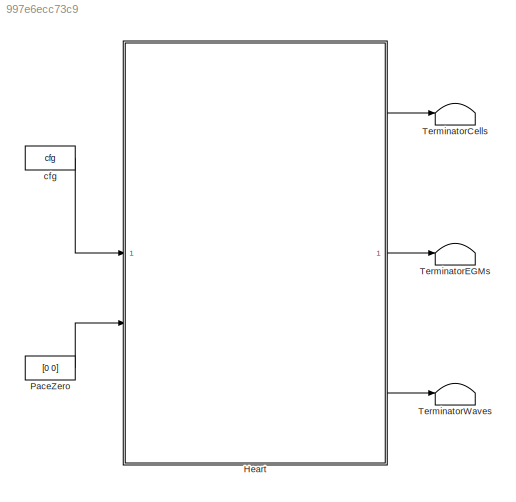
MODEL slx_997e6ecc73c9
KIND model
CONFIG AbsTol = auto
CONFIG EnableMultiTasking = off
CONFIG FixedStep = auto
CONFIG MaxStep = auto
CONFIG MinStep = auto
CONFIG RelTol = 1e-3
CONFIG SampleTimeConstraint = Unconstrained
CONFIG SolverName = VariableStepAuto
CONFIG StartTime = 0.0
CONFIG StopTime = 10.0
WORKSPACE source: mxarray member
WORKSPACE C_1 = 1
WORKSPACE C_10 = 23
WORKSPACE C_11 = 23
WORKSPACE C_12 = 23
WORKSPACE C_13 = 23
WORKSPACE C_14 = 23
WORKSPACE C_15 = 23
WORKSPACE C_16 = 23
WORKSPACE C_17 = 23
WORKSPACE C_18 = 23
WORKSPACE C_19 = 23
WORKSPACE C_2 = 1
WORKSPACE C_20 = 23
WORKSPACE C_21 = 23
WORKSPACE C_22 = 23
WORKSPACE C_23 = 2
WORKSPACE C_24 = 2
WORKSPACE C_25 = 2
WORKSPACE C_26 = 23
WORKSPACE C_27 = 23
WORKSPACE C_28 = 23
WORKSPACE C_29 = 23
WORKSPACE C_3 = 1
WORKSPACE C_30 = 23
WORKSPACE C_31 = 23
WORKSPACE C_32 = 50
WORKSPACE C_33 = 50
WORKSPACE C_34 = 50
WORKSPACE C_35 = 23
WORKSPACE C_36 = 23
WORKSPACE C_37 = 50
WORKSPACE C_38 = 50
WORKSPACE C_39 = 50
WORKSPACE C_4 = 1
WORKSPACE C_40 = 50
WORKSPACE C_41 = 50
WORKSPACE C_42 = 23
WORKSPACE C_43 = 23
WORKSPACE C_44 = 50
WORKSPACE C_45 = 50
WORKSPACE C_46 = 50
WORKSPACE C_47 = 23
WORKSPACE C_48 = 23
WORKSPACE C_49 = 23
WORKSPACE C_5 = 23
WORKSPACE C_50 = 23
WORKSPACE C_51 = 50
WORKSPACE C_52 = 50
WORKSPACE C_53 = 50
WORKSPACE C_54 = 50
WORKSPACE C_6 = 23
WORKSPACE C_7 = 23
WORKSPACE C_8 = 23
WORKSPACE C_9 = 23
WORKSPACE cfg: object (value not decoded)
WORKSPACE l_1 = 4.01400326634
WORKSPACE l_10 = 14.0362958077
WORKSPACE l_11 = 18.1950322891
WORKSPACE l_12 = 33.9599764429
WORKSPACE l_13 = 10
WORKSPACE l_14 = 8.0399004969
WORKSPACE l_15 = 12.0066648158
WORKSPACE l_16 = 7.69415362467
WORKSPACE l_17 = 5.21536192416
WORKSPACE l_18 = 5.65685424949
WORKSPACE l_19 = 13.8852439662
WORKSPACE l_2 = 3.2
WORKSPACE l_20 = 47.0387074652
WORKSPACE l_21 = 27.273430294
WORKSPACE l_22 = 13.8621787609
WORKSPACE l_23 = 18.6761880479
WORKSPACE l_24 = 12.8249756335
WORKSPACE l_25 = 15.879546593
WORKSPACE l_26 = 28.9689488936
WORKSPACE l_27 = 29.8073816361
WORKSPACE l_28 = 34.0352758179
WORKSPACE l_29 = 7.37563556583
WORKSPACE l_3 = 3.50907395191
WORKSPACE l_30 = 3.68781778292
WORKSPACE l_31 = 46.1042297409
WORKSPACE l_32 = 30.615028989
WORKSPACE l_33 = 7.51531769122
WORKSPACE l_34 = 7.47261667691
WORKSPACE l_35 = 3.73630833845
WORKSPACE l_36 = 36.7151195014
WORKSPACE l_37 = 16.1058995402
WORKSPACE l_38 = 48.7360236376
WORKSPACE l_39 = 48.8364617883
WORKSPACE l_4 = 4.54875807227
WORKSPACE l_40 = 41.4154560521
WORKSPACE l_41 = 37.7878287283
WORKSPACE l_42 = 44.689148571
WORKSPACE l_43 = 22.9120055866
WORKSPACE l_44 = 23.4401365184
WORKSPACE l_45 = 42.4264068712
WORKSPACE l_46 = 5
WORKSPACE l_47 = 8
WORKSPACE l_48 = 31.4273766007
WORKSPACE l_49 = 41.5788407727
WORKSPACE l_5 = 1.6986923075
WORKSPACE l_50 = 31.5569326773
WORKSPACE l_51 = 3
WORKSPACE l_52 = 3
WORKSPACE l_53 = 51.8478543433
WORKSPACE l_54 = 31.5569326773
WORKSPACE l_6 = 44.1540359298
WORKSPACE l_7 = 2.68208873828
WORKSPACE l_8 = 12.8
WORKSPACE l_9 = 4.53184289225
WORKSPACE xi_1 = 54.2
WORKSPACE xi_10 = 56.6
WORKSPACE xi_11 = 66.2
WORKSPACE xi_12 = 60.2
WORKSPACE xi_13 = 66.2
WORKSPACE xi_14 = 67
WORKSPACE xi_15 = 67.4
WORKSPACE xi_16 = 57.4
WORKSPACE xi_17 = 70.2
WORKSPACE xi_18 = 79.4
WORKSPACE xi_19 = 57.8666666667
WORKSPACE xi_2 = 54.2
WORKSPACE xi_20 = 98.2
WORKSPACE xi_21 = 125.4
WORKSPACE xi_22 = 60.6
WORKSPACE xi_23 = 68.2
WORKSPACE xi_24 = 81.8
WORKSPACE xi_25 = 94.6
WORKSPACE xi_26 = 105
WORKSPACE xi_27 = 121.8
WORKSPACE xi_28 = 153
WORKSPACE xi_29 = 105
WORKSPACE xi_3 = 54.2
WORKSPACE xi_30 = 127.8
WORKSPACE xi_31 = 157
WORKSPACE xi_32 = 157.8
WORKSPACE xi_33 = 164.2
WORKSPACE xi_34 = 160.2
WORKSPACE xi_35 = 157.8
WORKSPACE xi_36 = 112.2
WORKSPACE xi_37 = 160.2
WORKSPACE xi_38 = 114.6
WORKSPACE xi_39 = 167.8
WORKSPACE xi_4 = 54.2
WORKSPACE xi_40 = 131
WORKSPACE xi_41 = 101.8
WORKSPACE xi_42 = 164.2
WORKSPACE xi_43 = 159.4
WORKSPACE xi_44 = 127.8
WORKSPACE xi_45 = 83
WORKSPACE xi_46 = 114.6
WORKSPACE xi_47 = 112.2
WORKSPACE xi_48 = 75
WORKSPACE xi_49 = 159.4
WORKSPACE xi_5 = 57.8666666667
WORKSPACE xi_50 = 143.4
WORKSPACE xi_51 = 167.8
WORKSPACE xi_52 = 162.4
WORKSPACE xi_53 = 160.2
WORKSPACE xi_54 = 112.2
WORKSPACE xi_6 = 57.4
WORKSPACE xi_7 = 56.6
WORKSPACE xi_8 = 52.36
WORKSPACE xi_9 = 45
WORKSPACE xj_1 = 57.8666666667
WORKSPACE xj_10 = 66.2
WORKSPACE xj_11 = 60.2
WORKSPACE xj_12 = 60.6
WORKSPACE xj_13 = 67
WORKSPACE xj_14 = 67.4
WORKSPACE xj_15 = 68.2
WORKSPACE xj_16 = 70.2
WORKSPACE xj_17 = 79.4
WORKSPACE xj_18 = 118.6
WORKSPACE xj_19 = 98.2
WORKSPACE xj_2 = 57.4
WORKSPACE xj_20 = 125.4
WORKSPACE xj_21 = 135.4
WORKSPACE xj_22 = 68.2
WORKSPACE xj_23 = 81.8
WORKSPACE xj_24 = 94.6
WORKSPACE xj_25 = 105
WORKSPACE xj_26 = 121.8
WORKSPACE xj_27 = 153
WORKSPACE xj_28 = 157.8
WORKSPACE xj_29 = 127.8
WORKSPACE xj_3 = 56.6
WORKSPACE xj_30 = 157
WORKSPACE xj_31 = 164.2
WORKSPACE xj_32 = 160.2
WORKSPACE xj_33 = 167.8
WORKSPACE xj_34 = 167.8
WORKSPACE xj_35 = 112.2
WORKSPACE xj_36 = 75
WORKSPACE xj_37 = 114.6
WORKSPACE xj_38 = 83
WORKSPACE xj_39 = 131
WORKSPACE xj_4 = 52.36
WORKSPACE xj_40 = 101.8
WORKSPACE xj_41 = 125
WORKSPACE xj_42 = 159.4
WORKSPACE xj_43 = 143.4
WORKSPACE xj_44 = 131
WORKSPACE xj_45 = 101.8
WORKSPACE xj_46 = 131
WORKSPACE xj_47 = 112.2
WORKSPACE xj_48 = 67
WORKSPACE xj_49 = 162.4
WORKSPACE xj_5 = 57.4
WORKSPACE xj_50 = 146.4
WORKSPACE xj_51 = 162.4
WORKSPACE xj_52 = 146.4
WORKSPACE xj_53 = 112.2
WORKSPACE xj_54 = 67
WORKSPACE xj_6 = 56.6
WORKSPACE xj_7 = 52.36
WORKSPACE xj_8 = 45
WORKSPACE xj_9 = 53.8
WORKSPACE yi_1 = 118.2
WORKSPACE yi_10 = 115.64
WORKSPACE yi_11 = 105.4
WORKSPACE yi_12 = 97.4
WORKSPACE yi_13 = 105.4
WORKSPACE yi_14 = 97.4
WORKSPACE yi_15 = 92.2
WORKSPACE yi_16 = 118.2
WORKSPACE yi_17 = 118.2
WORKSPACE yi_18 = 107.8
WORKSPACE yi_19 = 119.833333333
WORKSPACE yi_2 = 118.2
WORKSPACE yi_20 = 137.8
WORKSPACE yi_21 = 139.8
WORKSPACE yi_22 = 85.4
WORKSPACE yi_23 = 86.6
WORKSPACE yi_24 = 99.4
WORKSPACE yi_25 = 100.2
WORKSPACE yi_26 = 88.2
WORKSPACE yi_27 = 64.6
WORKSPACE yi_28 = 51
WORKSPACE yi_29 = 88.2
WORKSPACE yi_3 = 118.2
WORKSPACE yi_30 = 69
WORKSPACE yi_31 = 59.8
WORKSPACE yi_32 = 45.4
WORKSPACE yi_33 = 57.8
WORKSPACE yi_34 = 42.6
WORKSPACE yi_35 = 45.4
WORKSPACE yi_36 = 38.6
WORKSPACE yi_37 = 42.6
WORKSPACE yi_38 = 59.8
WORKSPACE yi_39 = 56.8
WORKSPACE yi_4 = 118.2
WORKSPACE yi_40 = 75.8
WORKSPACE yi_41 = 105.4
WORKSPACE yi_42 = 57.8
WORKSPACE yi_43 = 94.2
WORKSPACE yi_44 = 69
WORKSPACE yi_45 = 91.4
WORKSPACE yi_46 = 59.8
WORKSPACE yi_47 = 38.6
WORKSPACE yi_48 = 59
WORKSPACE yi_49 = 94.2
WORKSPACE yi_5 = 119.833333333
WORKSPACE yi_50 = 121.4
WORKSPACE yi_51 = 56.8
WORKSPACE yi_52 = 94.2
WORKSPACE yi_53 = 42.6
WORKSPACE yi_54 = 33.6
WORKSPACE yi_6 = 118.2
WORKSPACE yi_7 = 115.64
WORKSPACE yi_8 = 114.04
WORKSPACE yi_9 = 97.4
WORKSPACE yj_1 = 119.833333333
WORKSPACE yj_10 = 105.4
WORKSPACE yj_11 = 97.4
WORKSPACE yj_12 = 85.4
WORKSPACE yj_13 = 97.4
WORKSPACE yj_14 = 92.2
WORKSPACE yj_15 = 86.6
WORKSPACE yj_16 = 118.2
WORKSPACE yj_17 = 107.8
WORKSPACE yj_18 = 133.8
WORKSPACE yj_19 = 137.8
WORKSPACE yj_2 = 118.2
WORKSPACE yj_20 = 139.8
WORKSPACE yj_21 = 130.2
WORKSPACE yj_22 = 86.6
WORKSPACE yj_23 = 99.4
WORKSPACE yj_24 = 100.2
WORKSPACE yj_25 = 88.2
WORKSPACE yj_26 = 64.6
WORKSPACE yj_27 = 51
WORKSPACE yj_28 = 45.4
WORKSPACE yj_29 = 69
WORKSPACE yj_3 = 115.64
WORKSPACE yj_30 = 59.8
WORKSPACE yj_31 = 57.8
WORKSPACE yj_32 = 42.6
WORKSPACE yj_33 = 56.8
WORKSPACE yj_34 = 56.8
WORKSPACE yj_35 = 38.6
WORKSPACE ... (+133 more variables)
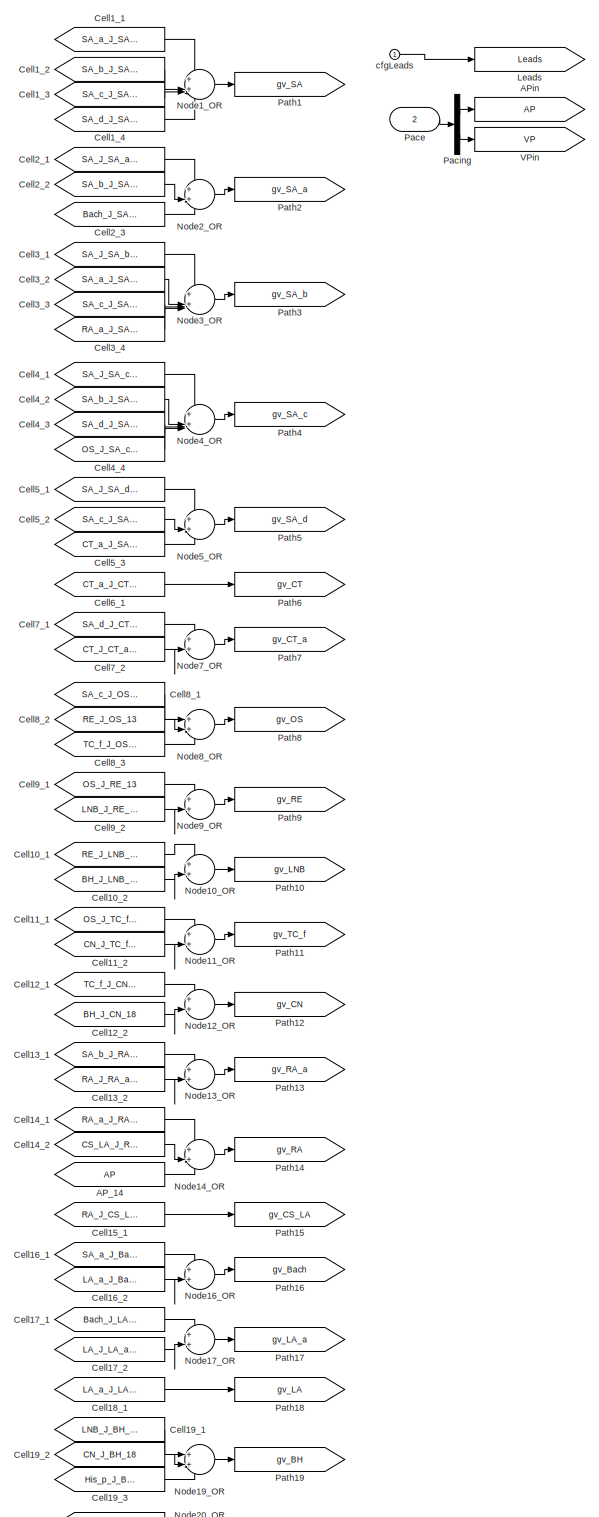
[diagram: Heart - part 1/15, top right region]
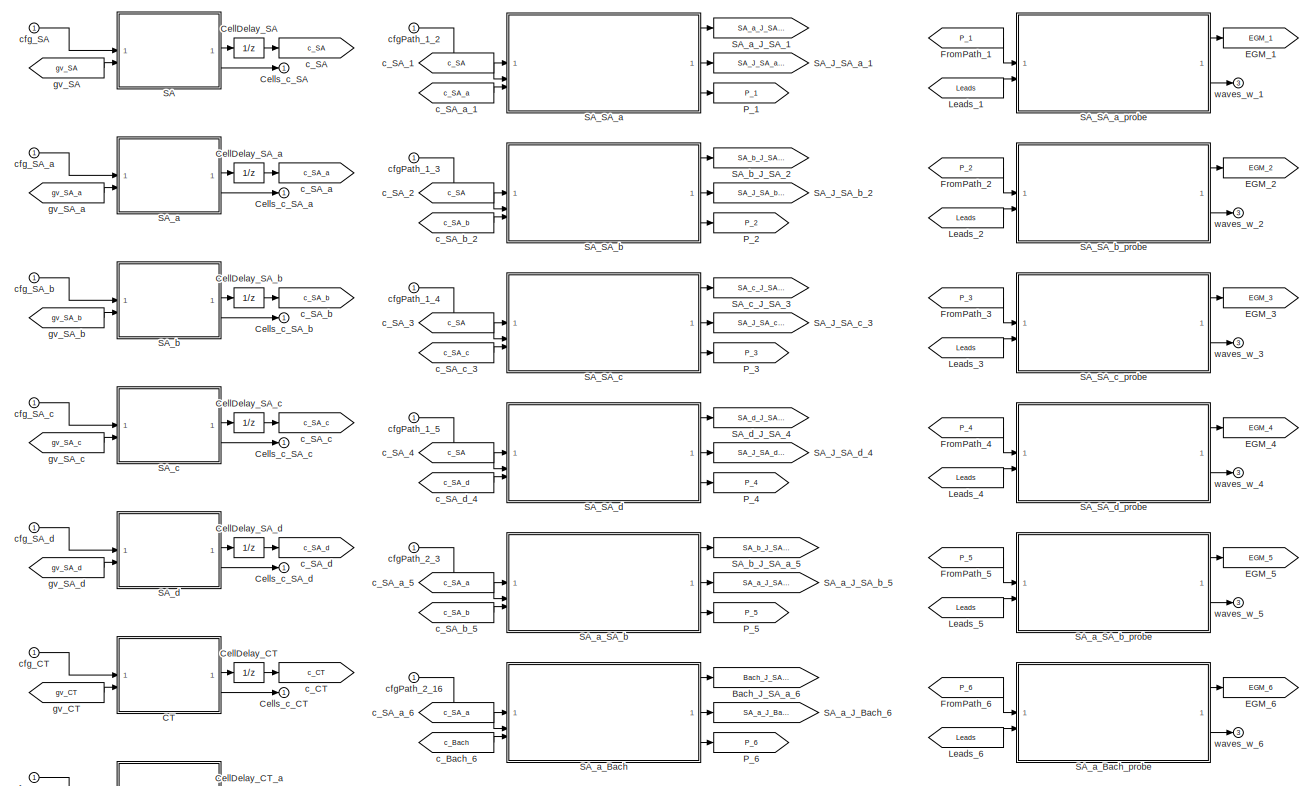
[diagram: Heart - part 2/15, top left region]
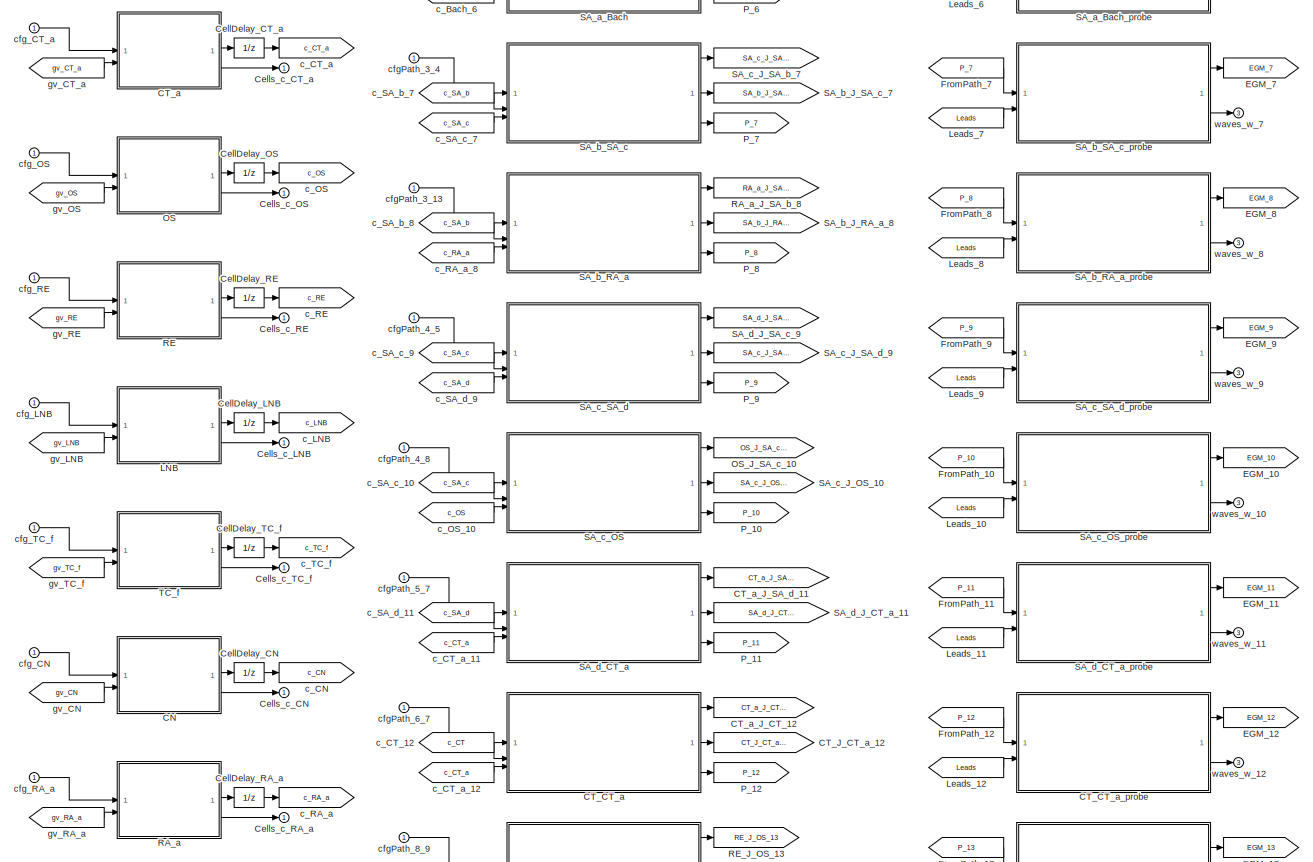
[diagram: Heart - part 3/15, top left region]
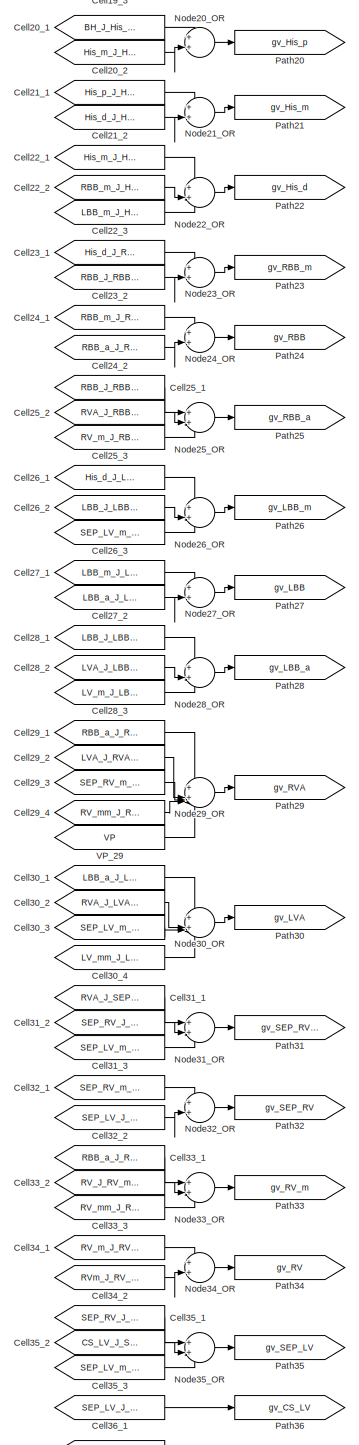
[diagram: Heart - part 4/15, top right region]
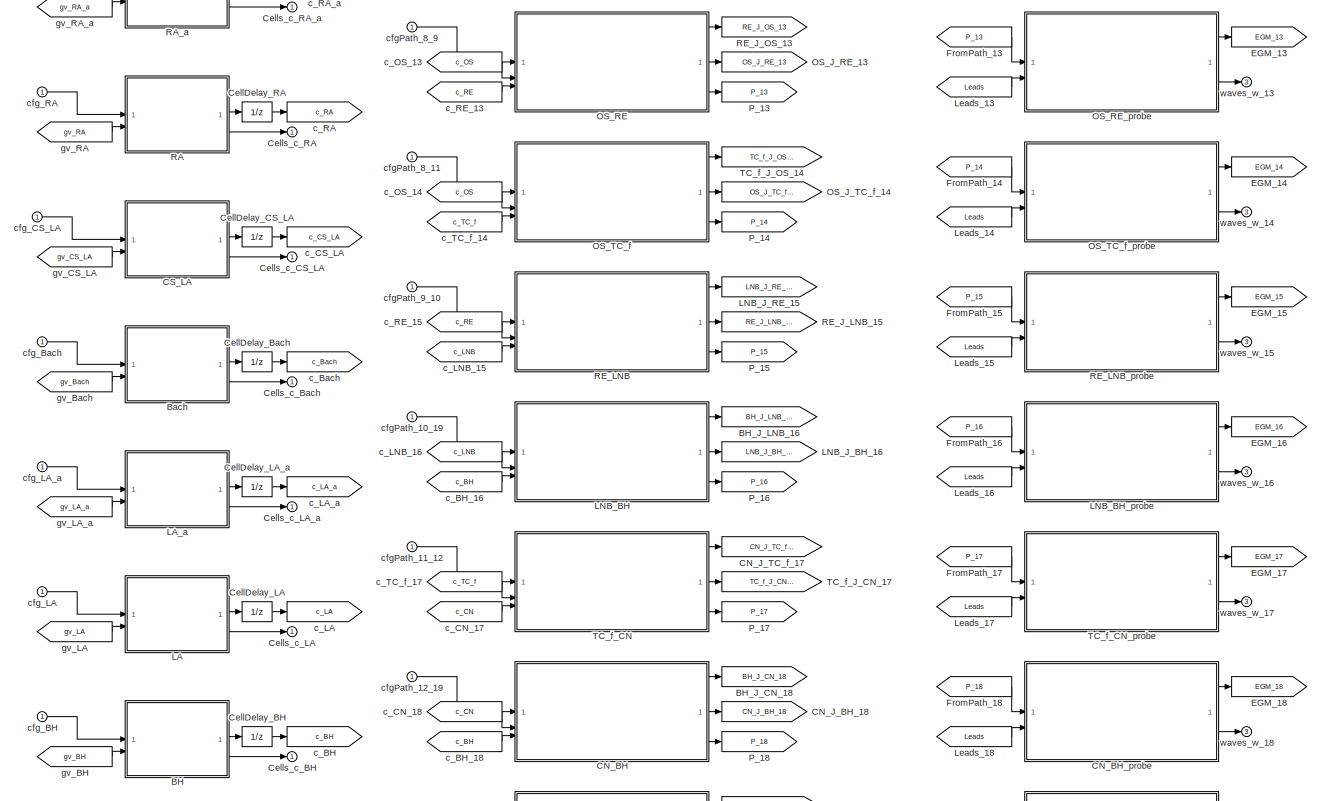
[diagram: Heart - part 5/15, top left region]
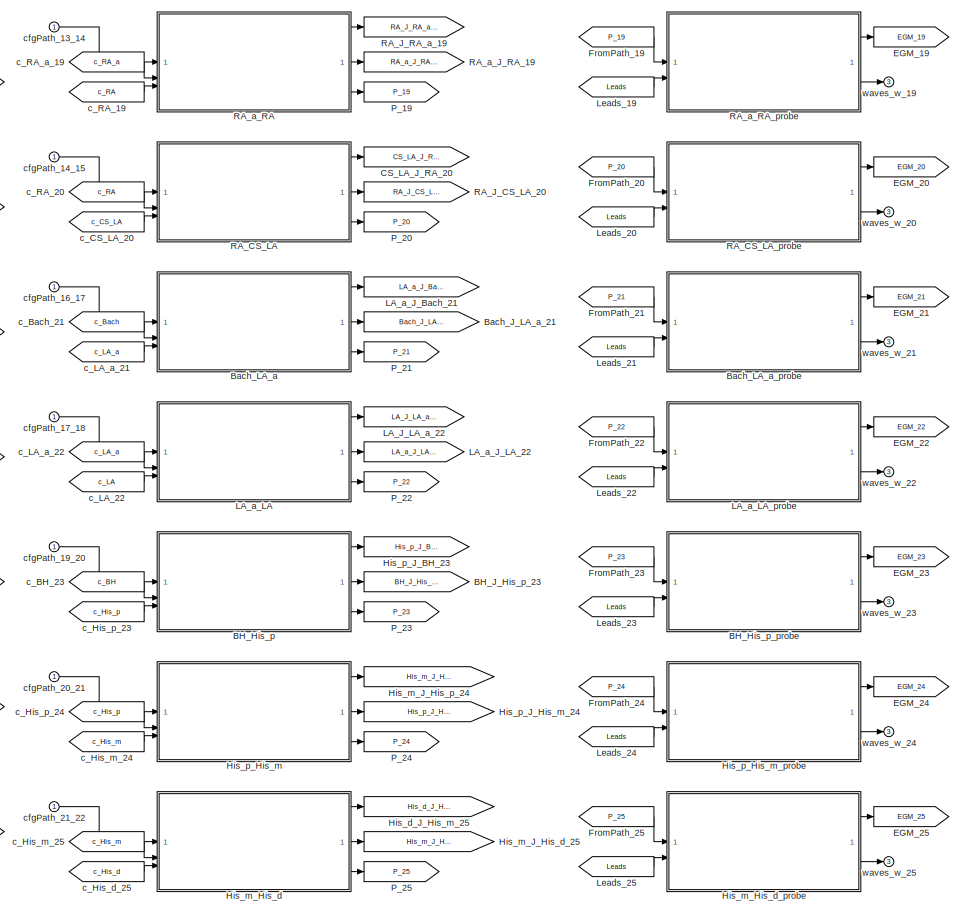
[diagram: Heart - part 6/15, central region]
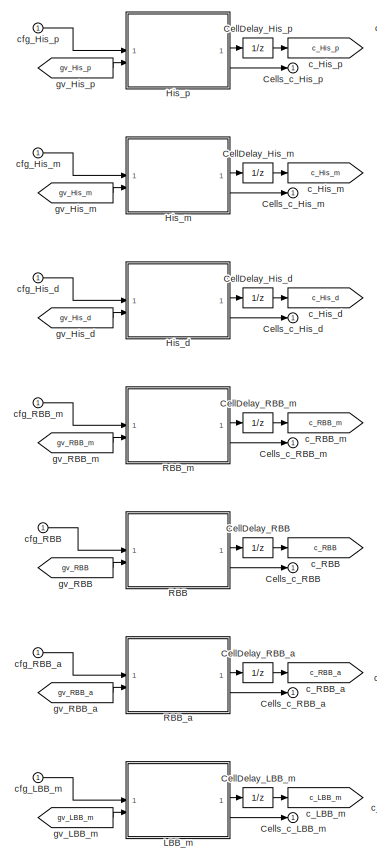
[diagram: Heart - part 7/15, middle left region]
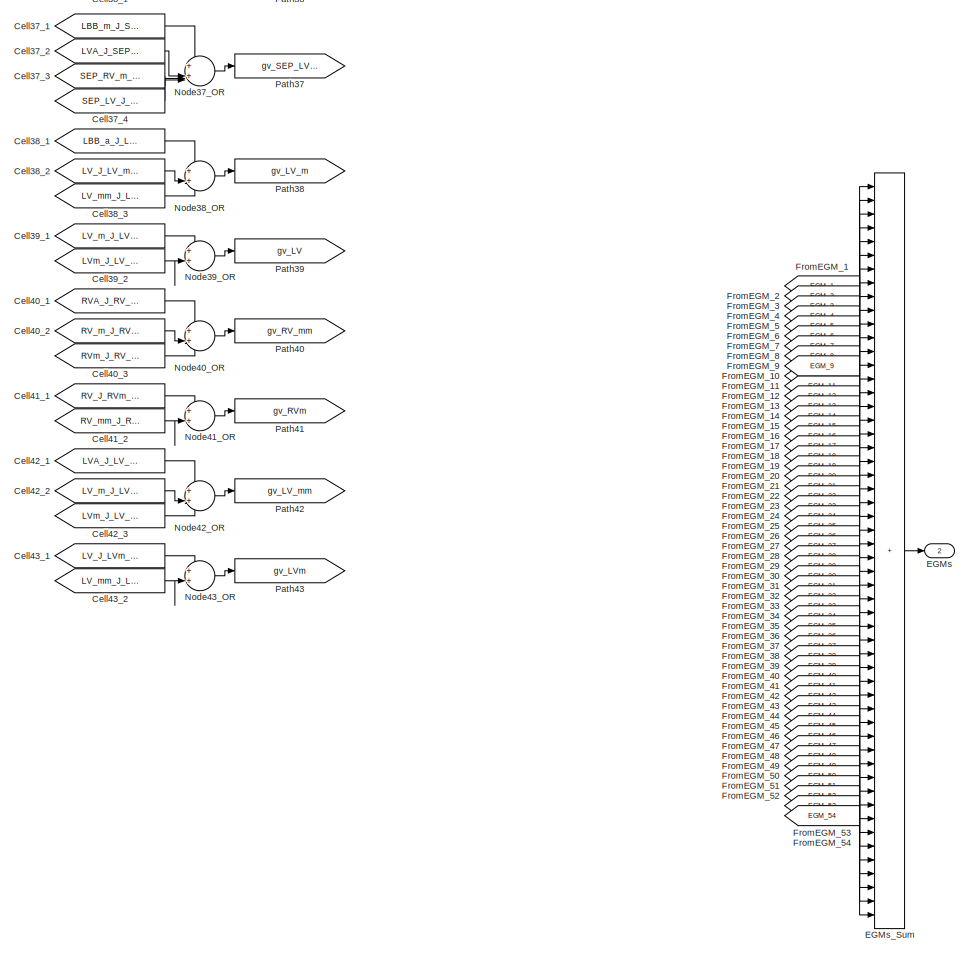
[diagram: Heart - part 8/15, middle right region]
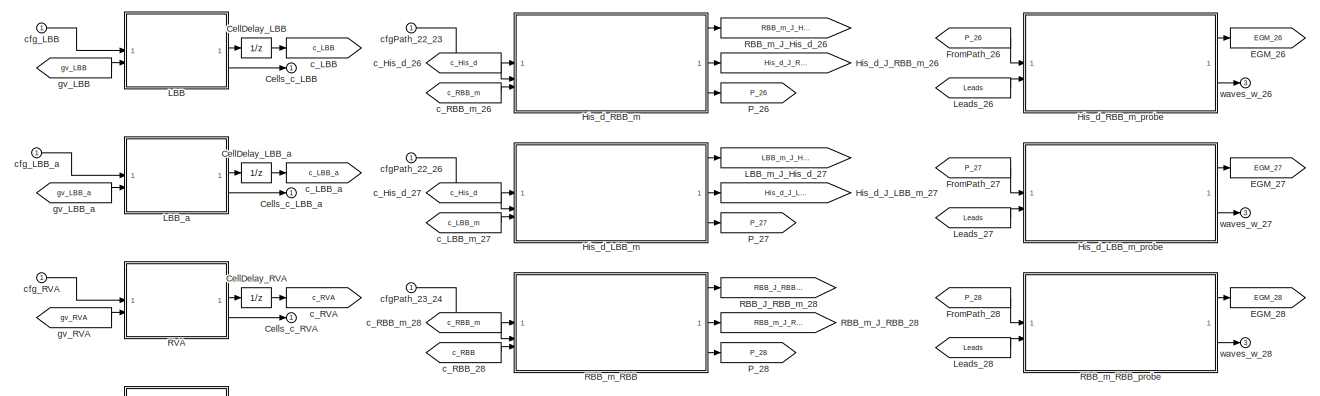
[diagram: Heart - part 9/15, middle left region]
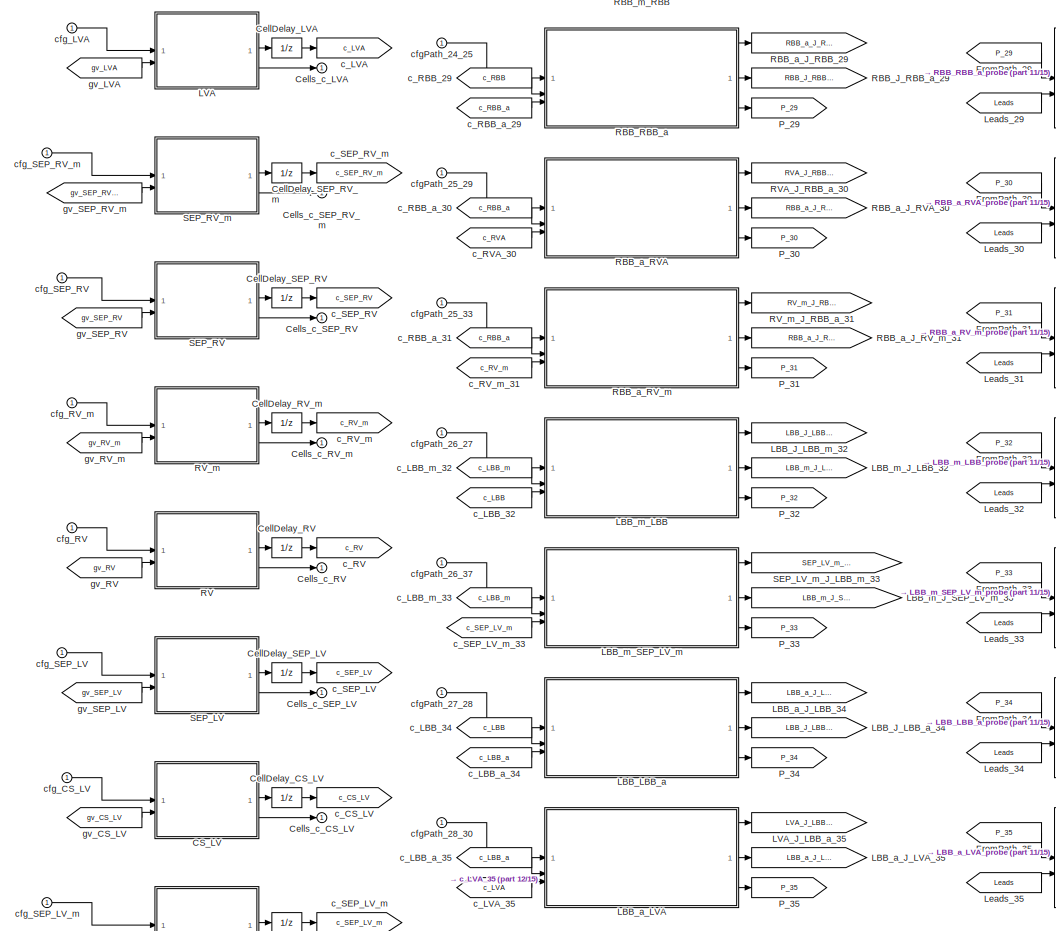
[diagram: Heart - part 10/15, middle left region]
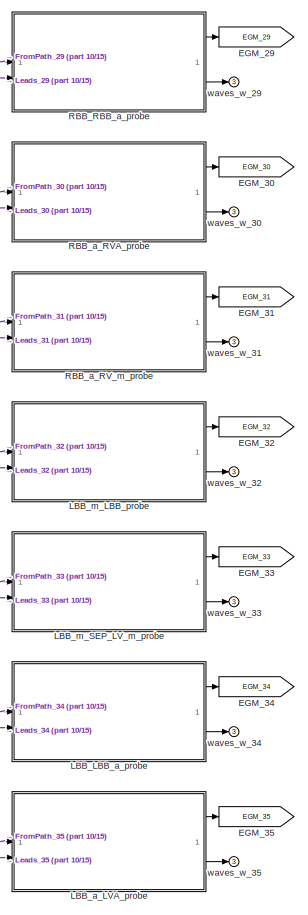
[diagram: Heart - part 11/15, central region]
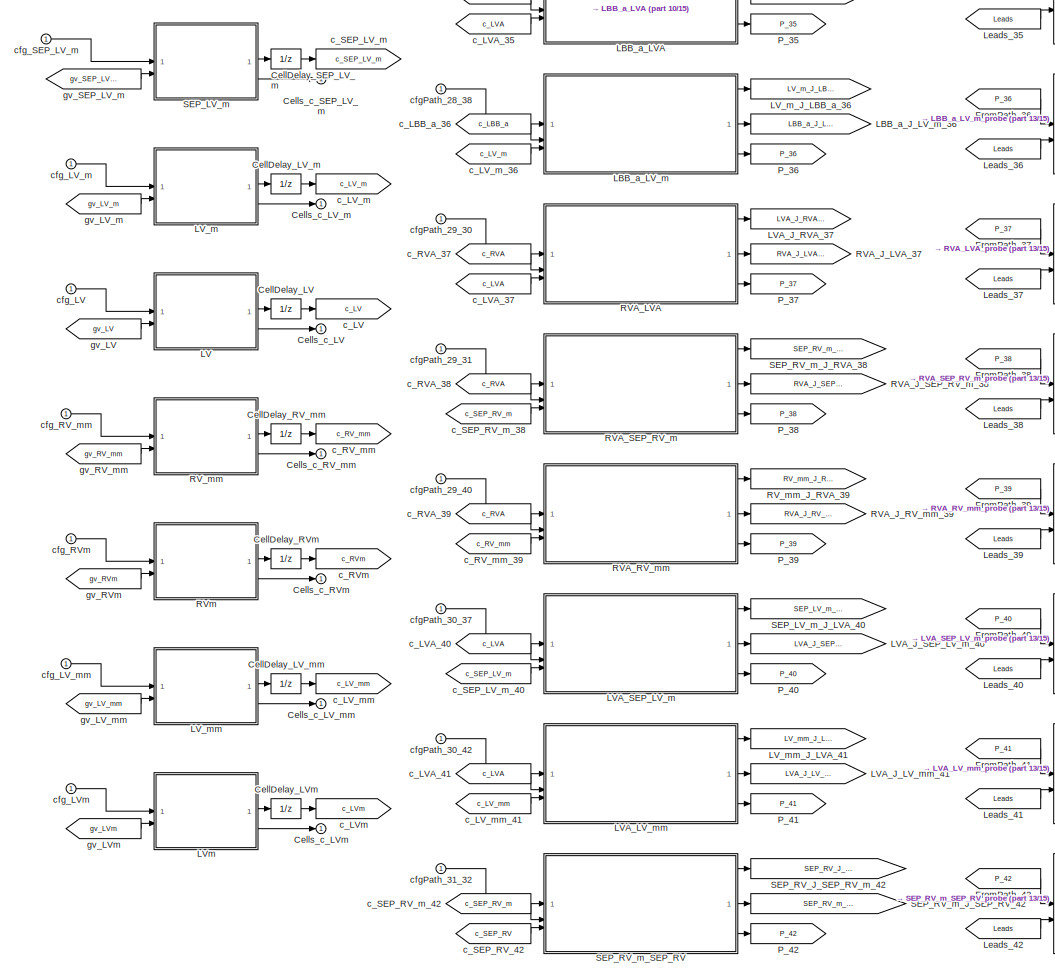
[diagram: Heart - part 12/15, bottom left region]
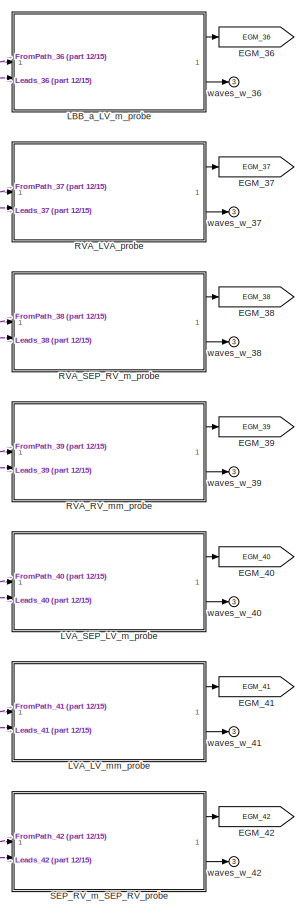
[diagram: Heart - part 13/15, bottom center region]
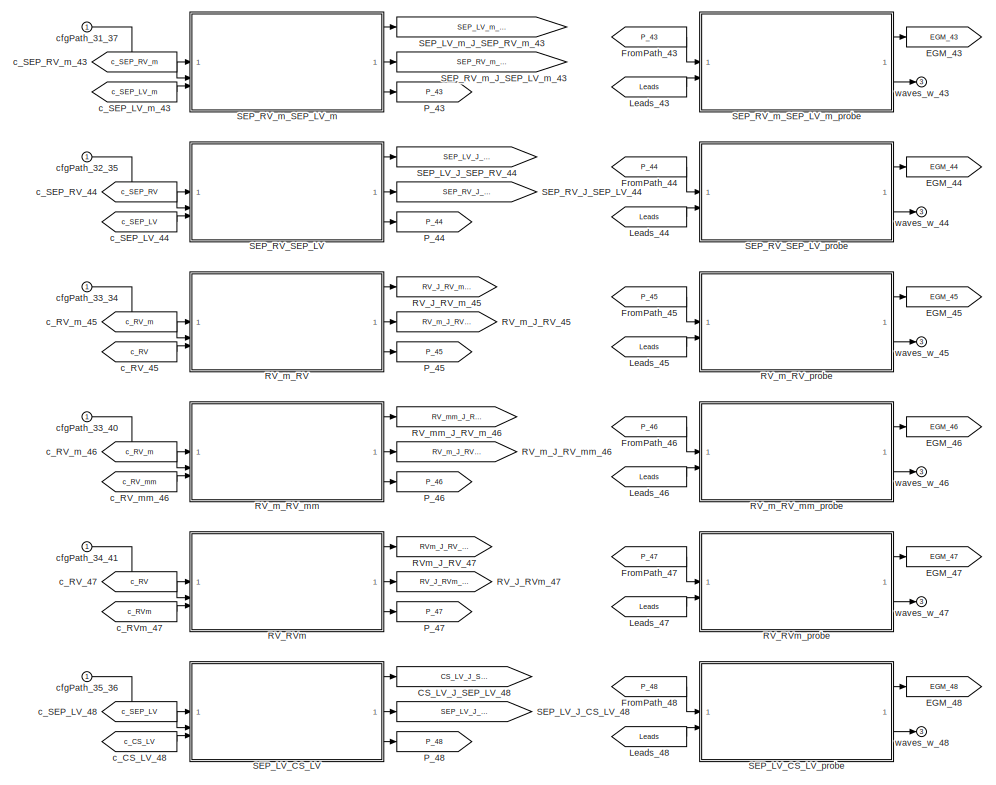
[diagram: Heart - part 14/15, bottom center region]
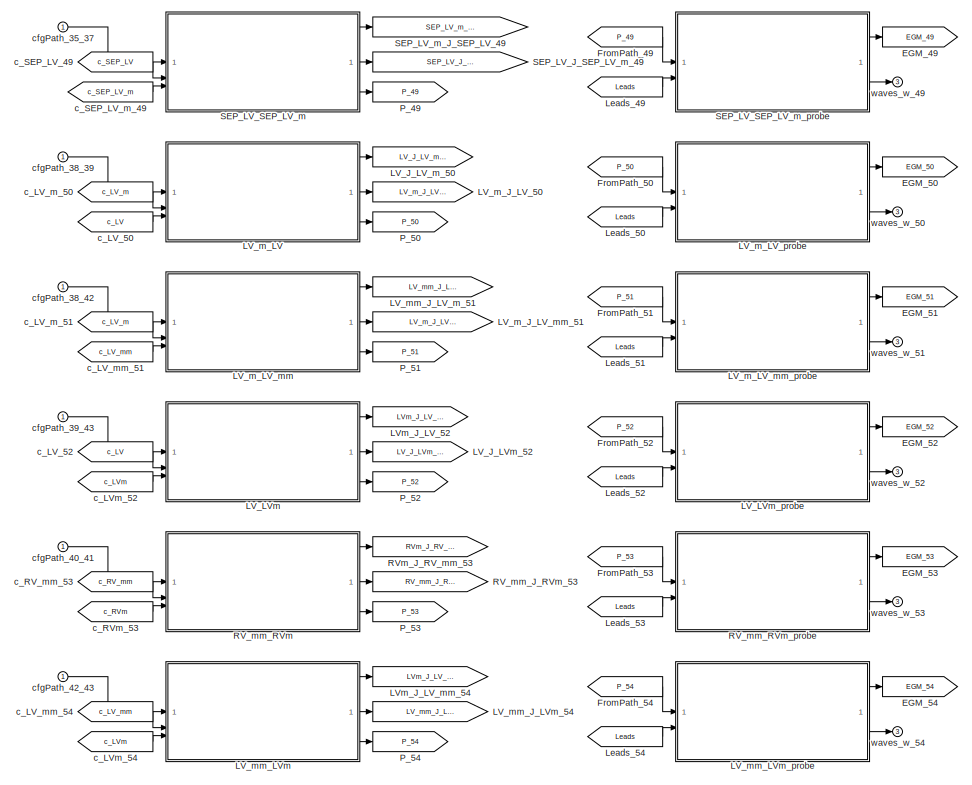
[diagram: Heart - part 15/15, bottom center region]
BLOCK [SubSystem] Heart
BLOCK [From] Heart/AP_14
  GotoTag = AP
BLOCK [Goto] Heart/APin
  GotoTag = AP
BLOCK [ModelReference] Heart/BH
  ModelNameDialog = Node_NM
  ModelReferenceVersion = 1.78
BLOCK [ModelReference] Heart/BH_His_p
  ModelNameDialog = Path_model
  ModelReferenceVersion = 1.87
  ParameterArgumentNames = l
  ParameterArgumentValues = l_23
  UserDataPersistent = on
  UsingDefaultArgumentValue = 0
BLOCK [ModelReference] Heart/BH_His_p_probe
  ModelNameDialog = Electrode
  ModelReferenceVersion = 1.81
  UserDataPersistent = on
  UsingDefaultArgumentValue = 0,0,0,0,0,0,0
BLOCK [Goto] Heart/BH_J_CN_18
  GotoTag = BH_J_CN_18
BLOCK [Goto] Heart/BH_J_His_p_23
  GotoTag = BH_J_His_p_23
BLOCK [Goto] Heart/BH_J_LNB_16
  GotoTag = BH_J_LNB_16
BLOCK [ModelReference] Heart/Bach
  ModelNameDialog = Node_M
  ModelReferenceVersion = 1.88
BLOCK [Goto] Heart/Bach_J_LA_a_21
  GotoTag = Bach_J_LA_a_21
BLOCK [Goto] Heart/Bach_J_SA_a_6
  GotoTag = Bach_J_SA_a_6
BLOCK [ModelReference] Heart/Bach_LA_a
  ModelNameDialog = Path_model
  ModelReferenceVersion = 1.87
  ParameterArgumentNames = l
  ParameterArgumentValues = l_21
  UserDataPersistent = on
  UsingDefaultArgumentValue = 0
BLOCK [ModelReference] Heart/Bach_LA_a_probe
  ModelNameDialog = Electrode
  ModelReferenceVersion = 1.81
  UserDataPersistent = on
  UsingDefaultArgumentValue = 0,0,0,0,0,0,0
BLOCK [ModelReference] Heart/CN
  ModelNameDialog = Node_N
  ModelReferenceVersion = 1.106
BLOCK [ModelReference] Heart/CN_BH
  ModelNameDialog = Path_model
  ModelReferenceVersion = 1.87
  ParameterArgumentNames = l
  ParameterArgumentValues = l_18
  UserDataPersistent = on
  UsingDefaultArgumentValue = 0
BLOCK [ModelReference] Heart/CN_BH_probe
  ModelNameDialog = Electrode
  ModelReferenceVersion = 1.81
  UserDataPersistent = on
  UsingDefaultArgumentValue = 0,0,0,0,0,0,0
BLOCK [Goto] Heart/CN_J_BH_18
  GotoTag = CN_J_BH_18
BLOCK [Goto] Heart/CN_J_TC_f_17
  GotoTag = CN_J_TC_f_17
BLOCK [ModelReference] Heart/CS_LA
  ModelNameDialog = Node_NM
  ModelReferenceVersion = 1.78
BLOCK [Goto] Heart/CS_LA_J_RA_20
  GotoTag = CS_LA_J_RA_20
BLOCK [ModelReference] Heart/CS_LV
  ModelNameDialog = Node_M
  ModelReferenceVersion = 1.88
BLOCK [Goto] Heart/CS_LV_J_SEP_LV_48
  GotoTag = CS_LV_J_SEP_LV_48
BLOCK [ModelReference] Heart/CT
  ModelNameDialog = Node_M
  ModelReferenceVersion = 1.88
BLOCK [ModelReference] Heart/CT_CT_a
  ModelNameDialog = Path_model
  ModelReferenceVersion = 1.87
  ParameterArgumentNames = l
  ParameterArgumentValues = l_12
  UserDataPersistent = on
  UsingDefaultArgumentValue = 0
BLOCK [ModelReference] Heart/CT_CT_a_probe
  ModelNameDialog = Electrode
  ModelReferenceVersion = 1.81
  UserDataPersistent = on
  UsingDefaultArgumentValue = 0,0,0,0,0,0,0
BLOCK [Goto] Heart/CT_J_CT_a_12
  GotoTag = CT_J_CT_a_12
BLOCK [ModelReference] Heart/CT_a
  ModelNameDialog = Node_NM
  ModelReferenceVersion = 1.78
BLOCK [Goto] Heart/CT_a_J_CT_12
  GotoTag = CT_a_J_CT_12
BLOCK [Goto] Heart/CT_a_J_SA_d_11
  GotoTag = CT_a_J_SA_d_11
BLOCK [From] Heart/Cell10_1
  GotoTag = RE_J_LNB_15
BLOCK [From] Heart/Cell10_2
  GotoTag = BH_J_LNB_16
BLOCK [From] Heart/Cell11_1
  GotoTag = OS_J_TC_f_14
BLOCK [From] Heart/Cell11_2
  GotoTag = CN_J_TC_f_17
BLOCK [From] Heart/Cell12_1
  GotoTag = TC_f_J_CN_17
BLOCK [From] Heart/Cell12_2
  GotoTag = BH_J_CN_18
BLOCK [From] Heart/Cell13_1
  GotoTag = SA_b_J_RA_a_8
BLOCK [From] Heart/Cell13_2
  GotoTag = RA_J_RA_a_19
BLOCK [From] Heart/Cell14_1
  GotoTag = RA_a_J_RA_19
BLOCK [From] Heart/Cell14_2
  GotoTag = CS_LA_J_RA_20
BLOCK [From] Heart/Cell15_1
  GotoTag = RA_J_CS_LA_20
BLOCK [From] Heart/Cell16_1
  GotoTag = SA_a_J_Bach_6
BLOCK [From] Heart/Cell16_2
  GotoTag = LA_a_J_Bach_21
BLOCK [From] Heart/Cell17_1
  GotoTag = Bach_J_LA_a_21
BLOCK [From] Heart/Cell17_2
  GotoTag = LA_J_LA_a_22
BLOCK [From] Heart/Cell18_1
  GotoTag = LA_a_J_LA_22
BLOCK [From] Heart/Cell19_1
  GotoTag = LNB_J_BH_16
BLOCK [From] Heart/Cell19_2
  GotoTag = CN_J_BH_18
BLOCK [From] Heart/Cell19_3
  GotoTag = His_p_J_BH_23
BLOCK [From] Heart/Cell1_1
  GotoTag = SA_a_J_SA_1
BLOCK [From] Heart/Cell1_2
  GotoTag = SA_b_J_SA_2
BLOCK [From] Heart/Cell1_3
  GotoTag = SA_c_J_SA_3
BLOCK [From] Heart/Cell1_4
  GotoTag = SA_d_J_SA_4
BLOCK [From] Heart/Cell20_1
  GotoTag = BH_J_His_p_23
BLOCK [From] Heart/Cell20_2
  GotoTag = His_m_J_His_p_24
BLOCK [From] Heart/Cell21_1
  GotoTag = His_p_J_His_m_24
BLOCK [From] Heart/Cell21_2
  GotoTag = His_d_J_His_m_25
BLOCK [From] Heart/Cell22_1
  GotoTag = His_m_J_His_d_25
BLOCK [From] Heart/Cell22_2
  GotoTag = RBB_m_J_His_d_26
BLOCK [From] Heart/Cell22_3
  GotoTag = LBB_m_J_His_d_27
BLOCK [From] Heart/Cell23_1
  GotoTag = His_d_J_RBB_m_26
BLOCK [From] Heart/Cell23_2
  GotoTag = RBB_J_RBB_m_28
BLOCK [From] Heart/Cell24_1
  GotoTag = RBB_m_J_RBB_28
BLOCK [From] Heart/Cell24_2
  GotoTag = RBB_a_J_RBB_29
BLOCK [From] Heart/Cell25_1
  GotoTag = RBB_J_RBB_a_29
BLOCK [From] Heart/Cell25_2
  GotoTag = RVA_J_RBB_a_30
BLOCK [From] Heart/Cell25_3
  GotoTag = RV_m_J_RBB_a_31
BLOCK [From] Heart/Cell26_1
  GotoTag = His_d_J_LBB_m_27
BLOCK [From] Heart/Cell26_2
  GotoTag = LBB_J_LBB_m_32
BLOCK [From] Heart/Cell26_3
  GotoTag = SEP_LV_m_J_LBB_m_33
BLOCK [From] Heart/Cell27_1
  GotoTag = LBB_m_J_LBB_32
BLOCK [From] Heart/Cell27_2
  GotoTag = LBB_a_J_LBB_34
BLOCK [From] Heart/Cell28_1
  GotoTag = LBB_J_LBB_a_34
BLOCK [From] Heart/Cell28_2
  GotoTag = LVA_J_LBB_a_35
BLOCK [From] Heart/Cell28_3
  GotoTag = LV_m_J_LBB_a_36
BLOCK [From] Heart/Cell29_1
  GotoTag = RBB_a_J_RVA_30
BLOCK [From] Heart/Cell29_2
  GotoTag = LVA_J_RVA_37
BLOCK [From] Heart/Cell29_3
  GotoTag = SEP_RV_m_J_RVA_38
BLOCK [From] Heart/Cell29_4
  GotoTag = RV_mm_J_RVA_39
BLOCK [From] Heart/Cell2_1
  GotoTag = SA_J_SA_a_1
BLOCK [From] Heart/Cell2_2
  GotoTag = SA_b_J_SA_a_5
BLOCK [From] Heart/Cell2_3
  GotoTag = Bach_J_SA_a_6
BLOCK [From] Heart/Cell30_1
  GotoTag = LBB_a_J_LVA_35
BLOCK [From] Heart/Cell30_2
  GotoTag = RVA_J_LVA_37
BLOCK [From] Heart/Cell30_3
  GotoTag = SEP_LV_m_J_LVA_40
BLOCK [From] Heart/Cell30_4
  GotoTag = LV_mm_J_LVA_41
BLOCK [From] Heart/Cell31_1
  GotoTag = RVA_J_SEP_RV_m_38
BLOCK [From] Heart/Cell31_2
  GotoTag = SEP_RV_J_SEP_RV_m_42
BLOCK [From] Heart/Cell31_3
  GotoTag = SEP_LV_m_J_SEP_RV_m_43
BLOCK [From] Heart/Cell32_1
  GotoTag = SEP_RV_m_J_SEP_RV_42
BLOCK [From] Heart/Cell32_2
  GotoTag = SEP_LV_J_SEP_RV_44
BLOCK [From] Heart/Cell33_1
  GotoTag = RBB_a_J_RV_m_31
BLOCK [From] Heart/Cell33_2
  GotoTag = RV_J_RV_m_45
BLOCK [From] Heart/Cell33_3
  GotoTag = RV_mm_J_RV_m_46
BLOCK [From] Heart/Cell34_1
  GotoTag = RV_m_J_RV_45
BLOCK [From] Heart/Cell34_2
  GotoTag = RVm_J_RV_47
BLOCK [From] Heart/Cell35_1
  GotoTag = SEP_RV_J_SEP_LV_44
BLOCK [From] Heart/Cell35_2
  GotoTag = CS_LV_J_SEP_LV_48
BLOCK [From] Heart/Cell35_3
  GotoTag = SEP_LV_m_J_SEP_LV_49
BLOCK [From] Heart/Cell36_1
  GotoTag = SEP_LV_J_CS_LV_48
BLOCK [From] Heart/Cell37_1
  GotoTag = LBB_m_J_SEP_LV_m_33
BLOCK [From] Heart/Cell37_2
  GotoTag = LVA_J_SEP_LV_m_40
BLOCK [From] Heart/Cell37_3
  GotoTag = SEP_RV_m_J_SEP_LV_m_43
BLOCK [From] Heart/Cell37_4
  GotoTag = SEP_LV_J_SEP_LV_m_49
BLOCK [From] Heart/Cell38_1
  GotoTag = LBB_a_J_LV_m_36
BLOCK [From] Heart/Cell38_2
  GotoTag = LV_J_LV_m_50
BLOCK [From] Heart/Cell38_3
  GotoTag = LV_mm_J_LV_m_51
BLOCK [From] Heart/Cell39_1
  GotoTag = LV_m_J_LV_50
BLOCK [From] Heart/Cell39_2
  GotoTag = LVm_J_LV_52
BLOCK [From] Heart/Cell3_1
  GotoTag = SA_J_SA_b_2
BLOCK [From] Heart/Cell3_2
  GotoTag = SA_a_J_SA_b_5
BLOCK [From] Heart/Cell3_3
  GotoTag = SA_c_J_SA_b_7
BLOCK [From] Heart/Cell3_4
  GotoTag = RA_a_J_SA_b_8
BLOCK [From] Heart/Cell40_1
  GotoTag = RVA_J_RV_mm_39
BLOCK [From] Heart/Cell40_2
  GotoTag = RV_m_J_RV_mm_46
BLOCK [From] Heart/Cell40_3
  GotoTag = RVm_J_RV_mm_53
BLOCK [From] Heart/Cell41_1
  GotoTag = RV_J_RVm_47
BLOCK [From] Heart/Cell41_2
  GotoTag = RV_mm_J_RVm_53
BLOCK [From] Heart/Cell42_1
  GotoTag = LVA_J_LV_mm_41
BLOCK [From] Heart/Cell42_2
  GotoTag = LV_m_J_LV_mm_51
BLOCK [From] Heart/Cell42_3
  GotoTag = LVm_J_LV_mm_54
BLOCK [From] Heart/Cell43_1
  GotoTag = LV_J_LVm_52
BLOCK [From] Heart/Cell43_2
  GotoTag = LV_mm_J_LVm_54
BLOCK [From] Heart/Cell4_1
  GotoTag = SA_J_SA_c_3
BLOCK [From] Heart/Cell4_2
  GotoTag = SA_b_J_SA_c_7
BLOCK [From] Heart/Cell4_3
  GotoTag = SA_d_J_SA_c_9
BLOCK [From] Heart/Cell4_4
  GotoTag = OS_J_SA_c_10
BLOCK [From] Heart/Cell5_1
  GotoTag = SA_J_SA_d_4
BLOCK [From] Heart/Cell5_2
  GotoTag = SA_c_J_SA_d_9
BLOCK [From] Heart/Cell5_3
  GotoTag = CT_a_J_SA_d_11
BLOCK [From] Heart/Cell6_1
  GotoTag = CT_a_J_CT_12
BLOCK [From] Heart/Cell7_1
  GotoTag = SA_d_J_CT_a_11
BLOCK [From] Heart/Cell7_2
  GotoTag = CT_J_CT_a_12
BLOCK [From] Heart/Cell8_1
  GotoTag = SA_c_J_OS_10
BLOCK [From] Heart/Cell8_2
  GotoTag = RE_J_OS_13
BLOCK [From] Heart/Cell8_3
  GotoTag = TC_f_J_OS_14
BLOCK [From] Heart/Cell9_1
  GotoTag = OS_J_RE_13
BLOCK [From] Heart/Cell9_2
  GotoTag = LNB_J_RE_15
BLOCK [UnitDelay] Heart/CellDelay_BH
  HasFrameUpgradeWarning = on
  SampleTime = -1
BLOCK [UnitDelay] Heart/CellDelay_Bach
  HasFrameUpgradeWarning = on
  SampleTime = -1
BLOCK [UnitDelay] Heart/CellDelay_CN
  HasFrameUpgradeWarning = on
  SampleTime = -1
BLOCK [UnitDelay] Heart/CellDelay_CS_LA
  HasFrameUpgradeWarning = on
  SampleTime = -1
BLOCK [UnitDelay] Heart/CellDelay_CS_LV
  HasFrameUpgradeWarning = on
  SampleTime = -1
BLOCK [UnitDelay] Heart/CellDelay_CT
  HasFrameUpgradeWarning = on
  SampleTime = -1
BLOCK [UnitDelay] Heart/CellDelay_CT_a
  HasFrameUpgradeWarning = on
  SampleTime = -1
BLOCK [UnitDelay] Heart/CellDelay_His_d
  HasFrameUpgradeWarning = on
  SampleTime = -1
BLOCK [UnitDelay] Heart/CellDelay_His_m
  HasFrameUpgradeWarning = on
  SampleTime = -1
BLOCK [UnitDelay] Heart/CellDelay_His_p
  HasFrameUpgradeWarning = on
  SampleTime = -1
BLOCK [UnitDelay] Heart/CellDelay_LA
  HasFrameUpgradeWarning = on
  SampleTime = -1
BLOCK [UnitDelay] Heart/CellDelay_LA_a
  HasFrameUpgradeWarning = on
  SampleTime = -1
BLOCK [UnitDelay] Heart/CellDelay_LBB
  HasFrameUpgradeWarning = on
  SampleTime = -1
BLOCK [UnitDelay] Heart/CellDelay_LBB_a
  HasFrameUpgradeWarning = on
  SampleTime = -1
BLOCK [UnitDelay] Heart/CellDelay_LBB_m
  HasFrameUpgradeWarning = on
  SampleTime = -1
BLOCK [UnitDelay] Heart/CellDelay_LNB
  HasFrameUpgradeWarning = on
  SampleTime = -1
BLOCK [UnitDelay] Heart/CellDelay_LV
  HasFrameUpgradeWarning = on
  SampleTime = -1
BLOCK [UnitDelay] Heart/CellDelay_LVA
  HasFrameUpgradeWarning = on
  SampleTime = -1
BLOCK [UnitDelay] Heart/CellDelay_LV_m
  HasFrameUpgradeWarning = on
  SampleTime = -1
BLOCK [UnitDelay] Heart/CellDelay_LV_mm
  HasFrameUpgradeWarning = on
  SampleTime = -1
BLOCK [UnitDelay] Heart/CellDelay_LVm
  HasFrameUpgradeWarning = on
  SampleTime = -1
BLOCK [UnitDelay] Heart/CellDelay_OS
  HasFrameUpgradeWarning = on
  SampleTime = -1
BLOCK [UnitDelay] Heart/CellDelay_RA
  HasFrameUpgradeWarning = on
  SampleTime = -1
BLOCK [UnitDelay] Heart/CellDelay_RA_a
  HasFrameUpgradeWarning = on
  SampleTime = -1
BLOCK [UnitDelay] Heart/CellDelay_RBB
  HasFrameUpgradeWarning = on
  SampleTime = -1
BLOCK [UnitDelay] Heart/CellDelay_RBB_a
  HasFrameUpgradeWarning = on
  SampleTime = -1
BLOCK [UnitDelay] Heart/CellDelay_RBB_m
  HasFrameUpgradeWarning = on
  SampleTime = -1
BLOCK [UnitDelay] Heart/CellDelay_RE
  HasFrameUpgradeWarning = on
  SampleTime = -1
BLOCK [UnitDelay] Heart/CellDelay_RV
  HasFrameUpgradeWarning = on
  SampleTime = -1
BLOCK [UnitDelay] Heart/CellDelay_RVA
  HasFrameUpgradeWarning = on
  SampleTime = -1
BLOCK [UnitDelay] Heart/CellDelay_RV_m
  HasFrameUpgradeWarning = on
  SampleTime = -1
BLOCK [UnitDelay] Heart/CellDelay_RV_mm
  HasFrameUpgradeWarning = on
  SampleTime = -1
BLOCK [UnitDelay] Heart/CellDelay_RVm
  HasFrameUpgradeWarning = on
  SampleTime = -1
BLOCK [UnitDelay] Heart/CellDelay_SA
  HasFrameUpgradeWarning = on
  SampleTime = -1
BLOCK [UnitDelay] Heart/CellDelay_SA_a
  HasFrameUpgradeWarning = on
  SampleTime = -1
BLOCK [UnitDelay] Heart/CellDelay_SA_b
  HasFrameUpgradeWarning = on
  SampleTime = -1
BLOCK [UnitDelay] Heart/CellDelay_SA_c
  HasFrameUpgradeWarning = on
  SampleTime = -1
BLOCK [UnitDelay] Heart/CellDelay_SA_d
  HasFrameUpgradeWarning = on
  SampleTime = -1
BLOCK [UnitDelay] Heart/CellDelay_SEP_LV
  HasFrameUpgradeWarning = on
  SampleTime = -1
BLOCK [UnitDelay] Heart/CellDelay_SEP_LV_m
  HasFrameUpgradeWarning = on
  SampleTime = -1
BLOCK [UnitDelay] Heart/CellDelay_SEP_RV
  HasFrameUpgradeWarning = on
  SampleTime = -1
BLOCK [UnitDelay] Heart/CellDelay_SEP_RV_m
  HasFrameUpgradeWarning = on
  SampleTime = -1
BLOCK [UnitDelay] Heart/CellDelay_TC_f
  HasFrameUpgradeWarning = on
  SampleTime = -1
BLOCK [Outport] Heart/Cells_c_BH
BLOCK [Outport] Heart/Cells_c_Bach
BLOCK [Outport] Heart/Cells_c_CN
BLOCK [Outport] Heart/Cells_c_CS_LA
BLOCK [Outport] Heart/Cells_c_CS_LV
BLOCK [Outport] Heart/Cells_c_CT
BLOCK [Outport] Heart/Cells_c_CT_a
BLOCK [Outport] Heart/Cells_c_His_d
BLOCK [Outport] Heart/Cells_c_His_m
BLOCK [Outport] Heart/Cells_c_His_p
BLOCK [Outport] Heart/Cells_c_LA
BLOCK [Outport] Heart/Cells_c_LA_a
BLOCK [Outport] Heart/Cells_c_LBB
BLOCK [Outport] Heart/Cells_c_LBB_a
BLOCK [Outport] Heart/Cells_c_LBB_m
BLOCK [Outport] Heart/Cells_c_LNB
BLOCK [Outport] Heart/Cells_c_LV
BLOCK [Outport] Heart/Cells_c_LVA
BLOCK [Outport] Heart/Cells_c_LV_m
BLOCK [Outport] Heart/Cells_c_LV_mm
BLOCK [Outport] Heart/Cells_c_LVm
BLOCK [Outport] Heart/Cells_c_OS
BLOCK [Outport] Heart/Cells_c_RA
BLOCK [Outport] Heart/Cells_c_RA_a
BLOCK [Outport] Heart/Cells_c_RBB
BLOCK [Outport] Heart/Cells_c_RBB_a
BLOCK [Outport] Heart/Cells_c_RBB_m
BLOCK [Outport] Heart/Cells_c_RE
BLOCK [Outport] Heart/Cells_c_RV
BLOCK [Outport] Heart/Cells_c_RVA
BLOCK [Outport] Heart/Cells_c_RV_m
BLOCK [Outport] Heart/Cells_c_RV_mm
BLOCK [Outport] Heart/Cells_c_RVm
BLOCK [Outport] Heart/Cells_c_SA
BLOCK [Outport] Heart/Cells_c_SA_a
BLOCK [Outport] Heart/Cells_c_SA_b
BLOCK [Outport] Heart/Cells_c_SA_c
BLOCK [Outport] Heart/Cells_c_SA_d
BLOCK [Outport] Heart/Cells_c_SEP_LV
BLOCK [Outport] Heart/Cells_c_SEP_LV_m
BLOCK [Outport] Heart/Cells_c_SEP_RV
BLOCK [Outport] Heart/Cells_c_SEP_RV_m
BLOCK [Outport] Heart/Cells_c_TC_f
BLOCK [Goto] Heart/EGM_1
  GotoTag = EGM_1
BLOCK [Goto] Heart/EGM_10
  GotoTag = EGM_10
BLOCK [Goto] Heart/EGM_11
  GotoTag = EGM_11
BLOCK [Goto] Heart/EGM_12
  GotoTag = EGM_12
BLOCK [Goto] Heart/EGM_13
  GotoTag = EGM_13
BLOCK [Goto] Heart/EGM_14
  GotoTag = EGM_14
BLOCK [Goto] Heart/EGM_15
  GotoTag = EGM_15
BLOCK [Goto] Heart/EGM_16
  GotoTag = EGM_16
BLOCK [Goto] Heart/EGM_17
  GotoTag = EGM_17
BLOCK [Goto] Heart/EGM_18
  GotoTag = EGM_18
BLOCK [Goto] Heart/EGM_19
  GotoTag = EGM_19
BLOCK [Goto] Heart/EGM_2
  GotoTag = EGM_2
BLOCK [Goto] Heart/EGM_20
  GotoTag = EGM_20
BLOCK [Goto] Heart/EGM_21
  GotoTag = EGM_21
BLOCK [Goto] Heart/EGM_22
  GotoTag = EGM_22
BLOCK [Goto] Heart/EGM_23
  GotoTag = EGM_23
BLOCK [Goto] Heart/EGM_24
  GotoTag = EGM_24
BLOCK [Goto] Heart/EGM_25
  GotoTag = EGM_25
BLOCK [Goto] Heart/EGM_26
  GotoTag = EGM_26
BLOCK [Goto] Heart/EGM_27
  GotoTag = EGM_27
BLOCK [Goto] Heart/EGM_28
  GotoTag = EGM_28
BLOCK [Goto] Heart/EGM_29
  GotoTag = EGM_29
BLOCK [Goto] Heart/EGM_3
  GotoTag = EGM_3
BLOCK [Goto] Heart/EGM_30
  GotoTag = EGM_30
BLOCK [Goto] Heart/EGM_31
  GotoTag = EGM_31
BLOCK [Goto] Heart/EGM_32
  GotoTag = EGM_32
BLOCK [Goto] Heart/EGM_33
  GotoTag = EGM_33
BLOCK [Goto] Heart/EGM_34
  GotoTag = EGM_34
BLOCK [Goto] Heart/EGM_35
  GotoTag = EGM_35
BLOCK [Goto] Heart/EGM_36
  GotoTag = EGM_36
BLOCK [Goto] Heart/EGM_37
  GotoTag = EGM_37
BLOCK [Goto] Heart/EGM_38
  GotoTag = EGM_38
BLOCK [Goto] Heart/EGM_39
  GotoTag = EGM_39
BLOCK [Goto] Heart/EGM_4
  GotoTag = EGM_4
BLOCK [Goto] Heart/EGM_40
  GotoTag = EGM_40
BLOCK [Goto] Heart/EGM_41
  GotoTag = EGM_41
BLOCK [Goto] Heart/EGM_42
  GotoTag = EGM_42
BLOCK [Goto] Heart/EGM_43
  GotoTag = EGM_43
BLOCK [Goto] Heart/EGM_44
  GotoTag = EGM_44
BLOCK [Goto] Heart/EGM_45
  GotoTag = EGM_45
BLOCK [Goto] Heart/EGM_46
  GotoTag = EGM_46
BLOCK [Goto] Heart/EGM_47
  GotoTag = EGM_47
BLOCK [Goto] Heart/EGM_48
  GotoTag = EGM_48
BLOCK [Goto] Heart/EGM_49
  GotoTag = EGM_49
BLOCK [Goto] Heart/EGM_5
  GotoTag = EGM_5
BLOCK [Goto] Heart/EGM_50
  GotoTag = EGM_50
BLOCK [Goto] Heart/EGM_51
  GotoTag = EGM_51
BLOCK [Goto] Heart/EGM_52
  GotoTag = EGM_52
BLOCK [Goto] Heart/EGM_53
  GotoTag = EGM_53
BLOCK [Goto] Heart/EGM_54
  GotoTag = EGM_54
BLOCK [Goto] Heart/EGM_6
  GotoTag = EGM_6
BLOCK [Goto] Heart/EGM_7
  GotoTag = EGM_7
BLOCK [Goto] Heart/EGM_8
  GotoTag = EGM_8
BLOCK [Goto] Heart/EGM_9
  GotoTag = EGM_9
BLOCK [Outport] Heart/EGMs
  Port = 2
BLOCK [Sum] Heart/EGMs_Sum
  IconShape = rectangular
  Inputs = ++++++++++++++++++++++++++++++++++++++++++++++++++++++
BLOCK [From] Heart/FromEGM_1
  GotoTag = EGM_1
BLOCK [From] Heart/FromEGM_10
  GotoTag = EGM_10
BLOCK [From] Heart/FromEGM_11
  GotoTag = EGM_11
BLOCK [From] Heart/FromEGM_12
  GotoTag = EGM_12
BLOCK [From] Heart/FromEGM_13
  GotoTag = EGM_13
BLOCK [From] Heart/FromEGM_14
  GotoTag = EGM_14
BLOCK [From] Heart/FromEGM_15
  GotoTag = EGM_15
BLOCK [From] Heart/FromEGM_16
  GotoTag = EGM_16
BLOCK [From] Heart/FromEGM_17
  GotoTag = EGM_17
BLOCK [From] Heart/FromEGM_18
  GotoTag = EGM_18
BLOCK [From] Heart/FromEGM_19
  GotoTag = EGM_19
BLOCK [From] Heart/FromEGM_2
  GotoTag = EGM_2
BLOCK [From] Heart/FromEGM_20
  GotoTag = EGM_20
BLOCK [From] Heart/FromEGM_21
  GotoTag = EGM_21
BLOCK [From] Heart/FromEGM_22
  GotoTag = EGM_22
BLOCK [From] Heart/FromEGM_23
  GotoTag = EGM_23
BLOCK [From] Heart/FromEGM_24
  GotoTag = EGM_24
BLOCK [From] Heart/FromEGM_25
  GotoTag = EGM_25
BLOCK [From] Heart/FromEGM_26
  GotoTag = EGM_26
BLOCK [From] Heart/FromEGM_27
  GotoTag = EGM_27
BLOCK [From] Heart/FromEGM_28
  GotoTag = EGM_28
BLOCK [From] Heart/FromEGM_29
  GotoTag = EGM_29
BLOCK [From] Heart/FromEGM_3
  GotoTag = EGM_3
BLOCK [From] Heart/FromEGM_30
  GotoTag = EGM_30
BLOCK [From] Heart/FromEGM_31
  GotoTag = EGM_31
BLOCK [From] Heart/FromEGM_32
  GotoTag = EGM_32
BLOCK [From] Heart/FromEGM_33
  GotoTag = EGM_33
BLOCK [From] Heart/FromEGM_34
  GotoTag = EGM_34
BLOCK [From] Heart/FromEGM_35
  GotoTag = EGM_35
BLOCK [From] Heart/FromEGM_36
  GotoTag = EGM_36
BLOCK [From] Heart/FromEGM_37
  GotoTag = EGM_37
BLOCK [From] Heart/FromEGM_38
  GotoTag = EGM_38
BLOCK [From] Heart/FromEGM_39
  GotoTag = EGM_39
BLOCK [From] Heart/FromEGM_4
  GotoTag = EGM_4
BLOCK [From] Heart/FromEGM_40
  GotoTag = EGM_40
BLOCK [From] Heart/FromEGM_41
  GotoTag = EGM_41
BLOCK [From] Heart/FromEGM_42
  GotoTag = EGM_42
BLOCK [From] Heart/FromEGM_43
  GotoTag = EGM_43
BLOCK [From] Heart/FromEGM_44
  GotoTag = EGM_44
BLOCK [From] Heart/FromEGM_45
  GotoTag = EGM_45
BLOCK [From] Heart/FromEGM_46
  GotoTag = EGM_46
BLOCK [From] Heart/FromEGM_47
  GotoTag = EGM_47
BLOCK [From] Heart/FromEGM_48
  GotoTag = EGM_48
BLOCK [From] Heart/FromEGM_49
  GotoTag = EGM_49
BLOCK [From] Heart/FromEGM_5
  GotoTag = EGM_5
BLOCK [From] Heart/FromEGM_50
  GotoTag = EGM_50
BLOCK [From] Heart/FromEGM_51
  GotoTag = EGM_51
BLOCK [From] Heart/FromEGM_52
  GotoTag = EGM_52
BLOCK [From] Heart/FromEGM_53
  GotoTag = EGM_53
BLOCK [From] Heart/FromEGM_54
  GotoTag = EGM_54
BLOCK [From] Heart/FromEGM_6
  GotoTag = EGM_6
BLOCK [From] Heart/FromEGM_7
  GotoTag = EGM_7
BLOCK [From] Heart/FromEGM_8
  GotoTag = EGM_8
BLOCK [From] Heart/FromEGM_9
  GotoTag = EGM_9
BLOCK [From] Heart/FromPath_1
  GotoTag = P_1
BLOCK [From] Heart/FromPath_10
  GotoTag = P_10
BLOCK [From] Heart/FromPath_11
  GotoTag = P_11
BLOCK [From] Heart/FromPath_12
  GotoTag = P_12
BLOCK [From] Heart/FromPath_13
  GotoTag = P_13
BLOCK [From] Heart/FromPath_14
  GotoTag = P_14
BLOCK [From] Heart/FromPath_15
  GotoTag = P_15
BLOCK [From] Heart/FromPath_16
  GotoTag = P_16
BLOCK [From] Heart/FromPath_17
  GotoTag = P_17
BLOCK [From] Heart/FromPath_18
  GotoTag = P_18
BLOCK [From] Heart/FromPath_19
  GotoTag = P_19
BLOCK [From] Heart/FromPath_2
  GotoTag = P_2
BLOCK [From] Heart/FromPath_20
  GotoTag = P_20
BLOCK [From] Heart/FromPath_21
  GotoTag = P_21
BLOCK [From] Heart/FromPath_22
  GotoTag = P_22
BLOCK [From] Heart/FromPath_23
  GotoTag = P_23
BLOCK [From] Heart/FromPath_24
  GotoTag = P_24
BLOCK [From] Heart/FromPath_25
  GotoTag = P_25
BLOCK [From] Heart/FromPath_26
  GotoTag = P_26
BLOCK [From] Heart/FromPath_27
  GotoTag = P_27
BLOCK [From] Heart/FromPath_28
  GotoTag = P_28
BLOCK [From] Heart/FromPath_29
  GotoTag = P_29
BLOCK [From] Heart/FromPath_3
  GotoTag = P_3
BLOCK [From] Heart/FromPath_30
  GotoTag = P_30
BLOCK [From] Heart/FromPath_31
  GotoTag = P_31
BLOCK [From] Heart/FromPath_32
  GotoTag = P_32
BLOCK [From] Heart/FromPath_33
  GotoTag = P_33
BLOCK [From] Heart/FromPath_34
  GotoTag = P_34
BLOCK [From] Heart/FromPath_35
  GotoTag = P_35
BLOCK [From] Heart/FromPath_36
  GotoTag = P_36
BLOCK [From] Heart/FromPath_37
  GotoTag = P_37
BLOCK [From] Heart/FromPath_38
  GotoTag = P_38
BLOCK [From] Heart/FromPath_39
  GotoTag = P_39
BLOCK [From] Heart/FromPath_4
  GotoTag = P_4
BLOCK [From] Heart/FromPath_40
  GotoTag = P_40
BLOCK [From] Heart/FromPath_41
  GotoTag = P_41
BLOCK [From] Heart/FromPath_42
  GotoTag = P_42
BLOCK [From] Heart/FromPath_43
  GotoTag = P_43
BLOCK [From] Heart/FromPath_44
  GotoTag = P_44
BLOCK [From] Heart/FromPath_45
  GotoTag = P_45
BLOCK [From] Heart/FromPath_46
  GotoTag = P_46
BLOCK [From] Heart/FromPath_47
  GotoTag = P_47
BLOCK [From] Heart/FromPath_48
  GotoTag = P_48
BLOCK [From] Heart/FromPath_49
  GotoTag = P_49
BLOCK [From] Heart/FromPath_5
  GotoTag = P_5
BLOCK [From] Heart/FromPath_50
  GotoTag = P_50
BLOCK [From] Heart/FromPath_51
  GotoTag = P_51
BLOCK [From] Heart/FromPath_52
  GotoTag = P_52
BLOCK [From] Heart/FromPath_53
  GotoTag = P_53
BLOCK [From] Heart/FromPath_54
  GotoTag = P_54
BLOCK [From] Heart/FromPath_6
  GotoTag = P_6
BLOCK [From] Heart/FromPath_7
  GotoTag = P_7
BLOCK [From] Heart/FromPath_8
  GotoTag = P_8
BLOCK [From] Heart/FromPath_9
  GotoTag = P_9
BLOCK [ModelReference] Heart/His_d
  ModelNameDialog = Node_NM
  ModelReferenceVersion = 1.78
BLOCK [Goto] Heart/His_d_J_His_m_25
  GotoTag = His_d_J_His_m_25
BLOCK [Goto] Heart/His_d_J_LBB_m_27
  GotoTag = His_d_J_LBB_m_27
BLOCK [Goto] Heart/His_d_J_RBB_m_26
  GotoTag = His_d_J_RBB_m_26
BLOCK [ModelReference] Heart/His_d_LBB_m
  ModelNameDialog = Path_model
  ModelReferenceVersion = 1.87
  ParameterArgumentNames = l
  ParameterArgumentValues = l_27
  UserDataPersistent = on
  UsingDefaultArgumentValue = 0
BLOCK [ModelReference] Heart/His_d_LBB_m_probe
  ModelNameDialog = Electrode
  ModelReferenceVersion = 1.81
  UserDataPersistent = on
  UsingDefaultArgumentValue = 0,0,0,0,0,0,0
BLOCK [ModelReference] Heart/His_d_RBB_m
  ModelNameDialog = Path_model
  ModelReferenceVersion = 1.87
  ParameterArgumentNames = l
  ParameterArgumentValues = l_26
  UserDataPersistent = on
  UsingDefaultArgumentValue = 0
BLOCK [ModelReference] Heart/His_d_RBB_m_probe
  ModelNameDialog = Electrode
  ModelReferenceVersion = 1.81
  UserDataPersistent = on
  UsingDefaultArgumentValue = 0,0,0,0,0,0,0
BLOCK [ModelReference] Heart/His_m
  ModelNameDialog = Node_NM
  ModelReferenceVersion = 1.78
BLOCK [ModelReference] Heart/His_m_His_d
  ModelNameDialog = Path_model
  ModelReferenceVersion = 1.87
  ParameterArgumentNames = l
  ParameterArgumentValues = l_25
  UserDataPersistent = on
  UsingDefaultArgumentValue = 0
BLOCK [ModelReference] Heart/His_m_His_d_probe
  ModelNameDialog = Electrode
  ModelReferenceVersion = 1.81
  UserDataPersistent = on
  UsingDefaultArgumentValue = 0,0,0,0,0,0,0
BLOCK [Goto] Heart/His_m_J_His_d_25
  GotoTag = His_m_J_His_d_25
BLOCK [Goto] Heart/His_m_J_His_p_24
  GotoTag = His_m_J_His_p_24
BLOCK [ModelReference] Heart/His_p
  ModelNameDialog = Node_NM
  ModelReferenceVersion = 1.78
BLOCK [ModelReference] Heart/His_p_His_m
  ModelNameDialog = Path_model
  ModelReferenceVersion = 1.87
  ParameterArgumentNames = l
  ParameterArgumentValues = l_24
  UserDataPersistent = on
  UsingDefaultArgumentValue = 0
BLOCK [ModelReference] Heart/His_p_His_m_probe
  ModelNameDialog = Electrode
  ModelReferenceVersion = 1.81
  UserDataPersistent = on
  UsingDefaultArgumentValue = 0,0,0,0,0,0,0
BLOCK [Goto] Heart/His_p_J_BH_23
  GotoTag = His_p_J_BH_23
BLOCK [Goto] Heart/His_p_J_His_m_24
  GotoTag = His_p_J_His_m_24
BLOCK [ModelReference] Heart/LA
  ModelNameDialog = Node_M
  ModelReferenceVersion = 1.88
BLOCK [Goto] Heart/LA_J_LA_a_22
  GotoTag = LA_J_LA_a_22
BLOCK [ModelReference] Heart/LA_a
  ModelNameDialog = Node_M
  ModelReferenceVersion = 1.88
BLOCK [Goto] Heart/LA_a_J_Bach_21
  GotoTag = LA_a_J_Bach_21
BLOCK [Goto] Heart/LA_a_J_LA_22
  GotoTag = LA_a_J_LA_22
BLOCK [ModelReference] Heart/LA_a_LA
  ModelNameDialog = Path_model
  ModelReferenceVersion = 1.87
  ParameterArgumentNames = l
  ParameterArgumentValues = l_22
  UserDataPersistent = on
  UsingDefaultArgumentValue = 0
BLOCK [ModelReference] Heart/LA_a_LA_probe
  ModelNameDialog = Electrode
  ModelReferenceVersion = 1.81
  UserDataPersistent = on
  UsingDefaultArgumentValue = 0,0,0,0,0,0,0
BLOCK [ModelReference] Heart/LBB
  ModelNameDialog = Node_NM
  ModelReferenceVersion = 1.78
BLOCK [Goto] Heart/LBB_J_LBB_a_34
  GotoTag = LBB_J_LBB_a_34
BLOCK [Goto] Heart/LBB_J_LBB_m_32
  GotoTag = LBB_J_LBB_m_32
BLOCK [ModelReference] Heart/LBB_LBB_a
  ModelNameDialog = Path_model
  ModelReferenceVersion = 1.87
  ParameterArgumentNames = l
  ParameterArgumentValues = l_34
  UserDataPersistent = on
  UsingDefaultArgumentValue = 0
BLOCK [ModelReference] Heart/LBB_LBB_a_probe
  ModelNameDialog = Electrode
  ModelReferenceVersion = 1.81
  UserDataPersistent = on
  UsingDefaultArgumentValue = 0,0,0,0,0,0,0
BLOCK [ModelReference] Heart/LBB_a
  ModelNameDialog = Node_NM
  ModelReferenceVersion = 1.78
BLOCK [Goto] Heart/LBB_a_J_LBB_34
  GotoTag = LBB_a_J_LBB_34
BLOCK [Goto] Heart/LBB_a_J_LVA_35
  GotoTag = LBB_a_J_LVA_35
BLOCK [Goto] Heart/LBB_a_J_LV_m_36
  GotoTag = LBB_a_J_LV_m_36
BLOCK [ModelReference] Heart/LBB_a_LVA
  ModelNameDialog = Path_model
  ModelReferenceVersion = 1.87
  ParameterArgumentNames = l
  ParameterArgumentValues = l_35
  UserDataPersistent = on
  UsingDefaultArgumentValue = 0
BLOCK [ModelReference] Heart/LBB_a_LVA_probe
  ModelNameDialog = Electrode
  ModelReferenceVersion = 1.81
  UserDataPersistent = on
  UsingDefaultArgumentValue = 0,0,0,0,0,0,0
BLOCK [ModelReference] Heart/LBB_a_LV_m
  ModelNameDialog = Path_model
  ModelReferenceVersion = 1.87
  ParameterArgumentNames = l
  ParameterArgumentValues = l_36
  UserDataPersistent = on
  UsingDefaultArgumentValue = 0
BLOCK [ModelReference] Heart/LBB_a_LV_m_probe
  ModelNameDialog = Electrode
  ModelReferenceVersion = 1.81
  UserDataPersistent = on
  UsingDefaultArgumentValue = 0,0,0,0,0,0,0
BLOCK [ModelReference] Heart/LBB_m
  ModelNameDialog = Node_NM
  ModelReferenceVersion = 1.78
BLOCK [Goto] Heart/LBB_m_J_His_d_27
  GotoTag = LBB_m_J_His_d_27
BLOCK [Goto] Heart/LBB_m_J_LBB_32
  GotoTag = LBB_m_J_LBB_32
BLOCK [Goto] Heart/LBB_m_J_SEP_LV_m_33
  GotoTag = LBB_m_J_SEP_LV_m_33
BLOCK [ModelReference] Heart/LBB_m_LBB
  ModelNameDialog = Path_model
  ModelReferenceVersion = 1.87
  ParameterArgumentNames = l
  ParameterArgumentValues = l_32
  UserDataPersistent = on
  UsingDefaultArgumentValue = 0
BLOCK [ModelReference] Heart/LBB_m_LBB_probe
  ModelNameDialog = Electrode
  ModelReferenceVersion = 1.81
  UserDataPersistent = on
  UsingDefaultArgumentValue = 0,0,0,0,0,0,0
BLOCK [ModelReference] Heart/LBB_m_SEP_LV_m
  ModelNameDialog = Path_model
  ModelReferenceVersion = 1.87
  ParameterArgumentNames = l
  ParameterArgumentValues = l_33
  UserDataPersistent = on
  UsingDefaultArgumentValue = 0
BLOCK [ModelReference] Heart/LBB_m_SEP_LV_m_probe
  ModelNameDialog = Electrode
  ModelReferenceVersion = 1.81
  UserDataPersistent = on
  UsingDefaultArgumentValue = 0,0,0,0,0,0,0
BLOCK [ModelReference] Heart/LNB
  ModelNameDialog = Node_NM
  ModelReferenceVersion = 1.78
BLOCK [ModelReference] Heart/LNB_BH
  ModelNameDialog = Path_model
  ModelReferenceVersion = 1.87
  ParameterArgumentNames = l
  ParameterArgumentValues = l_16
  UserDataPersistent = on
  UsingDefaultArgumentValue = 0
BLOCK [ModelReference] Heart/LNB_BH_probe
  ModelNameDialog = Electrode
  ModelReferenceVersion = 1.81
  UserDataPersistent = on
  UsingDefaultArgumentValue = 0,0,0,0,0,0,0
BLOCK [Goto] Heart/LNB_J_BH_16
  GotoTag = LNB_J_BH_16
BLOCK [Goto] Heart/LNB_J_RE_15
  GotoTag = LNB_J_RE_15
BLOCK [ModelReference] Heart/LV
  ModelNameDialog = Node_NM
  ModelReferenceVersion = 1.78
BLOCK [ModelReference] Heart/LVA
  ModelNameDialog = Node_M
  ModelReferenceVersion = 1.88
BLOCK [Goto] Heart/LVA_J_LBB_a_35
  GotoTag = LVA_J_LBB_a_35
BLOCK [Goto] Heart/LVA_J_LV_mm_41
  GotoTag = LVA_J_LV_mm_41
BLOCK [Goto] Heart/LVA_J_RVA_37
  GotoTag = LVA_J_RVA_37
BLOCK [Goto] Heart/LVA_J_SEP_LV_m_40
  GotoTag = LVA_J_SEP_LV_m_40
BLOCK [ModelReference] Heart/LVA_LV_mm
  ModelNameDialog = Path_model
  ModelReferenceVersion = 1.87
  ParameterArgumentNames = l
  ParameterArgumentValues = l_41
  UserDataPersistent = on
  UsingDefaultArgumentValue = 0
BLOCK [ModelReference] Heart/LVA_LV_mm_probe
  ModelNameDialog = Electrode
  ModelReferenceVersion = 1.81
  UserDataPersistent = on
  UsingDefaultArgumentValue = 0,0,0,0,0,0,0
BLOCK [ModelReference] Heart/LVA_SEP_LV_m
  ModelNameDialog = Path_model
  ModelReferenceVersion = 1.87
  ParameterArgumentNames = l
  ParameterArgumentValues = l_40
  UserDataPersistent = on
  UsingDefaultArgumentValue = 0
BLOCK [ModelReference] Heart/LVA_SEP_LV_m_probe
  ModelNameDialog = Electrode
  ModelReferenceVersion = 1.81
  UserDataPersistent = on
  UsingDefaultArgumentValue = 0,0,0,0,0,0,0
BLOCK [Goto] Heart/LV_J_LV_m_50
  GotoTag = LV_J_LV_m_50
BLOCK [Goto] Heart/LV_J_LVm_52
  GotoTag = LV_J_LVm_52
BLOCK [ModelReference] Heart/LV_LVm
  ModelNameDialog = Path_model
  ModelReferenceVersion = 1.87
  ParameterArgumentNames = l
  ParameterArgumentValues = l_52
  UserDataPersistent = on
  UsingDefaultArgumentValue = 0
BLOCK [ModelReference] Heart/LV_LVm_probe
  ModelNameDialog = Electrode
  ModelReferenceVersion = 1.81
  UserDataPersistent = on
  UsingDefaultArgumentValue = 0,0,0,0,0,0,0
BLOCK [ModelReference] Heart/LV_m
  ModelNameDialog = Node_NM
  ModelReferenceVersion = 1.78
BLOCK [Goto] Heart/LV_m_J_LBB_a_36
  GotoTag = LV_m_J_LBB_a_36
BLOCK [Goto] Heart/LV_m_J_LV_50
  GotoTag = LV_m_J_LV_50
BLOCK [Goto] Heart/LV_m_J_LV_mm_51
  GotoTag = LV_m_J_LV_mm_51
BLOCK [ModelReference] Heart/LV_m_LV
  ModelNameDialog = Path_model
  ModelReferenceVersion = 1.87
  ParameterArgumentNames = l
  ParameterArgumentValues = l_50
  UserDataPersistent = on
  UsingDefaultArgumentValue = 0
BLOCK [ModelReference] Heart/LV_m_LV_mm
  ModelNameDialog = Path_model
  ModelReferenceVersion = 1.87
  ParameterArgumentNames = l
  ParameterArgumentValues = l_51
  UserDataPersistent = on
  UsingDefaultArgumentValue = 0
BLOCK [ModelReference] Heart/LV_m_LV_mm_probe
  ModelNameDialog = Electrode
  ModelReferenceVersion = 1.81
  UserDataPersistent = on
  UsingDefaultArgumentValue = 0,0,0,0,0,0,0
BLOCK [ModelReference] Heart/LV_m_LV_probe
  ModelNameDialog = Electrode
  ModelReferenceVersion = 1.81
  UserDataPersistent = on
  UsingDefaultArgumentValue = 0,0,0,0,0,0,0
BLOCK [ModelReference] Heart/LV_mm
  ModelNameDialog = Node_M
  ModelReferenceVersion = 1.88
BLOCK [Goto] Heart/LV_mm_J_LVA_41
  GotoTag = LV_mm_J_LVA_41
BLOCK [Goto] Heart/LV_mm_J_LV_m_51
  GotoTag = LV_mm_J_LV_m_51
BLOCK [Goto] Heart/LV_mm_J_LVm_54
  GotoTag = LV_mm_J_LVm_54
BLOCK [ModelReference] Heart/LV_mm_LVm
  ModelNameDialog = Path_model
  ModelReferenceVersion = 1.87
  ParameterArgumentNames = l
  ParameterArgumentValues = l_54
  UserDataPersistent = on
  UsingDefaultArgumentValue = 0
BLOCK [ModelReference] Heart/LV_mm_LVm_probe
  ModelNameDialog = Electrode
  ModelReferenceVersion = 1.81
  UserDataPersistent = on
  UsingDefaultArgumentValue = 0,0,0,0,0,0,0
BLOCK [ModelReference] Heart/LVm
  ModelNameDialog = Node_M
  ModelReferenceVersion = 1.88
BLOCK [Goto] Heart/LVm_J_LV_52
  GotoTag = LVm_J_LV_52
BLOCK [Goto] Heart/LVm_J_LV_mm_54
  GotoTag = LVm_J_LV_mm_54
BLOCK [Goto] Heart/Leads
  GotoTag = Leads
BLOCK [From] Heart/Leads_1
  GotoTag = Leads
BLOCK [From] Heart/Leads_10
  GotoTag = Leads
BLOCK [From] Heart/Leads_11
  GotoTag = Leads
BLOCK [From] Heart/Leads_12
  GotoTag = Leads
BLOCK [From] Heart/Leads_13
  GotoTag = Leads
BLOCK [From] Heart/Leads_14
  GotoTag = Leads
BLOCK [From] Heart/Leads_15
  GotoTag = Leads
BLOCK [From] Heart/Leads_16
  GotoTag = Leads
BLOCK [From] Heart/Leads_17
  GotoTag = Leads
BLOCK [From] Heart/Leads_18
  GotoTag = Leads
BLOCK [From] Heart/Leads_19
  GotoTag = Leads
BLOCK [From] Heart/Leads_2
  GotoTag = Leads
BLOCK [From] Heart/Leads_20
  GotoTag = Leads
BLOCK [From] Heart/Leads_21
  GotoTag = Leads
BLOCK [From] Heart/Leads_22
  GotoTag = Leads
BLOCK [From] Heart/Leads_23
  GotoTag = Leads
BLOCK [From] Heart/Leads_24
  GotoTag = Leads
BLOCK [From] Heart/Leads_25
  GotoTag = Leads
BLOCK [From] Heart/Leads_26
  GotoTag = Leads
BLOCK [From] Heart/Leads_27
  GotoTag = Leads
BLOCK [From] Heart/Leads_28
  GotoTag = Leads
BLOCK [From] Heart/Leads_29
  GotoTag = Leads
BLOCK [From] Heart/Leads_3
  GotoTag = Leads
BLOCK [From] Heart/Leads_30
  GotoTag = Leads
BLOCK [From] Heart/Leads_31
  GotoTag = Leads
BLOCK [From] Heart/Leads_32
  GotoTag = Leads
BLOCK [From] Heart/Leads_33
  GotoTag = Leads
BLOCK [From] Heart/Leads_34
  GotoTag = Leads
BLOCK [From] Heart/Leads_35
  GotoTag = Leads
BLOCK [From] Heart/Leads_36
  GotoTag = Leads
BLOCK [From] Heart/Leads_37
  GotoTag = Leads
BLOCK [From] Heart/Leads_38
  GotoTag = Leads
BLOCK [From] Heart/Leads_39
  GotoTag = Leads
BLOCK [From] Heart/Leads_4
  GotoTag = Leads
BLOCK [From] Heart/Leads_40
  GotoTag = Leads
BLOCK [From] Heart/Leads_41
  GotoTag = Leads
BLOCK [From] Heart/Leads_42
  GotoTag = Leads
BLOCK [From] Heart/Leads_43
  GotoTag = Leads
BLOCK [From] Heart/Leads_44
  GotoTag = Leads
BLOCK [From] Heart/Leads_45
  GotoTag = Leads
BLOCK [From] Heart/Leads_46
  GotoTag = Leads
BLOCK [From] Heart/Leads_47
  GotoTag = Leads
BLOCK [From] Heart/Leads_48
  GotoTag = Leads
BLOCK [From] Heart/Leads_49
  GotoTag = Leads
BLOCK [From] Heart/Leads_5
  GotoTag = Leads
BLOCK [From] Heart/Leads_50
  GotoTag = Leads
BLOCK [From] Heart/Leads_51
  GotoTag = Leads
BLOCK [From] Heart/Leads_52
  GotoTag = Leads
BLOCK [From] Heart/Leads_53
  GotoTag = Leads
BLOCK [From] Heart/Leads_54
  GotoTag = Leads
BLOCK [From] Heart/Leads_6
  GotoTag = Leads
BLOCK [From] Heart/Leads_7
  GotoTag = Leads
BLOCK [From] Heart/Leads_8
  GotoTag = Leads
BLOCK [From] Heart/Leads_9
  GotoTag = Leads
BLOCK [Sum] Heart/Node10_OR
  Inputs = 2
BLOCK [Sum] Heart/Node11_OR
  Inputs = 2
BLOCK [Sum] Heart/Node12_OR
  Inputs = 2
BLOCK [Sum] Heart/Node13_OR
  Inputs = 2
BLOCK [Sum] Heart/Node14_OR
  Inputs = 3
BLOCK [Sum] Heart/Node16_OR
  Inputs = 2
BLOCK [Sum] Heart/Node17_OR
  Inputs = 2
BLOCK [Sum] Heart/Node19_OR
  Inputs = 3
BLOCK [Sum] Heart/Node1_OR
  Inputs = 4
BLOCK [Sum] Heart/Node20_OR
  Inputs = 2
BLOCK [Sum] Heart/Node21_OR
  Inputs = 2
BLOCK [Sum] Heart/Node22_OR
  Inputs = 3
BLOCK [Sum] Heart/Node23_OR
  Inputs = 2
BLOCK [Sum] Heart/Node24_OR
  Inputs = 2
BLOCK [Sum] Heart/Node25_OR
  Inputs = 3
BLOCK [Sum] Heart/Node26_OR
  Inputs = 3
BLOCK [Sum] Heart/Node27_OR
  Inputs = 2
BLOCK [Sum] Heart/Node28_OR
  Inputs = 3
BLOCK [Sum] Heart/Node29_OR
  Inputs = 5
BLOCK [Sum] Heart/Node2_OR
  Inputs = 3
BLOCK [Sum] Heart/Node30_OR
  Inputs = 4
BLOCK [Sum] Heart/Node31_OR
  Inputs = 3
BLOCK [Sum] Heart/Node32_OR
  Inputs = 2
BLOCK [Sum] Heart/Node33_OR
  Inputs = 3
BLOCK [Sum] Heart/Node34_OR
  Inputs = 2
BLOCK [Sum] Heart/Node35_OR
  Inputs = 3
BLOCK [Sum] Heart/Node37_OR
  Inputs = 4
BLOCK [Sum] Heart/Node38_OR
  Inputs = 3
BLOCK [Sum] Heart/Node39_OR
  Inputs = 2
BLOCK [Sum] Heart/Node3_OR
  Inputs = 4
BLOCK [Sum] Heart/Node40_OR
  Inputs = 3
BLOCK [Sum] Heart/Node41_OR
  Inputs = 2
BLOCK [Sum] Heart/Node42_OR
  Inputs = 3
BLOCK [Sum] Heart/Node43_OR
  Inputs = 2
BLOCK [Sum] Heart/Node4_OR
  Inputs = 4
BLOCK [Sum] Heart/Node5_OR
  Inputs = 3
BLOCK [Sum] Heart/Node7_OR
  Inputs = 2
BLOCK [Sum] Heart/Node8_OR
  Inputs = 3
BLOCK [Sum] Heart/Node9_OR
  Inputs = 2
BLOCK [ModelReference] Heart/OS
  ModelNameDialog = Node_NM
  ModelReferenceVersion = 1.78
BLOCK [Goto] Heart/OS_J_RE_13
  GotoTag = OS_J_RE_13
BLOCK [Goto] Heart/OS_J_SA_c_10
  GotoTag = OS_J_SA_c_10
BLOCK [Goto] Heart/OS_J_TC_f_14
  GotoTag = OS_J_TC_f_14
BLOCK [ModelReference] Heart/OS_RE
  ModelNameDialog = Path_model
  ModelReferenceVersion = 1.87
  ParameterArgumentNames = l
  ParameterArgumentValues = l_13
  UserDataPersistent = on
  UsingDefaultArgumentValue = 0
BLOCK [ModelReference] Heart/OS_RE_probe
  ModelNameDialog = Electrode
  ModelReferenceVersion = 1.81
  UserDataPersistent = on
  UsingDefaultArgumentValue = 0,0,0,0,0,0,0
BLOCK [ModelReference] Heart/OS_TC_f
  ModelNameDialog = Path_model
  ModelReferenceVersion = 1.87
  ParameterArgumentNames = l
  ParameterArgumentValues = l_14
  UserDataPersistent = on
  UsingDefaultArgumentValue = 0
BLOCK [ModelReference] Heart/OS_TC_f_probe
  ModelNameDialog = Electrode
  ModelReferenceVersion = 1.81
  UserDataPersistent = on
  UsingDefaultArgumentValue = 0,0,0,0,0,0,0
BLOCK [Goto] Heart/P_1
  GotoTag = P_1
BLOCK [Goto] Heart/P_10
  GotoTag = P_10
BLOCK [Goto] Heart/P_11
  GotoTag = P_11
BLOCK [Goto] Heart/P_12
  GotoTag = P_12
BLOCK [Goto] Heart/P_13
  GotoTag = P_13
BLOCK [Goto] Heart/P_14
  GotoTag = P_14
BLOCK [Goto] Heart/P_15
  GotoTag = P_15
BLOCK [Goto] Heart/P_16
  GotoTag = P_16
BLOCK [Goto] Heart/P_17
  GotoTag = P_17
BLOCK [Goto] Heart/P_18
  GotoTag = P_18
BLOCK [Goto] Heart/P_19
  GotoTag = P_19
BLOCK [Goto] Heart/P_2
  GotoTag = P_2
BLOCK [Goto] Heart/P_20
  GotoTag = P_20
BLOCK [Goto] Heart/P_21
  GotoTag = P_21
BLOCK [Goto] Heart/P_22
  GotoTag = P_22
BLOCK [Goto] Heart/P_23
  GotoTag = P_23
BLOCK [Goto] Heart/P_24
  GotoTag = P_24
BLOCK [Goto] Heart/P_25
  GotoTag = P_25
BLOCK [Goto] Heart/P_26
  GotoTag = P_26
BLOCK [Goto] Heart/P_27
  GotoTag = P_27
BLOCK [Goto] Heart/P_28
  GotoTag = P_28
BLOCK [Goto] Heart/P_29
  GotoTag = P_29
BLOCK [Goto] Heart/P_3
  GotoTag = P_3
BLOCK [Goto] Heart/P_30
  GotoTag = P_30
BLOCK [Goto] Heart/P_31
  GotoTag = P_31
BLOCK [Goto] Heart/P_32
  GotoTag = P_32
BLOCK [Goto] Heart/P_33
  GotoTag = P_33
BLOCK [Goto] Heart/P_34
  GotoTag = P_34
BLOCK [Goto] Heart/P_35
  GotoTag = P_35
BLOCK [Goto] Heart/P_36
  GotoTag = P_36
BLOCK [Goto] Heart/P_37
  GotoTag = P_37
BLOCK [Goto] Heart/P_38
  GotoTag = P_38
BLOCK [Goto] Heart/P_39
  GotoTag = P_39
BLOCK [Goto] Heart/P_4
  GotoTag = P_4
BLOCK [Goto] Heart/P_40
  GotoTag = P_40
BLOCK [Goto] Heart/P_41
  GotoTag = P_41
BLOCK [Goto] Heart/P_42
  GotoTag = P_42
BLOCK [Goto] Heart/P_43
  GotoTag = P_43
BLOCK [Goto] Heart/P_44
  GotoTag = P_44
BLOCK [Goto] Heart/P_45
  GotoTag = P_45
BLOCK [Goto] Heart/P_46
  GotoTag = P_46
BLOCK [Goto] Heart/P_47
  GotoTag = P_47
BLOCK [Goto] Heart/P_48
  GotoTag = P_48
BLOCK [Goto] Heart/P_49
  GotoTag = P_49
BLOCK [Goto] Heart/P_5
  GotoTag = P_5
BLOCK [Goto] Heart/P_50
  GotoTag = P_50
BLOCK [Goto] Heart/P_51
  GotoTag = P_51
BLOCK [Goto] Heart/P_52
  GotoTag = P_52
BLOCK [Goto] Heart/P_53
  GotoTag = P_53
BLOCK [Goto] Heart/P_54
  GotoTag = P_54
BLOCK [Goto] Heart/P_6
  GotoTag = P_6
BLOCK [Goto] Heart/P_7
  GotoTag = P_7
BLOCK [Goto] Heart/P_8
  GotoTag = P_8
BLOCK [Goto] Heart/P_9
  GotoTag = P_9
BLOCK [Inport] Heart/Pace
  Port = 2
BLOCK [Demux] Heart/Pacing
  Outputs = 2
BLOCK [Goto] Heart/Path1
  GotoTag = gv_SA
BLOCK [Goto] Heart/Path10
  GotoTag = gv_LNB
BLOCK [Goto] Heart/Path11
  GotoTag = gv_TC_f
BLOCK [Goto] Heart/Path12
  GotoTag = gv_CN
BLOCK [Goto] Heart/Path13
  GotoTag = gv_RA_a
BLOCK [Goto] Heart/Path14
  GotoTag = gv_RA
BLOCK [Goto] Heart/Path15
  GotoTag = gv_CS_LA
BLOCK [Goto] Heart/Path16
  GotoTag = gv_Bach
BLOCK [Goto] Heart/Path17
  GotoTag = gv_LA_a
BLOCK [Goto] Heart/Path18
  GotoTag = gv_LA
BLOCK [Goto] Heart/Path19
  GotoTag = gv_BH
BLOCK [Goto] Heart/Path2
  GotoTag = gv_SA_a
BLOCK [Goto] Heart/Path20
  GotoTag = gv_His_p
BLOCK [Goto] Heart/Path21
  GotoTag = gv_His_m
BLOCK [Goto] Heart/Path22
  GotoTag = gv_His_d
BLOCK [Goto] Heart/Path23
  GotoTag = gv_RBB_m
BLOCK [Goto] Heart/Path24
  GotoTag = gv_RBB
BLOCK [Goto] Heart/Path25
  GotoTag = gv_RBB_a
BLOCK [Goto] Heart/Path26
  GotoTag = gv_LBB_m
BLOCK [Goto] Heart/Path27
  GotoTag = gv_LBB
BLOCK [Goto] Heart/Path28
  GotoTag = gv_LBB_a
BLOCK [Goto] Heart/Path29
  GotoTag = gv_RVA
BLOCK [Goto] Heart/Path3
  GotoTag = gv_SA_b
BLOCK [Goto] Heart/Path30
  GotoTag = gv_LVA
BLOCK [Goto] Heart/Path31
  GotoTag = gv_SEP_RV_m
BLOCK [Goto] Heart/Path32
  GotoTag = gv_SEP_RV
BLOCK [Goto] Heart/Path33
  GotoTag = gv_RV_m
BLOCK [Goto] Heart/Path34
  GotoTag = gv_RV
BLOCK [Goto] Heart/Path35
  GotoTag = gv_SEP_LV
BLOCK [Goto] Heart/Path36
  GotoTag = gv_CS_LV
BLOCK [Goto] Heart/Path37
  GotoTag = gv_SEP_LV_m
BLOCK [Goto] Heart/Path38
  GotoTag = gv_LV_m
BLOCK [Goto] Heart/Path39
  GotoTag = gv_LV
BLOCK [Goto] Heart/Path4
  GotoTag = gv_SA_c
BLOCK [Goto] Heart/Path40
  GotoTag = gv_RV_mm
BLOCK [Goto] Heart/Path41
  GotoTag = gv_RVm
BLOCK [Goto] Heart/Path42
  GotoTag = gv_LV_mm
BLOCK [Goto] Heart/Path43
  GotoTag = gv_LVm
BLOCK [Goto] Heart/Path5
  GotoTag = gv_SA_d
BLOCK [Goto] Heart/Path6
  GotoTag = gv_CT
BLOCK [Goto] Heart/Path7
  GotoTag = gv_CT_a
BLOCK [Goto] Heart/Path8
  GotoTag = gv_OS
BLOCK [Goto] Heart/Path9
  GotoTag = gv_RE
BLOCK [ModelReference] Heart/RA
  ModelNameDialog = Node_M
  ModelReferenceVersion = 1.88
BLOCK [ModelReference] Heart/RA_CS_LA
  ModelNameDialog = Path_model
  ModelReferenceVersion = 1.87
  ParameterArgumentNames = l
  ParameterArgumentValues = l_20
  UserDataPersistent = on
  UsingDefaultArgumentValue = 0
BLOCK [ModelReference] Heart/RA_CS_LA_probe
  ModelNameDialog = Electrode
  ModelReferenceVersion = 1.81
  UserDataPersistent = on
  UsingDefaultArgumentValue = 0,0,0,0,0,0,0
BLOCK [Goto] Heart/RA_J_CS_LA_20
  GotoTag = RA_J_CS_LA_20
BLOCK [Goto] Heart/RA_J_RA_a_19
  GotoTag = RA_J_RA_a_19
BLOCK [ModelReference] Heart/RA_a
  ModelNameDialog = Node_M
  ModelReferenceVersion = 1.88
BLOCK [Goto] Heart/RA_a_J_RA_19
  GotoTag = RA_a_J_RA_19
BLOCK [Goto] Heart/RA_a_J_SA_b_8
  GotoTag = RA_a_J_SA_b_8
BLOCK [ModelReference] Heart/RA_a_RA
  ModelNameDialog = Path_model
  ModelReferenceVersion = 1.87
  ParameterArgumentNames = l
  ParameterArgumentValues = l_19
  UserDataPersistent = on
  UsingDefaultArgumentValue = 0
BLOCK [ModelReference] Heart/RA_a_RA_probe
  ModelNameDialog = Electrode
  ModelReferenceVersion = 1.81
  UserDataPersistent = on
  UsingDefaultArgumentValue = 0,0,0,0,0,0,0
BLOCK [ModelReference] Heart/RBB
  ModelNameDialog = Node_NM
  ModelReferenceVersion = 1.78
BLOCK [Goto] Heart/RBB_J_RBB_a_29
  GotoTag = RBB_J_RBB_a_29
BLOCK [Goto] Heart/RBB_J_RBB_m_28
  GotoTag = RBB_J_RBB_m_28
BLOCK [ModelReference] Heart/RBB_RBB_a
  ModelNameDialog = Path_model
  ModelReferenceVersion = 1.87
  ParameterArgumentNames = l
  ParameterArgumentValues = l_29
  UserDataPersistent = on
  UsingDefaultArgumentValue = 0
BLOCK [ModelReference] Heart/RBB_RBB_a_probe
  ModelNameDialog = Electrode
  ModelReferenceVersion = 1.81
  UserDataPersistent = on
  UsingDefaultArgumentValue = 0,0,0,0,0,0,0
BLOCK [ModelReference] Heart/RBB_a
  ModelNameDialog = Node_NM
  ModelReferenceVersion = 1.78
BLOCK [Goto] Heart/RBB_a_J_RBB_29
  GotoTag = RBB_a_J_RBB_29
BLOCK [Goto] Heart/RBB_a_J_RVA_30
  GotoTag = RBB_a_J_RVA_30
BLOCK [Goto] Heart/RBB_a_J_RV_m_31
  GotoTag = RBB_a_J_RV_m_31
BLOCK [ModelReference] Heart/RBB_a_RVA
  ModelNameDialog = Path_model
  ModelReferenceVersion = 1.87
  ParameterArgumentNames = l
  ParameterArgumentValues = l_30
  UserDataPersistent = on
  UsingDefaultArgumentValue = 0
BLOCK [ModelReference] Heart/RBB_a_RVA_probe
  ModelNameDialog = Electrode
  ModelReferenceVersion = 1.81
  UserDataPersistent = on
  UsingDefaultArgumentValue = 0,0,0,0,0,0,0
BLOCK [ModelReference] Heart/RBB_a_RV_m
  ModelNameDialog = Path_model
  ModelReferenceVersion = 1.87
  ParameterArgumentNames = l
  ParameterArgumentValues = l_31
  UserDataPersistent = on
  UsingDefaultArgumentValue = 0
BLOCK [ModelReference] Heart/RBB_a_RV_m_probe
  ModelNameDialog = Electrode
  ModelReferenceVersion = 1.81
  UserDataPersistent = on
  UsingDefaultArgumentValue = 0,0,0,0,0,0,0
BLOCK [ModelReference] Heart/RBB_m
  ModelNameDialog = Node_NM
  ModelReferenceVersion = 1.78
BLOCK [Goto] Heart/RBB_m_J_His_d_26
  GotoTag = RBB_m_J_His_d_26
BLOCK [Goto] Heart/RBB_m_J_RBB_28
  GotoTag = RBB_m_J_RBB_28
BLOCK [ModelReference] Heart/RBB_m_RBB
  ModelNameDialog = Path_model
  ModelReferenceVersion = 1.87
  ParameterArgumentNames = l
  ParameterArgumentValues = l_28
  UserDataPersistent = on
  UsingDefaultArgumentValue = 0
BLOCK [ModelReference] Heart/RBB_m_RBB_probe
  ModelNameDialog = Electrode
  ModelReferenceVersion = 1.81
  UserDataPersistent = on
  UsingDefaultArgumentValue = 0,0,0,0,0,0,0
BLOCK [ModelReference] Heart/RE
  ModelNameDialog = Node_N
  ModelReferenceVersion = 1.106
BLOCK [Goto] Heart/RE_J_LNB_15
  GotoTag = RE_J_LNB_15
BLOCK [Goto] Heart/RE_J_OS_13
  GotoTag = RE_J_OS_13
BLOCK [ModelReference] Heart/RE_LNB
  ModelNameDialog = Path_model
  ModelReferenceVersion = 1.87
  ParameterArgumentNames = l
  ParameterArgumentValues = l_15
  UserDataPersistent = on
  UsingDefaultArgumentValue = 0
BLOCK [ModelReference] Heart/RE_LNB_probe
  ModelNameDialog = Electrode
  ModelReferenceVersion = 1.81
  UserDataPersistent = on
  UsingDefaultArgumentValue = 0,0,0,0,0,0,0
BLOCK [ModelReference] Heart/RV
  ModelNameDialog = Node_NM
  ModelReferenceVersion = 1.78
BLOCK [ModelReference] Heart/RVA
  ModelNameDialog = Node_M
  ModelReferenceVersion = 1.88
BLOCK [Goto] Heart/RVA_J_LVA_37
  GotoTag = RVA_J_LVA_37
BLOCK [Goto] Heart/RVA_J_RBB_a_30
  GotoTag = RVA_J_RBB_a_30
BLOCK [Goto] Heart/RVA_J_RV_mm_39
  GotoTag = RVA_J_RV_mm_39
BLOCK [Goto] Heart/RVA_J_SEP_RV_m_38
  GotoTag = RVA_J_SEP_RV_m_38
BLOCK [ModelReference] Heart/RVA_LVA
  ModelNameDialog = Path_model
  ModelReferenceVersion = 1.87
  ParameterArgumentNames = l
  ParameterArgumentValues = l_37
  UserDataPersistent = on
  UsingDefaultArgumentValue = 0
BLOCK [ModelReference] Heart/RVA_LVA_probe
  ModelNameDialog = Electrode
  ModelReferenceVersion = 1.81
  UserDataPersistent = on
  UsingDefaultArgumentValue = 0,0,0,0,0,0,0
BLOCK [ModelReference] Heart/RVA_RV_mm
  ModelNameDialog = Path_model
  ModelReferenceVersion = 1.87
  ParameterArgumentNames = l
  ParameterArgumentValues = l_39
  UserDataPersistent = on
  UsingDefaultArgumentValue = 0
BLOCK [ModelReference] Heart/RVA_RV_mm_probe
  ModelNameDialog = Electrode
  ModelReferenceVersion = 1.81
  UserDataPersistent = on
  UsingDefaultArgumentValue = 0,0,0,0,0,0,0
BLOCK [ModelReference] Heart/RVA_SEP_RV_m
  ModelNameDialog = Path_model
  ModelReferenceVersion = 1.87
  ParameterArgumentNames = l
  ParameterArgumentValues = l_38
  UserDataPersistent = on
  UsingDefaultArgumentValue = 0
BLOCK [ModelReference] Heart/RVA_SEP_RV_m_probe
  ModelNameDialog = Electrode
  ModelReferenceVersion = 1.81
  UserDataPersistent = on
  UsingDefaultArgumentValue = 0,0,0,0,0,0,0
BLOCK [Goto] Heart/RV_J_RV_m_45
  GotoTag = RV_J_RV_m_45
BLOCK [Goto] Heart/RV_J_RVm_47
  GotoTag = RV_J_RVm_47
BLOCK [ModelReference] Heart/RV_RVm
  ModelNameDialog = Path_model
  ModelReferenceVersion = 1.87
  ParameterArgumentNames = l
  ParameterArgumentValues = l_47
  UserDataPersistent = on
  UsingDefaultArgumentValue = 0
BLOCK [ModelReference] Heart/RV_RVm_probe
  ModelNameDialog = Electrode
  ModelReferenceVersion = 1.81
  UserDataPersistent = on
  UsingDefaultArgumentValue = 0,0,0,0,0,0,0
BLOCK [ModelReference] Heart/RV_m
  ModelNameDialog = Node_NM
  ModelReferenceVersion = 1.78
BLOCK [Goto] Heart/RV_m_J_RBB_a_31
  GotoTag = RV_m_J_RBB_a_31
BLOCK [Goto] Heart/RV_m_J_RV_45
  GotoTag = RV_m_J_RV_45
BLOCK [Goto] Heart/RV_m_J_RV_mm_46
  GotoTag = RV_m_J_RV_mm_46
BLOCK [ModelReference] Heart/RV_m_RV
  ModelNameDialog = Path_model
  ModelReferenceVersion = 1.87
  ParameterArgumentNames = l
  ParameterArgumentValues = l_45
  UserDataPersistent = on
  UsingDefaultArgumentValue = 0
BLOCK [ModelReference] Heart/RV_m_RV_mm
  ModelNameDialog = Path_model
  ModelReferenceVersion = 1.87
  ParameterArgumentNames = l
  ParameterArgumentValues = l_46
  UserDataPersistent = on
  UsingDefaultArgumentValue = 0
BLOCK [ModelReference] Heart/RV_m_RV_mm_probe
  ModelNameDialog = Electrode
  ModelReferenceVersion = 1.81
  UserDataPersistent = on
  UsingDefaultArgumentValue = 0,0,0,0,0,0,0
BLOCK [ModelReference] Heart/RV_m_RV_probe
  ModelNameDialog = Electrode
  ModelReferenceVersion = 1.81
  UserDataPersistent = on
  UsingDefaultArgumentValue = 0,0,0,0,0,0,0
BLOCK [ModelReference] Heart/RV_mm
  ModelNameDialog = Node_M
  ModelReferenceVersion = 1.88
BLOCK [Goto] Heart/RV_mm_J_RVA_39
  GotoTag = RV_mm_J_RVA_39
BLOCK [Goto] Heart/RV_mm_J_RV_m_46
  GotoTag = RV_mm_J_RV_m_46
BLOCK [Goto] Heart/RV_mm_J_RVm_53
  GotoTag = RV_mm_J_RVm_53
BLOCK [ModelReference] Heart/RV_mm_RVm
  ModelNameDialog = Path_model
  ModelReferenceVersion = 1.87
  ParameterArgumentNames = l
  ParameterArgumentValues = l_53
  UserDataPersistent = on
  UsingDefaultArgumentValue = 0
BLOCK [ModelReference] Heart/RV_mm_RVm_probe
  ModelNameDialog = Electrode
  ModelReferenceVersion = 1.81
  UserDataPersistent = on
  UsingDefaultArgumentValue = 0,0,0,0,0,0,0
BLOCK [ModelReference] Heart/RVm
  ModelNameDialog = Node_M
  ModelReferenceVersion = 1.88
BLOCK [Goto] Heart/RVm_J_RV_47
  GotoTag = RVm_J_RV_47
BLOCK [Goto] Heart/RVm_J_RV_mm_53
  GotoTag = RVm_J_RV_mm_53
BLOCK [ModelReference] Heart/SA
  ModelNameDialog = Node_N
  ModelReferenceVersion = 1.106
BLOCK [Goto] Heart/SA_J_SA_a_1
  GotoTag = SA_J_SA_a_1
BLOCK [Goto] Heart/SA_J_SA_b_2
  GotoTag = SA_J_SA_b_2
BLOCK [Goto] Heart/SA_J_SA_c_3
  GotoTag = SA_J_SA_c_3
BLOCK [Goto] Heart/SA_J_SA_d_4
  GotoTag = SA_J_SA_d_4
BLOCK [ModelReference] Heart/SA_SA_a
  ModelNameDialog = Path_model
  ModelReferenceVersion = 1.87
  ParameterArgumentNames = l
  ParameterArgumentValues = l_1
  UserDataPersistent = on
  UsingDefaultArgumentValue = 0
BLOCK [ModelReference] Heart/SA_SA_a_probe
  ModelNameDialog = Electrode
  ModelReferenceVersion = 1.81
  UserDataPersistent = on
  UsingDefaultArgumentValue = 0,0,0,0,0,0,0
BLOCK [ModelReference] Heart/SA_SA_b
  ModelNameDialog = Path_model
  ModelReferenceVersion = 1.87
  ParameterArgumentNames = l
  ParameterArgumentValues = l_2
  UserDataPersistent = on
  UsingDefaultArgumentValue = 0
BLOCK [ModelReference] Heart/SA_SA_b_probe
  ModelNameDialog = Electrode
  ModelReferenceVersion = 1.81
  UserDataPersistent = on
  UsingDefaultArgumentValue = 0,0,0,0,0,0,0
BLOCK [ModelReference] Heart/SA_SA_c
  ModelNameDialog = Path_model
  ModelReferenceVersion = 1.87
  ParameterArgumentNames = l
  ParameterArgumentValues = l_3
  UserDataPersistent = on
  UsingDefaultArgumentValue = 0
BLOCK [ModelReference] Heart/SA_SA_c_probe
  ModelNameDialog = Electrode
  ModelReferenceVersion = 1.81
  UserDataPersistent = on
  UsingDefaultArgumentValue = 0,0,0,0,0,0,0
BLOCK [ModelReference] Heart/SA_SA_d
  ModelNameDialog = Path_model
  ModelReferenceVersion = 1.87
  ParameterArgumentNames = l
  ParameterArgumentValues = l_4
  UserDataPersistent = on
  UsingDefaultArgumentValue = 0
BLOCK [ModelReference] Heart/SA_SA_d_probe
  ModelNameDialog = Electrode
  ModelReferenceVersion = 1.81
  UserDataPersistent = on
  UsingDefaultArgumentValue = 0,0,0,0,0,0,0
BLOCK [ModelReference] Heart/SA_a
  ModelNameDialog = Node_M
  ModelReferenceVersion = 1.88
BLOCK [ModelReference] Heart/SA_a_Bach
  ModelNameDialog = Path_model
  ModelReferenceVersion = 1.87
  ParameterArgumentNames = l
  ParameterArgumentValues = l_6
  UserDataPersistent = on
  UsingDefaultArgumentValue = 0
BLOCK [ModelReference] Heart/SA_a_Bach_probe
  ModelNameDialog = Electrode
  ModelReferenceVersion = 1.81
  UserDataPersistent = on
  UsingDefaultArgumentValue = 0,0,0,0,0,0,0
BLOCK [Goto] Heart/SA_a_J_Bach_6
  GotoTag = SA_a_J_Bach_6
BLOCK [Goto] Heart/SA_a_J_SA_1
  GotoTag = SA_a_J_SA_1
BLOCK [Goto] Heart/SA_a_J_SA_b_5
  GotoTag = SA_a_J_SA_b_5
BLOCK [ModelReference] Heart/SA_a_SA_b
  ModelNameDialog = Path_model
  ModelReferenceVersion = 1.87
  ParameterArgumentNames = l
  ParameterArgumentValues = l_5
  UserDataPersistent = on
  UsingDefaultArgumentValue = 0
BLOCK [ModelReference] Heart/SA_a_SA_b_probe
  ModelNameDialog = Electrode
  ModelReferenceVersion = 1.81
  UserDataPersistent = on
  UsingDefaultArgumentValue = 0,0,0,0,0,0,0
BLOCK [ModelReference] Heart/SA_b
  ModelNameDialog = Node_M
  ModelReferenceVersion = 1.88
BLOCK [Goto] Heart/SA_b_J_RA_a_8
  GotoTag = SA_b_J_RA_a_8
BLOCK [Goto] Heart/SA_b_J_SA_2
  GotoTag = SA_b_J_SA_2
BLOCK [Goto] Heart/SA_b_J_SA_a_5
  GotoTag = SA_b_J_SA_a_5
BLOCK [Goto] Heart/SA_b_J_SA_c_7
  GotoTag = SA_b_J_SA_c_7
BLOCK [ModelReference] Heart/SA_b_RA_a
  ModelNameDialog = Path_model
  ModelReferenceVersion = 1.87
  ParameterArgumentNames = l
  ParameterArgumentValues = l_8
  UserDataPersistent = on
  UsingDefaultArgumentValue = 0
BLOCK [ModelReference] Heart/SA_b_RA_a_probe
  ModelNameDialog = Electrode
  ModelReferenceVersion = 1.81
  UserDataPersistent = on
  UsingDefaultArgumentValue = 0,0,0,0,0,0,0
BLOCK [ModelReference] Heart/SA_b_SA_c
  ModelNameDialog = Path_model
  ModelReferenceVersion = 1.87
  ParameterArgumentNames = l
  ParameterArgumentValues = l_7
  UserDataPersistent = on
  UsingDefaultArgumentValue = 0
BLOCK [ModelReference] Heart/SA_b_SA_c_probe
  ModelNameDialog = Electrode
  ModelReferenceVersion = 1.81
  UserDataPersistent = on
  UsingDefaultArgumentValue = 0,0,0,0,0,0,0
BLOCK [ModelReference] Heart/SA_c
  ModelNameDialog = Node_M
  ModelReferenceVersion = 1.88
BLOCK [Goto] Heart/SA_c_J_OS_10
  GotoTag = SA_c_J_OS_10
BLOCK [Goto] Heart/SA_c_J_SA_3
  GotoTag = SA_c_J_SA_3
BLOCK [Goto] Heart/SA_c_J_SA_b_7
  GotoTag = SA_c_J_SA_b_7
BLOCK [Goto] Heart/SA_c_J_SA_d_9
  GotoTag = SA_c_J_SA_d_9
BLOCK [ModelReference] Heart/SA_c_OS
  ModelNameDialog = Path_model
  ModelReferenceVersion = 1.87
  ParameterArgumentNames = l
  ParameterArgumentValues = l_10
  UserDataPersistent = on
  UsingDefaultArgumentValue = 0
BLOCK [ModelReference] Heart/SA_c_OS_probe
  ModelNameDialog = Electrode
  ModelReferenceVersion = 1.81
  UserDataPersistent = on
  UsingDefaultArgumentValue = 0,0,0,0,0,0,0
BLOCK [ModelReference] Heart/SA_c_SA_d
  ModelNameDialog = Path_model
  ModelReferenceVersion = 1.87
  ParameterArgumentNames = l
  ParameterArgumentValues = l_9
  UserDataPersistent = on
  UsingDefaultArgumentValue = 0
BLOCK [ModelReference] Heart/SA_c_SA_d_probe
  ModelNameDialog = Electrode
  ModelReferenceVersion = 1.81
  UserDataPersistent = on
  UsingDefaultArgumentValue = 0,0,0,0,0,0,0
BLOCK [ModelReference] Heart/SA_d
  ModelNameDialog = Node_NM
  ModelReferenceVersion = 1.78
BLOCK [ModelReference] Heart/SA_d_CT_a
  ModelNameDialog = Path_model
  ModelReferenceVersion = 1.87
  ParameterArgumentNames = l
  ParameterArgumentValues = l_11
  UserDataPersistent = on
  UsingDefaultArgumentValue = 0
BLOCK [ModelReference] Heart/SA_d_CT_a_probe
  ModelNameDialog = Electrode
  ModelReferenceVersion = 1.81
  UserDataPersistent = on
  UsingDefaultArgumentValue = 0,0,0,0,0,0,0
BLOCK [Goto] Heart/SA_d_J_CT_a_11
  GotoTag = SA_d_J_CT_a_11
BLOCK [Goto] Heart/SA_d_J_SA_4
  GotoTag = SA_d_J_SA_4
BLOCK [Goto] Heart/SA_d_J_SA_c_9
  GotoTag = SA_d_J_SA_c_9
BLOCK [ModelReference] Heart/SEP_LV
  ModelNameDialog = Node_M
  ModelReferenceVersion = 1.88
BLOCK [ModelReference] Heart/SEP_LV_CS_LV
  ModelNameDialog = Path_model
  ModelReferenceVersion = 1.87
  ParameterArgumentNames = l
  ParameterArgumentValues = l_48
  UserDataPersistent = on
  UsingDefaultArgumentValue = 0
BLOCK [ModelReference] Heart/SEP_LV_CS_LV_probe
  ModelNameDialog = Electrode
  ModelReferenceVersion = 1.81
  UserDataPersistent = on
  UsingDefaultArgumentValue = 0,0,0,0,0,0,0
BLOCK [Goto] Heart/SEP_LV_J_CS_LV_48
  GotoTag = SEP_LV_J_CS_LV_48
BLOCK [Goto] Heart/SEP_LV_J_SEP_LV_m_49
  GotoTag = SEP_LV_J_SEP_LV_m_49
BLOCK [Goto] Heart/SEP_LV_J_SEP_RV_44
  GotoTag = SEP_LV_J_SEP_RV_44
BLOCK [ModelReference] Heart/SEP_LV_SEP_LV_m
  ModelNameDialog = Path_model
  ModelReferenceVersion = 1.87
  ParameterArgumentNames = l
  ParameterArgumentValues = l_49
  UserDataPersistent = on
  UsingDefaultArgumentValue = 0
BLOCK [ModelReference] Heart/SEP_LV_SEP_LV_m_probe
  ModelNameDialog = Electrode
  ModelReferenceVersion = 1.81
  UserDataPersistent = on
  UsingDefaultArgumentValue = 0,0,0,0,0,0,0
BLOCK [ModelReference] Heart/SEP_LV_m
  ModelNameDialog = Node_M
  ModelReferenceVersion = 1.88
BLOCK [Goto] Heart/SEP_LV_m_J_LBB_m_33
  GotoTag = SEP_LV_m_J_LBB_m_33
BLOCK [Goto] Heart/SEP_LV_m_J_LVA_40
  GotoTag = SEP_LV_m_J_LVA_40
BLOCK [Goto] Heart/SEP_LV_m_J_SEP_LV_49
  GotoTag = SEP_LV_m_J_SEP_LV_49
BLOCK [Goto] Heart/SEP_LV_m_J_SEP_RV_m_43
  GotoTag = SEP_LV_m_J_SEP_RV_m_43
BLOCK [ModelReference] Heart/SEP_RV
  ModelNameDialog = Node_M
  ModelReferenceVersion = 1.88
BLOCK [Goto] Heart/SEP_RV_J_SEP_LV_44
  GotoTag = SEP_RV_J_SEP_LV_44
BLOCK [Goto] Heart/SEP_RV_J_SEP_RV_m_42
  GotoTag = SEP_RV_J_SEP_RV_m_42
BLOCK [ModelReference] Heart/SEP_RV_SEP_LV
  ModelNameDialog = Path_model
  ModelReferenceVersion = 1.87
  ParameterArgumentNames = l
  ParameterArgumentValues = l_44
  UserDataPersistent = on
  UsingDefaultArgumentValue = 0
BLOCK [ModelReference] Heart/SEP_RV_SEP_LV_probe
  ModelNameDialog = Electrode
  ModelReferenceVersion = 1.81
  UserDataPersistent = on
  UsingDefaultArgumentValue = 0,0,0,0,0,0,0
BLOCK [ModelReference] Heart/SEP_RV_m
  ModelNameDialog = Node_M
  ModelReferenceVersion = 1.88
BLOCK [Goto] Heart/SEP_RV_m_J_RVA_38
  GotoTag = SEP_RV_m_J_RVA_38
BLOCK [Goto] Heart/SEP_RV_m_J_SEP_LV_m_43
  GotoTag = SEP_RV_m_J_SEP_LV_m_43
BLOCK [Goto] Heart/SEP_RV_m_J_SEP_RV_42
  GotoTag = SEP_RV_m_J_SEP_RV_42
BLOCK [ModelReference] Heart/SEP_RV_m_SEP_LV_m
  ModelNameDialog = Path_model
  ModelReferenceVersion = 1.87
  ParameterArgumentNames = l
  ParameterArgumentValues = l_43
  UserDataPersistent = on
  UsingDefaultArgumentValue = 0
BLOCK [ModelReference] Heart/SEP_RV_m_SEP_LV_m_probe
  ModelNameDialog = Electrode
  ModelReferenceVersion = 1.81
  UserDataPersistent = on
  UsingDefaultArgumentValue = 0,0,0,0,0,0,0
BLOCK [ModelReference] Heart/SEP_RV_m_SEP_RV
  ModelNameDialog = Path_model
  ModelReferenceVersion = 1.87
  ParameterArgumentNames = l
  ParameterArgumentValues = l_42
  UserDataPersistent = on
  UsingDefaultArgumentValue = 0
BLOCK [ModelReference] Heart/SEP_RV_m_SEP_RV_probe
  ModelNameDialog = Electrode
  ModelReferenceVersion = 1.81
  UserDataPersistent = on
  UsingDefaultArgumentValue = 0,0,0,0,0,0,0
BLOCK [ModelReference] Heart/TC_f
  ModelNameDialog = Node_NM
  ModelReferenceVersion = 1.78
BLOCK [ModelReference] Heart/TC_f_CN
  ModelNameDialog = Path_model
  ModelReferenceVersion = 1.87
  ParameterArgumentNames = l
  ParameterArgumentValues = l_17
  UserDataPersistent = on
  UsingDefaultArgumentValue = 0
BLOCK [ModelReference] Heart/TC_f_CN_probe
  ModelNameDialog = Electrode
  ModelReferenceVersion = 1.81
  UserDataPersistent = on
  UsingDefaultArgumentValue = 0,0,0,0,0,0,0
BLOCK [Goto] Heart/TC_f_J_CN_17
  GotoTag = TC_f_J_CN_17
BLOCK [Goto] Heart/TC_f_J_OS_14
  GotoTag = TC_f_J_OS_14
BLOCK [From] Heart/VP_29
  GotoTag = VP
BLOCK [Goto] Heart/VPin
  GotoTag = VP
BLOCK [Goto] Heart/c_BH
  GotoTag = c_BH
BLOCK [From] Heart/c_BH_16
  GotoTag = c_BH
BLOCK [From] Heart/c_BH_18
  GotoTag = c_BH
BLOCK [From] Heart/c_BH_23
  GotoTag = c_BH
BLOCK [Goto] Heart/c_Bach
  GotoTag = c_Bach
BLOCK [From] Heart/c_Bach_21
  GotoTag = c_Bach
BLOCK [From] Heart/c_Bach_6
  GotoTag = c_Bach
BLOCK [Goto] Heart/c_CN
  GotoTag = c_CN
BLOCK [From] Heart/c_CN_17
  GotoTag = c_CN
BLOCK [From] Heart/c_CN_18
  GotoTag = c_CN
BLOCK [Goto] Heart/c_CS_LA
  GotoTag = c_CS_LA
BLOCK [From] Heart/c_CS_LA_20
  GotoTag = c_CS_LA
BLOCK [Goto] Heart/c_CS_LV
  GotoTag = c_CS_LV
BLOCK [From] Heart/c_CS_LV_48
  GotoTag = c_CS_LV
BLOCK [Goto] Heart/c_CT
  GotoTag = c_CT
BLOCK [From] Heart/c_CT_12
  GotoTag = c_CT
BLOCK [Goto] Heart/c_CT_a
  GotoTag = c_CT_a
BLOCK [From] Heart/c_CT_a_11
  GotoTag = c_CT_a
BLOCK [From] Heart/c_CT_a_12
  GotoTag = c_CT_a
BLOCK [Goto] Heart/c_His_d
  GotoTag = c_His_d
BLOCK [From] Heart/c_His_d_25
  GotoTag = c_His_d
BLOCK [From] Heart/c_His_d_26
  GotoTag = c_His_d
BLOCK [From] Heart/c_His_d_27
  GotoTag = c_His_d
BLOCK [Goto] Heart/c_His_m
  GotoTag = c_His_m
BLOCK [From] Heart/c_His_m_24
  GotoTag = c_His_m
BLOCK [From] Heart/c_His_m_25
  GotoTag = c_His_m
BLOCK [Goto] Heart/c_His_p
  GotoTag = c_His_p
BLOCK [From] Heart/c_His_p_23
  GotoTag = c_His_p
BLOCK [From] Heart/c_His_p_24
  GotoTag = c_His_p
BLOCK [Goto] Heart/c_LA
  GotoTag = c_LA
BLOCK [From] Heart/c_LA_22
  GotoTag = c_LA
BLOCK [Goto] Heart/c_LA_a
  GotoTag = c_LA_a
BLOCK [From] Heart/c_LA_a_21
  GotoTag = c_LA_a
BLOCK [From] Heart/c_LA_a_22
  GotoTag = c_LA_a
BLOCK [Goto] Heart/c_LBB
  GotoTag = c_LBB
BLOCK [From] Heart/c_LBB_32
  GotoTag = c_LBB
BLOCK [From] Heart/c_LBB_34
  GotoTag = c_LBB
BLOCK [Goto] Heart/c_LBB_a
  GotoTag = c_LBB_a
BLOCK [From] Heart/c_LBB_a_34
  GotoTag = c_LBB_a
BLOCK [From] Heart/c_LBB_a_35
  GotoTag = c_LBB_a
BLOCK [From] Heart/c_LBB_a_36
  GotoTag = c_LBB_a
BLOCK [Goto] Heart/c_LBB_m
  GotoTag = c_LBB_m
BLOCK [From] Heart/c_LBB_m_27
  GotoTag = c_LBB_m
BLOCK [From] Heart/c_LBB_m_32
  GotoTag = c_LBB_m
BLOCK [From] Heart/c_LBB_m_33
  GotoTag = c_LBB_m
BLOCK [Goto] Heart/c_LNB
  GotoTag = c_LNB
BLOCK [From] Heart/c_LNB_15
  GotoTag = c_LNB
BLOCK [From] Heart/c_LNB_16
  GotoTag = c_LNB
BLOCK [Goto] Heart/c_LV
  GotoTag = c_LV
BLOCK [Goto] Heart/c_LVA
  GotoTag = c_LVA
BLOCK [From] Heart/c_LVA_35
  GotoTag = c_LVA
BLOCK [From] Heart/c_LVA_37
  GotoTag = c_LVA
BLOCK [From] Heart/c_LVA_40
  GotoTag = c_LVA
BLOCK [From] Heart/c_LVA_41
  GotoTag = c_LVA
BLOCK [From] Heart/c_LV_50
  GotoTag = c_LV
BLOCK [From] Heart/c_LV_52
  GotoTag = c_LV
BLOCK [Goto] Heart/c_LV_m
  GotoTag = c_LV_m
BLOCK [From] Heart/c_LV_m_36
  GotoTag = c_LV_m
BLOCK [From] Heart/c_LV_m_50
  GotoTag = c_LV_m
BLOCK [From] Heart/c_LV_m_51
  GotoTag = c_LV_m
BLOCK [Goto] Heart/c_LV_mm
  GotoTag = c_LV_mm
BLOCK [From] Heart/c_LV_mm_41
  GotoTag = c_LV_mm
BLOCK [From] Heart/c_LV_mm_51
  GotoTag = c_LV_mm
BLOCK [From] Heart/c_LV_mm_54
  GotoTag = c_LV_mm
BLOCK [Goto] Heart/c_LVm
  GotoTag = c_LVm
BLOCK [From] Heart/c_LVm_52
  GotoTag = c_LVm
BLOCK [From] Heart/c_LVm_54
  GotoTag = c_LVm
BLOCK [Goto] Heart/c_OS
  GotoTag = c_OS
BLOCK [From] Heart/c_OS_10
  GotoTag = c_OS
BLOCK [From] Heart/c_OS_13
  GotoTag = c_OS
BLOCK [From] Heart/c_OS_14
  GotoTag = c_OS
BLOCK [Goto] Heart/c_RA
  GotoTag = c_RA
BLOCK [From] Heart/c_RA_19
  GotoTag = c_RA
BLOCK [From] Heart/c_RA_20
  GotoTag = c_RA
BLOCK [Goto] Heart/c_RA_a
  GotoTag = c_RA_a
BLOCK [From] Heart/c_RA_a_19
  GotoTag = c_RA_a
BLOCK [From] Heart/c_RA_a_8
  GotoTag = c_RA_a
BLOCK [Goto] Heart/c_RBB
  GotoTag = c_RBB
BLOCK [From] Heart/c_RBB_28
  GotoTag = c_RBB
BLOCK [From] Heart/c_RBB_29
  GotoTag = c_RBB
BLOCK [Goto] Heart/c_RBB_a
  GotoTag = c_RBB_a
BLOCK [From] Heart/c_RBB_a_29
  GotoTag = c_RBB_a
BLOCK [From] Heart/c_RBB_a_30
  GotoTag = c_RBB_a
BLOCK [From] Heart/c_RBB_a_31
  GotoTag = c_RBB_a
BLOCK [Goto] Heart/c_RBB_m
  GotoTag = c_RBB_m
BLOCK [From] Heart/c_RBB_m_26
  GotoTag = c_RBB_m
BLOCK [From] Heart/c_RBB_m_28
  GotoTag = c_RBB_m
BLOCK [Goto] Heart/c_RE
  GotoTag = c_RE
BLOCK [From] Heart/c_RE_13
  GotoTag = c_RE
BLOCK [From] Heart/c_RE_15
  GotoTag = c_RE
BLOCK [Goto] Heart/c_RV
  GotoTag = c_RV
BLOCK [Goto] Heart/c_RVA
  GotoTag = c_RVA
BLOCK [From] Heart/c_RVA_30
  GotoTag = c_RVA
BLOCK [From] Heart/c_RVA_37
  GotoTag = c_RVA
BLOCK [From] Heart/c_RVA_38
  GotoTag = c_RVA
BLOCK [From] Heart/c_RVA_39
  GotoTag = c_RVA
BLOCK [From] Heart/c_RV_45
  GotoTag = c_RV
BLOCK [From] Heart/c_RV_47
  GotoTag = c_RV
BLOCK [Goto] Heart/c_RV_m
  GotoTag = c_RV_m
BLOCK [From] Heart/c_RV_m_31
  GotoTag = c_RV_m
BLOCK [From] Heart/c_RV_m_45
  GotoTag = c_RV_m
BLOCK [From] Heart/c_RV_m_46
  GotoTag = c_RV_m
BLOCK [Goto] Heart/c_RV_mm
  GotoTag = c_RV_mm
BLOCK [From] Heart/c_RV_mm_39
  GotoTag = c_RV_mm
BLOCK [From] Heart/c_RV_mm_46
  GotoTag = c_RV_mm
BLOCK [From] Heart/c_RV_mm_53
  GotoTag = c_RV_mm
BLOCK [Goto] Heart/c_RVm
  GotoTag = c_RVm
BLOCK [From] Heart/c_RVm_47
  GotoTag = c_RVm
BLOCK [From] Heart/c_RVm_53
  GotoTag = c_RVm
BLOCK [Goto] Heart/c_SA
  GotoTag = c_SA
BLOCK [From] Heart/c_SA_1
  GotoTag = c_SA
BLOCK [From] Heart/c_SA_2
  GotoTag = c_SA
BLOCK [From] Heart/c_SA_3
  GotoTag = c_SA
BLOCK [From] Heart/c_SA_4
  GotoTag = c_SA
BLOCK [Goto] Heart/c_SA_a
  GotoTag = c_SA_a
BLOCK [From] Heart/c_SA_a_1
  GotoTag = c_SA_a
BLOCK [From] Heart/c_SA_a_5
  GotoTag = c_SA_a
BLOCK [From] Heart/c_SA_a_6
  GotoTag = c_SA_a
BLOCK [Goto] Heart/c_SA_b
  GotoTag = c_SA_b
BLOCK [From] Heart/c_SA_b_2
  GotoTag = c_SA_b
BLOCK [From] Heart/c_SA_b_5
  GotoTag = c_SA_b
BLOCK [From] Heart/c_SA_b_7
  GotoTag = c_SA_b
BLOCK [From] Heart/c_SA_b_8
  GotoTag = c_SA_b
BLOCK [Goto] Heart/c_SA_c
  GotoTag = c_SA_c
BLOCK [From] Heart/c_SA_c_10
  GotoTag = c_SA_c
BLOCK [From] Heart/c_SA_c_3
  GotoTag = c_SA_c
BLOCK [From] Heart/c_SA_c_7
  GotoTag = c_SA_c
BLOCK [From] Heart/c_SA_c_9
  GotoTag = c_SA_c
BLOCK [Goto] Heart/c_SA_d
  GotoTag = c_SA_d
BLOCK [From] Heart/c_SA_d_11
  GotoTag = c_SA_d
BLOCK [From] Heart/c_SA_d_4
  GotoTag = c_SA_d
BLOCK [From] Heart/c_SA_d_9
  GotoTag = c_SA_d
BLOCK [Goto] Heart/c_SEP_LV
  GotoTag = c_SEP_LV
BLOCK [From] Heart/c_SEP_LV_44
  GotoTag = c_SEP_LV
BLOCK [From] Heart/c_SEP_LV_48
  GotoTag = c_SEP_LV
BLOCK [From] Heart/c_SEP_LV_49
  GotoTag = c_SEP_LV
BLOCK [Goto] Heart/c_SEP_LV_m
  GotoTag = c_SEP_LV_m
BLOCK [From] Heart/c_SEP_LV_m_33
  GotoTag = c_SEP_LV_m
BLOCK [From] Heart/c_SEP_LV_m_40
  GotoTag = c_SEP_LV_m
BLOCK [From] Heart/c_SEP_LV_m_43
  GotoTag = c_SEP_LV_m
BLOCK [From] Heart/c_SEP_LV_m_49
  GotoTag = c_SEP_LV_m
BLOCK [Goto] Heart/c_SEP_RV
  GotoTag = c_SEP_RV
BLOCK [From] Heart/c_SEP_RV_42
  GotoTag = c_SEP_RV
BLOCK [From] Heart/c_SEP_RV_44
  GotoTag = c_SEP_RV
BLOCK [Goto] Heart/c_SEP_RV_m
  GotoTag = c_SEP_RV_m
BLOCK [From] Heart/c_SEP_RV_m_38
  GotoTag = c_SEP_RV_m
BLOCK [From] Heart/c_SEP_RV_m_42
  GotoTag = c_SEP_RV_m
BLOCK [From] Heart/c_SEP_RV_m_43
  GotoTag = c_SEP_RV_m
BLOCK [Goto] Heart/c_TC_f
  GotoTag = c_TC_f
BLOCK [From] Heart/c_TC_f_14
  GotoTag = c_TC_f
BLOCK [From] Heart/c_TC_f_17
  GotoTag = c_TC_f
BLOCK [Inport] Heart/cfgLeads
BLOCK [Inport] Heart/cfgPath_10_19
BLOCK [Inport] Heart/cfgPath_11_12
BLOCK [Inport] Heart/cfgPath_12_19
BLOCK [Inport] Heart/cfgPath_13_14
BLOCK [Inport] Heart/cfgPath_14_15
BLOCK [Inport] Heart/cfgPath_16_17
BLOCK [Inport] Heart/cfgPath_17_18
BLOCK [Inport] Heart/cfgPath_19_20
BLOCK [Inport] Heart/cfgPath_1_2
BLOCK [Inport] Heart/cfgPath_1_3
BLOCK [Inport] Heart/cfgPath_1_4
BLOCK [Inport] Heart/cfgPath_1_5
BLOCK [Inport] Heart/cfgPath_20_21
BLOCK [Inport] Heart/cfgPath_21_22
BLOCK [Inport] Heart/cfgPath_22_23
BLOCK [Inport] Heart/cfgPath_22_26
BLOCK [Inport] Heart/cfgPath_23_24
BLOCK [Inport] Heart/cfgPath_24_25
BLOCK [Inport] Heart/cfgPath_25_29
BLOCK [Inport] Heart/cfgPath_25_33
BLOCK [Inport] Heart/cfgPath_26_27
BLOCK [Inport] Heart/cfgPath_26_37
BLOCK [Inport] Heart/cfgPath_27_28
BLOCK [Inport] Heart/cfgPath_28_30
BLOCK [Inport] Heart/cfgPath_28_38
BLOCK [Inport] Heart/cfgPath_29_30
BLOCK [Inport] Heart/cfgPath_29_31
BLOCK [Inport] Heart/cfgPath_29_40
BLOCK [Inport] Heart/cfgPath_2_16
BLOCK [Inport] Heart/cfgPath_2_3
BLOCK [Inport] Heart/cfgPath_30_37
BLOCK [Inport] Heart/cfgPath_30_42
BLOCK [Inport] Heart/cfgPath_31_32
BLOCK [Inport] Heart/cfgPath_31_37
BLOCK [Inport] Heart/cfgPath_32_35
BLOCK [Inport] Heart/cfgPath_33_34
BLOCK [Inport] Heart/cfgPath_33_40
BLOCK [Inport] Heart/cfgPath_34_41
BLOCK [Inport] Heart/cfgPath_35_36
BLOCK [Inport] Heart/cfgPath_35_37
BLOCK [Inport] Heart/cfgPath_38_39
BLOCK [Inport] Heart/cfgPath_38_42
BLOCK [Inport] Heart/cfgPath_39_43
BLOCK [Inport] Heart/cfgPath_3_13
BLOCK [Inport] Heart/cfgPath_3_4
BLOCK [Inport] Heart/cfgPath_40_41
BLOCK [Inport] Heart/cfgPath_42_43
BLOCK [Inport] Heart/cfgPath_4_5
BLOCK [Inport] Heart/cfgPath_4_8
BLOCK [Inport] Heart/cfgPath_5_7
BLOCK [Inport] Heart/cfgPath_6_7
BLOCK [Inport] Heart/cfgPath_8_11
BLOCK [Inport] Heart/cfgPath_8_9
BLOCK [Inport] Heart/cfgPath_9_10
BLOCK [Inport] Heart/cfg_BH
BLOCK [Inport] Heart/cfg_Bach
BLOCK [Inport] Heart/cfg_CN
BLOCK [Inport] Heart/cfg_CS_LA
BLOCK [Inport] Heart/cfg_CS_LV
BLOCK [Inport] Heart/cfg_CT
BLOCK [Inport] Heart/cfg_CT_a
BLOCK [Inport] Heart/cfg_His_d
BLOCK [Inport] Heart/cfg_His_m
BLOCK [Inport] Heart/cfg_His_p
BLOCK [Inport] Heart/cfg_LA
BLOCK [Inport] Heart/cfg_LA_a
BLOCK [Inport] Heart/cfg_LBB
BLOCK [Inport] Heart/cfg_LBB_a
BLOCK [Inport] Heart/cfg_LBB_m
BLOCK [Inport] Heart/cfg_LNB
BLOCK [Inport] Heart/cfg_LV
BLOCK [Inport] Heart/cfg_LVA
BLOCK [Inport] Heart/cfg_LV_m
BLOCK [Inport] Heart/cfg_LV_mm
BLOCK [Inport] Heart/cfg_LVm
BLOCK [Inport] Heart/cfg_OS
BLOCK [Inport] Heart/cfg_RA
BLOCK [Inport] Heart/cfg_RA_a
BLOCK [Inport] Heart/cfg_RBB
BLOCK [Inport] Heart/cfg_RBB_a
BLOCK [Inport] Heart/cfg_RBB_m
BLOCK [Inport] Heart/cfg_RE
BLOCK [Inport] Heart/cfg_RV
BLOCK [Inport] Heart/cfg_RVA
BLOCK [Inport] Heart/cfg_RV_m
BLOCK [Inport] Heart/cfg_RV_mm
BLOCK [Inport] Heart/cfg_RVm
BLOCK [Inport] Heart/cfg_SA
BLOCK [Inport] Heart/cfg_SA_a
BLOCK [Inport] Heart/cfg_SA_b
BLOCK [Inport] Heart/cfg_SA_c
BLOCK [Inport] Heart/cfg_SA_d
BLOCK [Inport] Heart/cfg_SEP_LV
BLOCK [Inport] Heart/cfg_SEP_LV_m
BLOCK [Inport] Heart/cfg_SEP_RV
BLOCK [Inport] Heart/cfg_SEP_RV_m
BLOCK [Inport] Heart/cfg_TC_f
BLOCK [From] Heart/gv_BH
  GotoTag = gv_BH
BLOCK [From] Heart/gv_Bach
  GotoTag = gv_Bach
BLOCK [From] Heart/gv_CN
  GotoTag = gv_CN
BLOCK [From] Heart/gv_CS_LA
  GotoTag = gv_CS_LA
BLOCK [From] Heart/gv_CS_LV
  GotoTag = gv_CS_LV
BLOCK [From] Heart/gv_CT
  GotoTag = gv_CT
BLOCK [From] Heart/gv_CT_a
  GotoTag = gv_CT_a
BLOCK [From] Heart/gv_His_d
  GotoTag = gv_His_d
BLOCK [From] Heart/gv_His_m
  GotoTag = gv_His_m
BLOCK [From] Heart/gv_His_p
  GotoTag = gv_His_p
BLOCK [From] Heart/gv_LA
  GotoTag = gv_LA
BLOCK [From] Heart/gv_LA_a
  GotoTag = gv_LA_a
BLOCK [From] Heart/gv_LBB
  GotoTag = gv_LBB
BLOCK [From] Heart/gv_LBB_a
  GotoTag = gv_LBB_a
BLOCK [From] Heart/gv_LBB_m
  GotoTag = gv_LBB_m
BLOCK [From] Heart/gv_LNB
  GotoTag = gv_LNB
BLOCK [From] Heart/gv_LV
  GotoTag = gv_LV
BLOCK [From] Heart/gv_LVA
  GotoTag = gv_LVA
BLOCK [From] Heart/gv_LV_m
  GotoTag = gv_LV_m
BLOCK [From] Heart/gv_LV_mm
  GotoTag = gv_LV_mm
BLOCK [From] Heart/gv_LVm
  GotoTag = gv_LVm
BLOCK [From] Heart/gv_OS
  GotoTag = gv_OS
BLOCK [From] Heart/gv_RA
  GotoTag = gv_RA
BLOCK [From] Heart/gv_RA_a
  GotoTag = gv_RA_a
BLOCK [From] Heart/gv_RBB
  GotoTag = gv_RBB
BLOCK [From] Heart/gv_RBB_a
  GotoTag = gv_RBB_a
BLOCK [From] Heart/gv_RBB_m
  GotoTag = gv_RBB_m
BLOCK [From] Heart/gv_RE
  GotoTag = gv_RE
BLOCK [From] Heart/gv_RV
  GotoTag = gv_RV
BLOCK [From] Heart/gv_RVA
  GotoTag = gv_RVA
BLOCK [From] Heart/gv_RV_m
  GotoTag = gv_RV_m
BLOCK [From] Heart/gv_RV_mm
  GotoTag = gv_RV_mm
BLOCK [From] Heart/gv_RVm
  GotoTag = gv_RVm
BLOCK [From] Heart/gv_SA
  GotoTag = gv_SA
BLOCK [From] Heart/gv_SA_a
  GotoTag = gv_SA_a
BLOCK [From] Heart/gv_SA_b
  GotoTag = gv_SA_b
BLOCK [From] Heart/gv_SA_c
  GotoTag = gv_SA_c
BLOCK [From] Heart/gv_SA_d
  GotoTag = gv_SA_d
BLOCK [From] Heart/gv_SEP_LV
  GotoTag = gv_SEP_LV
BLOCK [From] Heart/gv_SEP_LV_m
  GotoTag = gv_SEP_LV_m
BLOCK [From] Heart/gv_SEP_RV
  GotoTag = gv_SEP_RV
BLOCK [From] Heart/gv_SEP_RV_m
  GotoTag = gv_SEP_RV_m
BLOCK [From] Heart/gv_TC_f
  GotoTag = gv_TC_f
BLOCK [Outport] Heart/waves_w_1
  Port = 3
BLOCK [Outport] Heart/waves_w_10
  Port = 3
BLOCK [Outport] Heart/waves_w_11
  Port = 3
BLOCK [Outport] Heart/waves_w_12
  Port = 3
BLOCK [Outport] Heart/waves_w_13
  Port = 3
BLOCK [Outport] Heart/waves_w_14
  Port = 3
BLOCK [Outport] Heart/waves_w_15
  Port = 3
BLOCK [Outport] Heart/waves_w_16
  Port = 3
BLOCK [Outport] Heart/waves_w_17
  Port = 3
BLOCK [Outport] Heart/waves_w_18
  Port = 3
BLOCK [Outport] Heart/waves_w_19
  Port = 3
BLOCK [Outport] Heart/waves_w_2
  Port = 3
BLOCK [Outport] Heart/waves_w_20
  Port = 3
BLOCK [Outport] Heart/waves_w_21
  Port = 3
BLOCK [Outport] Heart/waves_w_22
  Port = 3
BLOCK [Outport] Heart/waves_w_23
  Port = 3
BLOCK [Outport] Heart/waves_w_24
  Port = 3
BLOCK [Outport] Heart/waves_w_25
  Port = 3
BLOCK [Outport] Heart/waves_w_26
  Port = 3
BLOCK [Outport] Heart/waves_w_27
  Port = 3
BLOCK [Outport] Heart/waves_w_28
  Port = 3
BLOCK [Outport] Heart/waves_w_29
  Port = 3
BLOCK [Outport] Heart/waves_w_3
  Port = 3
BLOCK [Outport] Heart/waves_w_30
  Port = 3
BLOCK [Outport] Heart/waves_w_31
  Port = 3
BLOCK [Outport] Heart/waves_w_32
  Port = 3
BLOCK [Outport] Heart/waves_w_33
  Port = 3
BLOCK [Outport] Heart/waves_w_34
  Port = 3
BLOCK [Outport] Heart/waves_w_35
  Port = 3
BLOCK [Outport] Heart/waves_w_36
  Port = 3
BLOCK [Outport] Heart/waves_w_37
  Port = 3
BLOCK [Outport] Heart/waves_w_38
  Port = 3
BLOCK [Outport] Heart/waves_w_39
  Port = 3
BLOCK [Outport] Heart/waves_w_4
  Port = 3
BLOCK [Outport] Heart/waves_w_40
  Port = 3
BLOCK [Outport] Heart/waves_w_41
  Port = 3
BLOCK [Outport] Heart/waves_w_42
  Port = 3
BLOCK [Outport] Heart/waves_w_43
  Port = 3
BLOCK [Outport] Heart/waves_w_44
  Port = 3
BLOCK [Outport] Heart/waves_w_45
  Port = 3
BLOCK [Outport] Heart/waves_w_46
  Port = 3
BLOCK [Outport] Heart/waves_w_47
  Port = 3
BLOCK [Outport] Heart/waves_w_48
  Port = 3
BLOCK [Outport] Heart/waves_w_49
  Port = 3
BLOCK [Outport] Heart/waves_w_5
  Port = 3
BLOCK [Outport] Heart/waves_w_50
  Port = 3
BLOCK [Outport] Heart/waves_w_51
  Port = 3
BLOCK [Outport] Heart/waves_w_52
  Port = 3
BLOCK [Outport] Heart/waves_w_53
  Port = 3
BLOCK [Outport] Heart/waves_w_54
  Port = 3
BLOCK [Outport] Heart/waves_w_6
  Port = 3
BLOCK [Outport] Heart/waves_w_7
  Port = 3
BLOCK [Outport] Heart/waves_w_8
  Port = 3
BLOCK [Outport] Heart/waves_w_9
  Port = 3
BLOCK [Constant] PaceZero
  Value = [0 0]
BLOCK [Terminator] TerminatorCells
BLOCK [Terminator] TerminatorEGMs
BLOCK [Terminator] TerminatorWaves
BLOCK [Constant] cfg
  OutDataTypeStr = Bus: HeartCfgBus
  Value = cfg
LINE Heart/AP_14:1 -> Heart/Node14_OR:3
NET Heart/BH:1 -> Heart/CellDelay_BH:1, Heart/Cells_c_BH:1
LINE Heart/BH_His_p:1 -> Heart/His_p_J_BH_23:1
LINE Heart/BH_His_p:2 -> Heart/BH_J_His_p_23:1
LINE Heart/BH_His_p:3 -> Heart/P_23:1
LINE Heart/BH_His_p_probe:1 -> Heart/EGM_23:1
LINE Heart/BH_His_p_probe:2 -> Heart/waves_w_23:1
NET Heart/Bach:1 -> Heart/CellDelay_Bach:1, Heart/Cells_c_Bach:1
LINE Heart/Bach_LA_a:1 -> Heart/LA_a_J_Bach_21:1
LINE Heart/Bach_LA_a:2 -> Heart/Bach_J_LA_a_21:1
LINE Heart/Bach_LA_a:3 -> Heart/P_21:1
LINE Heart/Bach_LA_a_probe:1 -> Heart/EGM_21:1
LINE Heart/Bach_LA_a_probe:2 -> Heart/waves_w_21:1
NET Heart/CN:1 -> Heart/CellDelay_CN:1, Heart/Cells_c_CN:1
LINE Heart/CN_BH:1 -> Heart/BH_J_CN_18:1
LINE Heart/CN_BH:2 -> Heart/CN_J_BH_18:1
LINE Heart/CN_BH:3 -> Heart/P_18:1
LINE Heart/CN_BH_probe:1 -> Heart/EGM_18:1
LINE Heart/CN_BH_probe:2 -> Heart/waves_w_18:1
NET Heart/CS_LA:1 -> Heart/CellDelay_CS_LA:1, Heart/Cells_c_CS_LA:1
NET Heart/CS_LV:1 -> Heart/CellDelay_CS_LV:1, Heart/Cells_c_CS_LV:1
NET Heart/CT:1 -> Heart/CellDelay_CT:1, Heart/Cells_c_CT:1
LINE Heart/CT_CT_a:1 -> Heart/CT_a_J_CT_12:1
LINE Heart/CT_CT_a:2 -> Heart/CT_J_CT_a_12:1
LINE Heart/CT_CT_a:3 -> Heart/P_12:1
LINE Heart/CT_CT_a_probe:1 -> Heart/EGM_12:1
LINE Heart/CT_CT_a_probe:2 -> Heart/waves_w_12:1
NET Heart/CT_a:1 -> Heart/CellDelay_CT_a:1, Heart/Cells_c_CT_a:1
LINE Heart/Cell10_1:1 -> Heart/Node10_OR:1
LINE Heart/Cell10_2:1 -> Heart/Node10_OR:2
LINE Heart/Cell11_1:1 -> Heart/Node11_OR:1
LINE Heart/Cell11_2:1 -> Heart/Node11_OR:2
LINE Heart/Cell12_1:1 -> Heart/Node12_OR:1
LINE Heart/Cell12_2:1 -> Heart/Node12_OR:2
LINE Heart/Cell13_1:1 -> Heart/Node13_OR:1
LINE Heart/Cell13_2:1 -> Heart/Node13_OR:2
LINE Heart/Cell14_1:1 -> Heart/Node14_OR:1
LINE Heart/Cell14_2:1 -> Heart/Node14_OR:2
LINE Heart/Cell15_1:1 -> Heart/Path15:1
LINE Heart/Cell16_1:1 -> Heart/Node16_OR:1
LINE Heart/Cell16_2:1 -> Heart/Node16_OR:2
LINE Heart/Cell17_1:1 -> Heart/Node17_OR:1
LINE Heart/Cell17_2:1 -> Heart/Node17_OR:2
LINE Heart/Cell18_1:1 -> Heart/Path18:1
LINE Heart/Cell19_1:1 -> Heart/Node19_OR:1
LINE Heart/Cell19_2:1 -> Heart/Node19_OR:2
LINE Heart/Cell19_3:1 -> Heart/Node19_OR:3
LINE Heart/Cell1_1:1 -> Heart/Node1_OR:1
LINE Heart/Cell1_2:1 -> Heart/Node1_OR:2
LINE Heart/Cell1_3:1 -> Heart/Node1_OR:3
LINE Heart/Cell1_4:1 -> Heart/Node1_OR:4
LINE Heart/Cell20_1:1 -> Heart/Node20_OR:1
LINE Heart/Cell20_2:1 -> Heart/Node20_OR:2
LINE Heart/Cell21_1:1 -> Heart/Node21_OR:1
LINE Heart/Cell21_2:1 -> Heart/Node21_OR:2
LINE Heart/Cell22_1:1 -> Heart/Node22_OR:1
LINE Heart/Cell22_2:1 -> Heart/Node22_OR:2
LINE Heart/Cell22_3:1 -> Heart/Node22_OR:3
LINE Heart/Cell23_1:1 -> Heart/Node23_OR:1
LINE Heart/Cell23_2:1 -> Heart/Node23_OR:2
LINE Heart/Cell24_1:1 -> Heart/Node24_OR:1
LINE Heart/Cell24_2:1 -> Heart/Node24_OR:2
LINE Heart/Cell25_1:1 -> Heart/Node25_OR:1
LINE Heart/Cell25_2:1 -> Heart/Node25_OR:2
LINE Heart/Cell25_3:1 -> Heart/Node25_OR:3
LINE Heart/Cell26_1:1 -> Heart/Node26_OR:1
LINE Heart/Cell26_2:1 -> Heart/Node26_OR:2
LINE Heart/Cell26_3:1 -> Heart/Node26_OR:3
LINE Heart/Cell27_1:1 -> Heart/Node27_OR:1
LINE Heart/Cell27_2:1 -> Heart/Node27_OR:2
LINE Heart/Cell28_1:1 -> Heart/Node28_OR:1
LINE Heart/Cell28_2:1 -> Heart/Node28_OR:2
LINE Heart/Cell28_3:1 -> Heart/Node28_OR:3
LINE Heart/Cell29_1:1 -> Heart/Node29_OR:1
LINE Heart/Cell29_2:1 -> Heart/Node29_OR:2
LINE Heart/Cell29_3:1 -> Heart/Node29_OR:3
LINE Heart/Cell29_4:1 -> Heart/Node29_OR:4
LINE Heart/Cell2_1:1 -> Heart/Node2_OR:1
LINE Heart/Cell2_2:1 -> Heart/Node2_OR:2
LINE Heart/Cell2_3:1 -> Heart/Node2_OR:3
LINE Heart/Cell30_1:1 -> Heart/Node30_OR:1
LINE Heart/Cell30_2:1 -> Heart/Node30_OR:2
LINE Heart/Cell30_3:1 -> Heart/Node30_OR:3
LINE Heart/Cell30_4:1 -> Heart/Node30_OR:4
LINE Heart/Cell31_1:1 -> Heart/Node31_OR:1
LINE Heart/Cell31_2:1 -> Heart/Node31_OR:2
LINE Heart/Cell31_3:1 -> Heart/Node31_OR:3
LINE Heart/Cell32_1:1 -> Heart/Node32_OR:1
LINE Heart/Cell32_2:1 -> Heart/Node32_OR:2
LINE Heart/Cell33_1:1 -> Heart/Node33_OR:1
LINE Heart/Cell33_2:1 -> Heart/Node33_OR:2
LINE Heart/Cell33_3:1 -> Heart/Node33_OR:3
LINE Heart/Cell34_1:1 -> Heart/Node34_OR:1
LINE Heart/Cell34_2:1 -> Heart/Node34_OR:2
LINE Heart/Cell35_1:1 -> Heart/Node35_OR:1
LINE Heart/Cell35_2:1 -> Heart/Node35_OR:2
LINE Heart/Cell35_3:1 -> Heart/Node35_OR:3
LINE Heart/Cell36_1:1 -> Heart/Path36:1
LINE Heart/Cell37_1:1 -> Heart/Node37_OR:1
LINE Heart/Cell37_2:1 -> Heart/Node37_OR:2
LINE Heart/Cell37_3:1 -> Heart/Node37_OR:3
LINE Heart/Cell37_4:1 -> Heart/Node37_OR:4
LINE Heart/Cell38_1:1 -> Heart/Node38_OR:1
LINE Heart/Cell38_2:1 -> Heart/Node38_OR:2
LINE Heart/Cell38_3:1 -> Heart/Node38_OR:3
LINE Heart/Cell39_1:1 -> Heart/Node39_OR:1
LINE Heart/Cell39_2:1 -> Heart/Node39_OR:2
LINE Heart/Cell3_1:1 -> Heart/Node3_OR:1
LINE Heart/Cell3_2:1 -> Heart/Node3_OR:2
LINE Heart/Cell3_3:1 -> Heart/Node3_OR:3
LINE Heart/Cell3_4:1 -> Heart/Node3_OR:4
LINE Heart/Cell40_1:1 -> Heart/Node40_OR:1
LINE Heart/Cell40_2:1 -> Heart/Node40_OR:2
LINE Heart/Cell40_3:1 -> Heart/Node40_OR:3
LINE Heart/Cell41_1:1 -> Heart/Node41_OR:1
LINE Heart/Cell41_2:1 -> Heart/Node41_OR:2
LINE Heart/Cell42_1:1 -> Heart/Node42_OR:1
LINE Heart/Cell42_2:1 -> Heart/Node42_OR:2
LINE Heart/Cell42_3:1 -> Heart/Node42_OR:3
LINE Heart/Cell43_1:1 -> Heart/Node43_OR:1
LINE Heart/Cell43_2:1 -> Heart/Node43_OR:2
LINE Heart/Cell4_1:1 -> Heart/Node4_OR:1
LINE Heart/Cell4_2:1 -> Heart/Node4_OR:2
LINE Heart/Cell4_3:1 -> Heart/Node4_OR:3
LINE Heart/Cell4_4:1 -> Heart/Node4_OR:4
LINE Heart/Cell5_1:1 -> Heart/Node5_OR:1
LINE Heart/Cell5_2:1 -> Heart/Node5_OR:2
LINE Heart/Cell5_3:1 -> Heart/Node5_OR:3
LINE Heart/Cell6_1:1 -> Heart/Path6:1
LINE Heart/Cell7_1:1 -> Heart/Node7_OR:1
LINE Heart/Cell7_2:1 -> Heart/Node7_OR:2
LINE Heart/Cell8_1:1 -> Heart/Node8_OR:1
LINE Heart/Cell8_2:1 -> Heart/Node8_OR:2
LINE Heart/Cell8_3:1 -> Heart/Node8_OR:3
LINE Heart/Cell9_1:1 -> Heart/Node9_OR:1
LINE Heart/Cell9_2:1 -> Heart/Node9_OR:2
LINE Heart/CellDelay_BH:1 -> Heart/c_BH:1
LINE Heart/CellDelay_Bach:1 -> Heart/c_Bach:1
LINE Heart/CellDelay_CN:1 -> Heart/c_CN:1
LINE Heart/CellDelay_CS_LA:1 -> Heart/c_CS_LA:1
LINE Heart/CellDelay_CS_LV:1 -> Heart/c_CS_LV:1
LINE Heart/CellDelay_CT:1 -> Heart/c_CT:1
LINE Heart/CellDelay_CT_a:1 -> Heart/c_CT_a:1
LINE Heart/CellDelay_His_d:1 -> Heart/c_His_d:1
LINE Heart/CellDelay_His_m:1 -> Heart/c_His_m:1
LINE Heart/CellDelay_His_p:1 -> Heart/c_His_p:1
LINE Heart/CellDelay_LA:1 -> Heart/c_LA:1
LINE Heart/CellDelay_LA_a:1 -> Heart/c_LA_a:1
LINE Heart/CellDelay_LBB:1 -> Heart/c_LBB:1
LINE Heart/CellDelay_LBB_a:1 -> Heart/c_LBB_a:1
LINE Heart/CellDelay_LBB_m:1 -> Heart/c_LBB_m:1
LINE Heart/CellDelay_LNB:1 -> Heart/c_LNB:1
LINE Heart/CellDelay_LV:1 -> Heart/c_LV:1
LINE Heart/CellDelay_LVA:1 -> Heart/c_LVA:1
LINE Heart/CellDelay_LV_m:1 -> Heart/c_LV_m:1
LINE Heart/CellDelay_LV_mm:1 -> Heart/c_LV_mm:1
LINE Heart/CellDelay_LVm:1 -> Heart/c_LVm:1
LINE Heart/CellDelay_OS:1 -> Heart/c_OS:1
LINE Heart/CellDelay_RA:1 -> Heart/c_RA:1
LINE Heart/CellDelay_RA_a:1 -> Heart/c_RA_a:1
LINE Heart/CellDelay_RBB:1 -> Heart/c_RBB:1
LINE Heart/CellDelay_RBB_a:1 -> Heart/c_RBB_a:1
LINE Heart/CellDelay_RBB_m:1 -> Heart/c_RBB_m:1
LINE Heart/CellDelay_RE:1 -> Heart/c_RE:1
LINE Heart/CellDelay_RV:1 -> Heart/c_RV:1
LINE Heart/CellDelay_RVA:1 -> Heart/c_RVA:1
LINE Heart/CellDelay_RV_m:1 -> Heart/c_RV_m:1
LINE Heart/CellDelay_RV_mm:1 -> Heart/c_RV_mm:1
LINE Heart/CellDelay_RVm:1 -> Heart/c_RVm:1
LINE Heart/CellDelay_SA:1 -> Heart/c_SA:1
LINE Heart/CellDelay_SA_a:1 -> Heart/c_SA_a:1
LINE Heart/CellDelay_SA_b:1 -> Heart/c_SA_b:1
LINE Heart/CellDelay_SA_c:1 -> Heart/c_SA_c:1
LINE Heart/CellDelay_SA_d:1 -> Heart/c_SA_d:1
LINE Heart/CellDelay_SEP_LV:1 -> Heart/c_SEP_LV:1
LINE Heart/CellDelay_SEP_LV_m:1 -> Heart/c_SEP_LV_m:1
LINE Heart/CellDelay_SEP_RV:1 -> Heart/c_SEP_RV:1
LINE Heart/CellDelay_SEP_RV_m:1 -> Heart/c_SEP_RV_m:1
LINE Heart/CellDelay_TC_f:1 -> Heart/c_TC_f:1
LINE Heart/EGMs_Sum:1 -> Heart/EGMs:1
LINE Heart/FromEGM_10:1 -> Heart/EGMs_Sum:10
LINE Heart/FromEGM_11:1 -> Heart/EGMs_Sum:11
LINE Heart/FromEGM_12:1 -> Heart/EGMs_Sum:12
LINE Heart/FromEGM_13:1 -> Heart/EGMs_Sum:13
LINE Heart/FromEGM_14:1 -> Heart/EGMs_Sum:14
LINE Heart/FromEGM_15:1 -> Heart/EGMs_Sum:15
LINE Heart/FromEGM_16:1 -> Heart/EGMs_Sum:16
LINE Heart/FromEGM_17:1 -> Heart/EGMs_Sum:17
LINE Heart/FromEGM_18:1 -> Heart/EGMs_Sum:18
LINE Heart/FromEGM_19:1 -> Heart/EGMs_Sum:19
LINE Heart/FromEGM_1:1 -> Heart/EGMs_Sum:1
LINE Heart/FromEGM_20:1 -> Heart/EGMs_Sum:20
LINE Heart/FromEGM_21:1 -> Heart/EGMs_Sum:21
LINE Heart/FromEGM_22:1 -> Heart/EGMs_Sum:22
LINE Heart/FromEGM_23:1 -> Heart/EGMs_Sum:23
LINE Heart/FromEGM_24:1 -> Heart/EGMs_Sum:24
LINE Heart/FromEGM_25:1 -> Heart/EGMs_Sum:25
LINE Heart/FromEGM_26:1 -> Heart/EGMs_Sum:26
LINE Heart/FromEGM_27:1 -> Heart/EGMs_Sum:27
LINE Heart/FromEGM_28:1 -> Heart/EGMs_Sum:28
LINE Heart/FromEGM_29:1 -> Heart/EGMs_Sum:29
LINE Heart/FromEGM_2:1 -> Heart/EGMs_Sum:2
LINE Heart/FromEGM_30:1 -> Heart/EGMs_Sum:30
LINE Heart/FromEGM_31:1 -> Heart/EGMs_Sum:31
LINE Heart/FromEGM_32:1 -> Heart/EGMs_Sum:32
LINE Heart/FromEGM_33:1 -> Heart/EGMs_Sum:33
LINE Heart/FromEGM_34:1 -> Heart/EGMs_Sum:34
LINE Heart/FromEGM_35:1 -> Heart/EGMs_Sum:35
LINE Heart/FromEGM_36:1 -> Heart/EGMs_Sum:36
LINE Heart/FromEGM_37:1 -> Heart/EGMs_Sum:37
LINE Heart/FromEGM_38:1 -> Heart/EGMs_Sum:38
LINE Heart/FromEGM_39:1 -> Heart/EGMs_Sum:39
LINE Heart/FromEGM_3:1 -> Heart/EGMs_Sum:3
LINE Heart/FromEGM_40:1 -> Heart/EGMs_Sum:40
LINE Heart/FromEGM_41:1 -> Heart/EGMs_Sum:41
LINE Heart/FromEGM_42:1 -> Heart/EGMs_Sum:42
LINE Heart/FromEGM_43:1 -> Heart/EGMs_Sum:43
LINE Heart/FromEGM_44:1 -> Heart/EGMs_Sum:44
LINE Heart/FromEGM_45:1 -> Heart/EGMs_Sum:45
LINE Heart/FromEGM_46:1 -> Heart/EGMs_Sum:46
LINE Heart/FromEGM_47:1 -> Heart/EGMs_Sum:47
LINE Heart/FromEGM_48:1 -> Heart/EGMs_Sum:48
LINE Heart/FromEGM_49:1 -> Heart/EGMs_Sum:49
LINE Heart/FromEGM_4:1 -> Heart/EGMs_Sum:4
LINE Heart/FromEGM_50:1 -> Heart/EGMs_Sum:50
LINE Heart/FromEGM_51:1 -> Heart/EGMs_Sum:51
LINE Heart/FromEGM_52:1 -> Heart/EGMs_Sum:52
LINE Heart/FromEGM_53:1 -> Heart/EGMs_Sum:53
LINE Heart/FromEGM_54:1 -> Heart/EGMs_Sum:54
LINE Heart/FromEGM_5:1 -> Heart/EGMs_Sum:5
LINE Heart/FromEGM_6:1 -> Heart/EGMs_Sum:6
LINE Heart/FromEGM_7:1 -> Heart/EGMs_Sum:7
LINE Heart/FromEGM_8:1 -> Heart/EGMs_Sum:8
LINE Heart/FromEGM_9:1 -> Heart/EGMs_Sum:9
LINE Heart/FromPath_10:1 -> Heart/SA_c_OS_probe:1
LINE Heart/FromPath_11:1 -> Heart/SA_d_CT_a_probe:1
LINE Heart/FromPath_12:1 -> Heart/CT_CT_a_probe:1
LINE Heart/FromPath_13:1 -> Heart/OS_RE_probe:1
LINE Heart/FromPath_14:1 -> Heart/OS_TC_f_probe:1
LINE Heart/FromPath_15:1 -> Heart/RE_LNB_probe:1
LINE Heart/FromPath_16:1 -> Heart/LNB_BH_probe:1
LINE Heart/FromPath_17:1 -> Heart/TC_f_CN_probe:1
LINE Heart/FromPath_18:1 -> Heart/CN_BH_probe:1
LINE Heart/FromPath_19:1 -> Heart/RA_a_RA_probe:1
LINE Heart/FromPath_1:1 -> Heart/SA_SA_a_probe:1
LINE Heart/FromPath_20:1 -> Heart/RA_CS_LA_probe:1
LINE Heart/FromPath_21:1 -> Heart/Bach_LA_a_probe:1
LINE Heart/FromPath_22:1 -> Heart/LA_a_LA_probe:1
LINE Heart/FromPath_23:1 -> Heart/BH_His_p_probe:1
LINE Heart/FromPath_24:1 -> Heart/His_p_His_m_probe:1
LINE Heart/FromPath_25:1 -> Heart/His_m_His_d_probe:1
LINE Heart/FromPath_26:1 -> Heart/His_d_RBB_m_probe:1
LINE Heart/FromPath_27:1 -> Heart/His_d_LBB_m_probe:1
LINE Heart/FromPath_28:1 -> Heart/RBB_m_RBB_probe:1
LINE Heart/FromPath_29:1 -> Heart/RBB_RBB_a_probe:1
LINE Heart/FromPath_2:1 -> Heart/SA_SA_b_probe:1
LINE Heart/FromPath_30:1 -> Heart/RBB_a_RVA_probe:1
LINE Heart/FromPath_31:1 -> Heart/RBB_a_RV_m_probe:1
LINE Heart/FromPath_32:1 -> Heart/LBB_m_LBB_probe:1
LINE Heart/FromPath_33:1 -> Heart/LBB_m_SEP_LV_m_probe:1
LINE Heart/FromPath_34:1 -> Heart/LBB_LBB_a_probe:1
LINE Heart/FromPath_35:1 -> Heart/LBB_a_LVA_probe:1
LINE Heart/FromPath_36:1 -> Heart/LBB_a_LV_m_probe:1
LINE Heart/FromPath_37:1 -> Heart/RVA_LVA_probe:1
LINE Heart/FromPath_38:1 -> Heart/RVA_SEP_RV_m_probe:1
LINE Heart/FromPath_39:1 -> Heart/RVA_RV_mm_probe:1
LINE Heart/FromPath_3:1 -> Heart/SA_SA_c_probe:1
LINE Heart/FromPath_40:1 -> Heart/LVA_SEP_LV_m_probe:1
LINE Heart/FromPath_41:1 -> Heart/LVA_LV_mm_probe:1
LINE Heart/FromPath_42:1 -> Heart/SEP_RV_m_SEP_RV_probe:1
LINE Heart/FromPath_43:1 -> Heart/SEP_RV_m_SEP_LV_m_probe:1
LINE Heart/FromPath_44:1 -> Heart/SEP_RV_SEP_LV_probe:1
LINE Heart/FromPath_45:1 -> Heart/RV_m_RV_probe:1
LINE Heart/FromPath_46:1 -> Heart/RV_m_RV_mm_probe:1
LINE Heart/FromPath_47:1 -> Heart/RV_RVm_probe:1
LINE Heart/FromPath_48:1 -> Heart/SEP_LV_CS_LV_probe:1
LINE Heart/FromPath_49:1 -> Heart/SEP_LV_SEP_LV_m_probe:1
LINE Heart/FromPath_4:1 -> Heart/SA_SA_d_probe:1
LINE Heart/FromPath_50:1 -> Heart/LV_m_LV_probe:1
LINE Heart/FromPath_51:1 -> Heart/LV_m_LV_mm_probe:1
LINE Heart/FromPath_52:1 -> Heart/LV_LVm_probe:1
LINE Heart/FromPath_53:1 -> Heart/RV_mm_RVm_probe:1
LINE Heart/FromPath_54:1 -> Heart/LV_mm_LVm_probe:1
LINE Heart/FromPath_5:1 -> Heart/SA_a_SA_b_probe:1
LINE Heart/FromPath_6:1 -> Heart/SA_a_Bach_probe:1
LINE Heart/FromPath_7:1 -> Heart/SA_b_SA_c_probe:1
LINE Heart/FromPath_8:1 -> Heart/SA_b_RA_a_probe:1
LINE Heart/FromPath_9:1 -> Heart/SA_c_SA_d_probe:1
NET Heart/His_d:1 -> Heart/CellDelay_His_d:1, Heart/Cells_c_His_d:1
LINE Heart/His_d_LBB_m:1 -> Heart/LBB_m_J_His_d_27:1
LINE Heart/His_d_LBB_m:2 -> Heart/His_d_J_LBB_m_27:1
LINE Heart/His_d_LBB_m:3 -> Heart/P_27:1
LINE Heart/His_d_LBB_m_probe:1 -> Heart/EGM_27:1
LINE Heart/His_d_LBB_m_probe:2 -> Heart/waves_w_27:1
LINE Heart/His_d_RBB_m:1 -> Heart/RBB_m_J_His_d_26:1
LINE Heart/His_d_RBB_m:2 -> Heart/His_d_J_RBB_m_26:1
LINE Heart/His_d_RBB_m:3 -> Heart/P_26:1
LINE Heart/His_d_RBB_m_probe:1 -> Heart/EGM_26:1
LINE Heart/His_d_RBB_m_probe:2 -> Heart/waves_w_26:1
NET Heart/His_m:1 -> Heart/CellDelay_His_m:1, Heart/Cells_c_His_m:1
LINE Heart/His_m_His_d:1 -> Heart/His_d_J_His_m_25:1
LINE Heart/His_m_His_d:2 -> Heart/His_m_J_His_d_25:1
LINE Heart/His_m_His_d:3 -> Heart/P_25:1
LINE Heart/His_m_His_d_probe:1 -> Heart/EGM_25:1
LINE Heart/His_m_His_d_probe:2 -> Heart/waves_w_25:1
NET Heart/His_p:1 -> Heart/CellDelay_His_p:1, Heart/Cells_c_His_p:1
LINE Heart/His_p_His_m:1 -> Heart/His_m_J_His_p_24:1
LINE Heart/His_p_His_m:2 -> Heart/His_p_J_His_m_24:1
LINE Heart/His_p_His_m:3 -> Heart/P_24:1
LINE Heart/His_p_His_m_probe:1 -> Heart/EGM_24:1
LINE Heart/His_p_His_m_probe:2 -> Heart/waves_w_24:1
NET Heart/LA:1 -> Heart/CellDelay_LA:1, Heart/Cells_c_LA:1
NET Heart/LA_a:1 -> Heart/CellDelay_LA_a:1, Heart/Cells_c_LA_a:1
LINE Heart/LA_a_LA:1 -> Heart/LA_J_LA_a_22:1
LINE Heart/LA_a_LA:2 -> Heart/LA_a_J_LA_22:1
LINE Heart/LA_a_LA:3 -> Heart/P_22:1
LINE Heart/LA_a_LA_probe:1 -> Heart/EGM_22:1
LINE Heart/LA_a_LA_probe:2 -> Heart/waves_w_22:1
NET Heart/LBB:1 -> Heart/CellDelay_LBB:1, Heart/Cells_c_LBB:1
LINE Heart/LBB_LBB_a:1 -> Heart/LBB_a_J_LBB_34:1
LINE Heart/LBB_LBB_a:2 -> Heart/LBB_J_LBB_a_34:1
LINE Heart/LBB_LBB_a:3 -> Heart/P_34:1
LINE Heart/LBB_LBB_a_probe:1 -> Heart/EGM_34:1
LINE Heart/LBB_LBB_a_probe:2 -> Heart/waves_w_34:1
NET Heart/LBB_a:1 -> Heart/CellDelay_LBB_a:1, Heart/Cells_c_LBB_a:1
LINE Heart/LBB_a_LVA:1 -> Heart/LVA_J_LBB_a_35:1
LINE Heart/LBB_a_LVA:2 -> Heart/LBB_a_J_LVA_35:1
LINE Heart/LBB_a_LVA:3 -> Heart/P_35:1
LINE Heart/LBB_a_LVA_probe:1 -> Heart/EGM_35:1
LINE Heart/LBB_a_LVA_probe:2 -> Heart/waves_w_35:1
LINE Heart/LBB_a_LV_m:1 -> Heart/LV_m_J_LBB_a_36:1
LINE Heart/LBB_a_LV_m:2 -> Heart/LBB_a_J_LV_m_36:1
LINE Heart/LBB_a_LV_m:3 -> Heart/P_36:1
LINE Heart/LBB_a_LV_m_probe:1 -> Heart/EGM_36:1
LINE Heart/LBB_a_LV_m_probe:2 -> Heart/waves_w_36:1
NET Heart/LBB_m:1 -> Heart/CellDelay_LBB_m:1, Heart/Cells_c_LBB_m:1
LINE Heart/LBB_m_LBB:1 -> Heart/LBB_J_LBB_m_32:1
LINE Heart/LBB_m_LBB:2 -> Heart/LBB_m_J_LBB_32:1
LINE Heart/LBB_m_LBB:3 -> Heart/P_32:1
LINE Heart/LBB_m_LBB_probe:1 -> Heart/EGM_32:1
LINE Heart/LBB_m_LBB_probe:2 -> Heart/waves_w_32:1
LINE Heart/LBB_m_SEP_LV_m:1 -> Heart/SEP_LV_m_J_LBB_m_33:1
LINE Heart/LBB_m_SEP_LV_m:2 -> Heart/LBB_m_J_SEP_LV_m_33:1
LINE Heart/LBB_m_SEP_LV_m:3 -> Heart/P_33:1
LINE Heart/LBB_m_SEP_LV_m_probe:1 -> Heart/EGM_33:1
LINE Heart/LBB_m_SEP_LV_m_probe:2 -> Heart/waves_w_33:1
NET Heart/LNB:1 -> Heart/CellDelay_LNB:1, Heart/Cells_c_LNB:1
LINE Heart/LNB_BH:1 -> Heart/BH_J_LNB_16:1
LINE Heart/LNB_BH:2 -> Heart/LNB_J_BH_16:1
LINE Heart/LNB_BH:3 -> Heart/P_16:1
LINE Heart/LNB_BH_probe:1 -> Heart/EGM_16:1
LINE Heart/LNB_BH_probe:2 -> Heart/waves_w_16:1
NET Heart/LV:1 -> Heart/CellDelay_LV:1, Heart/Cells_c_LV:1
NET Heart/LVA:1 -> Heart/CellDelay_LVA:1, Heart/Cells_c_LVA:1
LINE Heart/LVA_LV_mm:1 -> Heart/LV_mm_J_LVA_41:1
LINE Heart/LVA_LV_mm:2 -> Heart/LVA_J_LV_mm_41:1
LINE Heart/LVA_LV_mm:3 -> Heart/P_41:1
LINE Heart/LVA_LV_mm_probe:1 -> Heart/EGM_41:1
LINE Heart/LVA_LV_mm_probe:2 -> Heart/waves_w_41:1
LINE Heart/LVA_SEP_LV_m:1 -> Heart/SEP_LV_m_J_LVA_40:1
LINE Heart/LVA_SEP_LV_m:2 -> Heart/LVA_J_SEP_LV_m_40:1
LINE Heart/LVA_SEP_LV_m:3 -> Heart/P_40:1
LINE Heart/LVA_SEP_LV_m_probe:1 -> Heart/EGM_40:1
LINE Heart/LVA_SEP_LV_m_probe:2 -> Heart/waves_w_40:1
LINE Heart/LV_LVm:1 -> Heart/LVm_J_LV_52:1
LINE Heart/LV_LVm:2 -> Heart/LV_J_LVm_52:1
LINE Heart/LV_LVm:3 -> Heart/P_52:1
LINE Heart/LV_LVm_probe:1 -> Heart/EGM_52:1
LINE Heart/LV_LVm_probe:2 -> Heart/waves_w_52:1
NET Heart/LV_m:1 -> Heart/CellDelay_LV_m:1, Heart/Cells_c_LV_m:1
LINE Heart/LV_m_LV:1 -> Heart/LV_J_LV_m_50:1
LINE Heart/LV_m_LV:2 -> Heart/LV_m_J_LV_50:1
LINE Heart/LV_m_LV:3 -> Heart/P_50:1
LINE Heart/LV_m_LV_mm:1 -> Heart/LV_mm_J_LV_m_51:1
LINE Heart/LV_m_LV_mm:2 -> Heart/LV_m_J_LV_mm_51:1
LINE Heart/LV_m_LV_mm:3 -> Heart/P_51:1
LINE Heart/LV_m_LV_mm_probe:1 -> Heart/EGM_51:1
LINE Heart/LV_m_LV_mm_probe:2 -> Heart/waves_w_51:1
LINE Heart/LV_m_LV_probe:1 -> Heart/EGM_50:1
LINE Heart/LV_m_LV_probe:2 -> Heart/waves_w_50:1
NET Heart/LV_mm:1 -> Heart/CellDelay_LV_mm:1, Heart/Cells_c_LV_mm:1
LINE Heart/LV_mm_LVm:1 -> Heart/LVm_J_LV_mm_54:1
LINE Heart/LV_mm_LVm:2 -> Heart/LV_mm_J_LVm_54:1
LINE Heart/LV_mm_LVm:3 -> Heart/P_54:1
LINE Heart/LV_mm_LVm_probe:1 -> Heart/EGM_54:1
LINE Heart/LV_mm_LVm_probe:2 -> Heart/waves_w_54:1
NET Heart/LVm:1 -> Heart/CellDelay_LVm:1, Heart/Cells_c_LVm:1
LINE Heart/Leads_10:1 -> Heart/SA_c_OS_probe:2
LINE Heart/Leads_11:1 -> Heart/SA_d_CT_a_probe:2
LINE Heart/Leads_12:1 -> Heart/CT_CT_a_probe:2
LINE Heart/Leads_13:1 -> Heart/OS_RE_probe:2
LINE Heart/Leads_14:1 -> Heart/OS_TC_f_probe:2
LINE Heart/Leads_15:1 -> Heart/RE_LNB_probe:2
LINE Heart/Leads_16:1 -> Heart/LNB_BH_probe:2
LINE Heart/Leads_17:1 -> Heart/TC_f_CN_probe:2
LINE Heart/Leads_18:1 -> Heart/CN_BH_probe:2
LINE Heart/Leads_19:1 -> Heart/RA_a_RA_probe:2
LINE Heart/Leads_1:1 -> Heart/SA_SA_a_probe:2
LINE Heart/Leads_20:1 -> Heart/RA_CS_LA_probe:2
LINE Heart/Leads_21:1 -> Heart/Bach_LA_a_probe:2
LINE Heart/Leads_22:1 -> Heart/LA_a_LA_probe:2
LINE Heart/Leads_23:1 -> Heart/BH_His_p_probe:2
LINE Heart/Leads_24:1 -> Heart/His_p_His_m_probe:2
LINE Heart/Leads_25:1 -> Heart/His_m_His_d_probe:2
LINE Heart/Leads_26:1 -> Heart/His_d_RBB_m_probe:2
LINE Heart/Leads_27:1 -> Heart/His_d_LBB_m_probe:2
LINE Heart/Leads_28:1 -> Heart/RBB_m_RBB_probe:2
LINE Heart/Leads_29:1 -> Heart/RBB_RBB_a_probe:2
LINE Heart/Leads_2:1 -> Heart/SA_SA_b_probe:2
LINE Heart/Leads_30:1 -> Heart/RBB_a_RVA_probe:2
LINE Heart/Leads_31:1 -> Heart/RBB_a_RV_m_probe:2
LINE Heart/Leads_32:1 -> Heart/LBB_m_LBB_probe:2
LINE Heart/Leads_33:1 -> Heart/LBB_m_SEP_LV_m_probe:2
LINE Heart/Leads_34:1 -> Heart/LBB_LBB_a_probe:2
LINE Heart/Leads_35:1 -> Heart/LBB_a_LVA_probe:2
LINE Heart/Leads_36:1 -> Heart/LBB_a_LV_m_probe:2
LINE Heart/Leads_37:1 -> Heart/RVA_LVA_probe:2
LINE Heart/Leads_38:1 -> Heart/RVA_SEP_RV_m_probe:2
LINE Heart/Leads_39:1 -> Heart/RVA_RV_mm_probe:2
LINE Heart/Leads_3:1 -> Heart/SA_SA_c_probe:2
LINE Heart/Leads_40:1 -> Heart/LVA_SEP_LV_m_probe:2
LINE Heart/Leads_41:1 -> Heart/LVA_LV_mm_probe:2
LINE Heart/Leads_42:1 -> Heart/SEP_RV_m_SEP_RV_probe:2
LINE Heart/Leads_43:1 -> Heart/SEP_RV_m_SEP_LV_m_probe:2
LINE Heart/Leads_44:1 -> Heart/SEP_RV_SEP_LV_probe:2
LINE Heart/Leads_45:1 -> Heart/RV_m_RV_probe:2
LINE Heart/Leads_46:1 -> Heart/RV_m_RV_mm_probe:2
LINE Heart/Leads_47:1 -> Heart/RV_RVm_probe:2
LINE Heart/Leads_48:1 -> Heart/SEP_LV_CS_LV_probe:2
LINE Heart/Leads_49:1 -> Heart/SEP_LV_SEP_LV_m_probe:2
LINE Heart/Leads_4:1 -> Heart/SA_SA_d_probe:2
LINE Heart/Leads_50:1 -> Heart/LV_m_LV_probe:2
LINE Heart/Leads_51:1 -> Heart/LV_m_LV_mm_probe:2
LINE Heart/Leads_52:1 -> Heart/LV_LVm_probe:2
LINE Heart/Leads_53:1 -> Heart/RV_mm_RVm_probe:2
LINE Heart/Leads_54:1 -> Heart/LV_mm_LVm_probe:2
LINE Heart/Leads_5:1 -> Heart/SA_a_SA_b_probe:2
LINE Heart/Leads_6:1 -> Heart/SA_a_Bach_probe:2
LINE Heart/Leads_7:1 -> Heart/SA_b_SA_c_probe:2
LINE Heart/Leads_8:1 -> Heart/SA_b_RA_a_probe:2
LINE Heart/Leads_9:1 -> Heart/SA_c_SA_d_probe:2
LINE Heart/Node10_OR:1 -> Heart/Path10:1
LINE Heart/Node11_OR:1 -> Heart/Path11:1
LINE Heart/Node12_OR:1 -> Heart/Path12:1
LINE Heart/Node13_OR:1 -> Heart/Path13:1
LINE Heart/Node14_OR:1 -> Heart/Path14:1
LINE Heart/Node16_OR:1 -> Heart/Path16:1
LINE Heart/Node17_OR:1 -> Heart/Path17:1
LINE Heart/Node19_OR:1 -> Heart/Path19:1
LINE Heart/Node1_OR:1 -> Heart/Path1:1
LINE Heart/Node20_OR:1 -> Heart/Path20:1
LINE Heart/Node21_OR:1 -> Heart/Path21:1
LINE Heart/Node22_OR:1 -> Heart/Path22:1
LINE Heart/Node23_OR:1 -> Heart/Path23:1
LINE Heart/Node24_OR:1 -> Heart/Path24:1
LINE Heart/Node25_OR:1 -> Heart/Path25:1
LINE Heart/Node26_OR:1 -> Heart/Path26:1
LINE Heart/Node27_OR:1 -> Heart/Path27:1
LINE Heart/Node28_OR:1 -> Heart/Path28:1
LINE Heart/Node29_OR:1 -> Heart/Path29:1
LINE Heart/Node2_OR:1 -> Heart/Path2:1
LINE Heart/Node30_OR:1 -> Heart/Path30:1
LINE Heart/Node31_OR:1 -> Heart/Path31:1
LINE Heart/Node32_OR:1 -> Heart/Path32:1
LINE Heart/Node33_OR:1 -> Heart/Path33:1
LINE Heart/Node34_OR:1 -> Heart/Path34:1
LINE Heart/Node35_OR:1 -> Heart/Path35:1
LINE Heart/Node37_OR:1 -> Heart/Path37:1
LINE Heart/Node38_OR:1 -> Heart/Path38:1
LINE Heart/Node39_OR:1 -> Heart/Path39:1
LINE Heart/Node3_OR:1 -> Heart/Path3:1
LINE Heart/Node40_OR:1 -> Heart/Path40:1
LINE Heart/Node41_OR:1 -> Heart/Path41:1
LINE Heart/Node42_OR:1 -> Heart/Path42:1
LINE Heart/Node43_OR:1 -> Heart/Path43:1
LINE Heart/Node4_OR:1 -> Heart/Path4:1
LINE Heart/Node5_OR:1 -> Heart/Path5:1
LINE Heart/Node7_OR:1 -> Heart/Path7:1
LINE Heart/Node8_OR:1 -> Heart/Path8:1
LINE Heart/Node9_OR:1 -> Heart/Path9:1
NET Heart/OS:1 -> Heart/CellDelay_OS:1, Heart/Cells_c_OS:1
LINE Heart/OS_RE:1 -> Heart/RE_J_OS_13:1
LINE Heart/OS_RE:2 -> Heart/OS_J_RE_13:1
LINE Heart/OS_RE:3 -> Heart/P_13:1
LINE Heart/OS_RE_probe:1 -> Heart/EGM_13:1
LINE Heart/OS_RE_probe:2 -> Heart/waves_w_13:1
LINE Heart/OS_TC_f:1 -> Heart/TC_f_J_OS_14:1
LINE Heart/OS_TC_f:2 -> Heart/OS_J_TC_f_14:1
LINE Heart/OS_TC_f:3 -> Heart/P_14:1
LINE Heart/OS_TC_f_probe:1 -> Heart/EGM_14:1
LINE Heart/OS_TC_f_probe:2 -> Heart/waves_w_14:1
LINE Heart/Pace:1 -> Heart/Pacing:1
LINE Heart/Pacing:1 -> Heart/APin:1
LINE Heart/Pacing:2 -> Heart/VPin:1
NET Heart/RA:1 -> Heart/CellDelay_RA:1, Heart/Cells_c_RA:1
LINE Heart/RA_CS_LA:1 -> Heart/CS_LA_J_RA_20:1
LINE Heart/RA_CS_LA:2 -> Heart/RA_J_CS_LA_20:1
LINE Heart/RA_CS_LA:3 -> Heart/P_20:1
LINE Heart/RA_CS_LA_probe:1 -> Heart/EGM_20:1
LINE Heart/RA_CS_LA_probe:2 -> Heart/waves_w_20:1
NET Heart/RA_a:1 -> Heart/CellDelay_RA_a:1, Heart/Cells_c_RA_a:1
LINE Heart/RA_a_RA:1 -> Heart/RA_J_RA_a_19:1
LINE Heart/RA_a_RA:2 -> Heart/RA_a_J_RA_19:1
LINE Heart/RA_a_RA:3 -> Heart/P_19:1
LINE Heart/RA_a_RA_probe:1 -> Heart/EGM_19:1
LINE Heart/RA_a_RA_probe:2 -> Heart/waves_w_19:1
NET Heart/RBB:1 -> Heart/CellDelay_RBB:1, Heart/Cells_c_RBB:1
LINE Heart/RBB_RBB_a:1 -> Heart/RBB_a_J_RBB_29:1
LINE Heart/RBB_RBB_a:2 -> Heart/RBB_J_RBB_a_29:1
LINE Heart/RBB_RBB_a:3 -> Heart/P_29:1
LINE Heart/RBB_RBB_a_probe:1 -> Heart/EGM_29:1
LINE Heart/RBB_RBB_a_probe:2 -> Heart/waves_w_29:1
NET Heart/RBB_a:1 -> Heart/CellDelay_RBB_a:1, Heart/Cells_c_RBB_a:1
LINE Heart/RBB_a_RVA:1 -> Heart/RVA_J_RBB_a_30:1
LINE Heart/RBB_a_RVA:2 -> Heart/RBB_a_J_RVA_30:1
LINE Heart/RBB_a_RVA:3 -> Heart/P_30:1
LINE Heart/RBB_a_RVA_probe:1 -> Heart/EGM_30:1
LINE Heart/RBB_a_RVA_probe:2 -> Heart/waves_w_30:1
LINE Heart/RBB_a_RV_m:1 -> Heart/RV_m_J_RBB_a_31:1
LINE Heart/RBB_a_RV_m:2 -> Heart/RBB_a_J_RV_m_31:1
LINE Heart/RBB_a_RV_m:3 -> Heart/P_31:1
LINE Heart/RBB_a_RV_m_probe:1 -> Heart/EGM_31:1
LINE Heart/RBB_a_RV_m_probe:2 -> Heart/waves_w_31:1
NET Heart/RBB_m:1 -> Heart/CellDelay_RBB_m:1, Heart/Cells_c_RBB_m:1
LINE Heart/RBB_m_RBB:1 -> Heart/RBB_J_RBB_m_28:1
LINE Heart/RBB_m_RBB:2 -> Heart/RBB_m_J_RBB_28:1
LINE Heart/RBB_m_RBB:3 -> Heart/P_28:1
LINE Heart/RBB_m_RBB_probe:1 -> Heart/EGM_28:1
LINE Heart/RBB_m_RBB_probe:2 -> Heart/waves_w_28:1
NET Heart/RE:1 -> Heart/CellDelay_RE:1, Heart/Cells_c_RE:1
LINE Heart/RE_LNB:1 -> Heart/LNB_J_RE_15:1
LINE Heart/RE_LNB:2 -> Heart/RE_J_LNB_15:1
LINE Heart/RE_LNB:3 -> Heart/P_15:1
LINE Heart/RE_LNB_probe:1 -> Heart/EGM_15:1
LINE Heart/RE_LNB_probe:2 -> Heart/waves_w_15:1
NET Heart/RV:1 -> Heart/CellDelay_RV:1, Heart/Cells_c_RV:1
NET Heart/RVA:1 -> Heart/CellDelay_RVA:1, Heart/Cells_c_RVA:1
LINE Heart/RVA_LVA:1 -> Heart/LVA_J_RVA_37:1
LINE Heart/RVA_LVA:2 -> Heart/RVA_J_LVA_37:1
LINE Heart/RVA_LVA:3 -> Heart/P_37:1
LINE Heart/RVA_LVA_probe:1 -> Heart/EGM_37:1
LINE Heart/RVA_LVA_probe:2 -> Heart/waves_w_37:1
LINE Heart/RVA_RV_mm:1 -> Heart/RV_mm_J_RVA_39:1
LINE Heart/RVA_RV_mm:2 -> Heart/RVA_J_RV_mm_39:1
LINE Heart/RVA_RV_mm:3 -> Heart/P_39:1
LINE Heart/RVA_RV_mm_probe:1 -> Heart/EGM_39:1
LINE Heart/RVA_RV_mm_probe:2 -> Heart/waves_w_39:1
LINE Heart/RVA_SEP_RV_m:1 -> Heart/SEP_RV_m_J_RVA_38:1
LINE Heart/RVA_SEP_RV_m:2 -> Heart/RVA_J_SEP_RV_m_38:1
LINE Heart/RVA_SEP_RV_m:3 -> Heart/P_38:1
LINE Heart/RVA_SEP_RV_m_probe:1 -> Heart/EGM_38:1
LINE Heart/RVA_SEP_RV_m_probe:2 -> Heart/waves_w_38:1
LINE Heart/RV_RVm:1 -> Heart/RVm_J_RV_47:1
LINE Heart/RV_RVm:2 -> Heart/RV_J_RVm_47:1
LINE Heart/RV_RVm:3 -> Heart/P_47:1
LINE Heart/RV_RVm_probe:1 -> Heart/EGM_47:1
LINE Heart/RV_RVm_probe:2 -> Heart/waves_w_47:1
NET Heart/RV_m:1 -> Heart/CellDelay_RV_m:1, Heart/Cells_c_RV_m:1
LINE Heart/RV_m_RV:1 -> Heart/RV_J_RV_m_45:1
LINE Heart/RV_m_RV:2 -> Heart/RV_m_J_RV_45:1
LINE Heart/RV_m_RV:3 -> Heart/P_45:1
LINE Heart/RV_m_RV_mm:1 -> Heart/RV_mm_J_RV_m_46:1
LINE Heart/RV_m_RV_mm:2 -> Heart/RV_m_J_RV_mm_46:1
LINE Heart/RV_m_RV_mm:3 -> Heart/P_46:1
LINE Heart/RV_m_RV_mm_probe:1 -> Heart/EGM_46:1
LINE Heart/RV_m_RV_mm_probe:2 -> Heart/waves_w_46:1
LINE Heart/RV_m_RV_probe:1 -> Heart/EGM_45:1
LINE Heart/RV_m_RV_probe:2 -> Heart/waves_w_45:1
NET Heart/RV_mm:1 -> Heart/CellDelay_RV_mm:1, Heart/Cells_c_RV_mm:1
LINE Heart/RV_mm_RVm:1 -> Heart/RVm_J_RV_mm_53:1
LINE Heart/RV_mm_RVm:2 -> Heart/RV_mm_J_RVm_53:1
LINE Heart/RV_mm_RVm:3 -> Heart/P_53:1
LINE Heart/RV_mm_RVm_probe:1 -> Heart/EGM_53:1
LINE Heart/RV_mm_RVm_probe:2 -> Heart/waves_w_53:1
NET Heart/RVm:1 -> Heart/CellDelay_RVm:1, Heart/Cells_c_RVm:1
NET Heart/SA:1 -> Heart/CellDelay_SA:1, Heart/Cells_c_SA:1
LINE Heart/SA_SA_a:1 -> Heart/SA_a_J_SA_1:1
LINE Heart/SA_SA_a:2 -> Heart/SA_J_SA_a_1:1
LINE Heart/SA_SA_a:3 -> Heart/P_1:1
LINE Heart/SA_SA_a_probe:1 -> Heart/EGM_1:1
LINE Heart/SA_SA_a_probe:2 -> Heart/waves_w_1:1
LINE Heart/SA_SA_b:1 -> Heart/SA_b_J_SA_2:1
LINE Heart/SA_SA_b:2 -> Heart/SA_J_SA_b_2:1
LINE Heart/SA_SA_b:3 -> Heart/P_2:1
LINE Heart/SA_SA_b_probe:1 -> Heart/EGM_2:1
LINE Heart/SA_SA_b_probe:2 -> Heart/waves_w_2:1
LINE Heart/SA_SA_c:1 -> Heart/SA_c_J_SA_3:1
LINE Heart/SA_SA_c:2 -> Heart/SA_J_SA_c_3:1
LINE Heart/SA_SA_c:3 -> Heart/P_3:1
LINE Heart/SA_SA_c_probe:1 -> Heart/EGM_3:1
LINE Heart/SA_SA_c_probe:2 -> Heart/waves_w_3:1
LINE Heart/SA_SA_d:1 -> Heart/SA_d_J_SA_4:1
LINE Heart/SA_SA_d:2 -> Heart/SA_J_SA_d_4:1
LINE Heart/SA_SA_d:3 -> Heart/P_4:1
LINE Heart/SA_SA_d_probe:1 -> Heart/EGM_4:1
LINE Heart/SA_SA_d_probe:2 -> Heart/waves_w_4:1
NET Heart/SA_a:1 -> Heart/CellDelay_SA_a:1, Heart/Cells_c_SA_a:1
LINE Heart/SA_a_Bach:1 -> Heart/Bach_J_SA_a_6:1
LINE Heart/SA_a_Bach:2 -> Heart/SA_a_J_Bach_6:1
LINE Heart/SA_a_Bach:3 -> Heart/P_6:1
LINE Heart/SA_a_Bach_probe:1 -> Heart/EGM_6:1
LINE Heart/SA_a_Bach_probe:2 -> Heart/waves_w_6:1
LINE Heart/SA_a_SA_b:1 -> Heart/SA_b_J_SA_a_5:1
LINE Heart/SA_a_SA_b:2 -> Heart/SA_a_J_SA_b_5:1
LINE Heart/SA_a_SA_b:3 -> Heart/P_5:1
LINE Heart/SA_a_SA_b_probe:1 -> Heart/EGM_5:1
LINE Heart/SA_a_SA_b_probe:2 -> Heart/waves_w_5:1
NET Heart/SA_b:1 -> Heart/CellDelay_SA_b:1, Heart/Cells_c_SA_b:1
LINE Heart/SA_b_RA_a:1 -> Heart/RA_a_J_SA_b_8:1
LINE Heart/SA_b_RA_a:2 -> Heart/SA_b_J_RA_a_8:1
LINE Heart/SA_b_RA_a:3 -> Heart/P_8:1
LINE Heart/SA_b_RA_a_probe:1 -> Heart/EGM_8:1
LINE Heart/SA_b_RA_a_probe:2 -> Heart/waves_w_8:1
LINE Heart/SA_b_SA_c:1 -> Heart/SA_c_J_SA_b_7:1
LINE Heart/SA_b_SA_c:2 -> Heart/SA_b_J_SA_c_7:1
LINE Heart/SA_b_SA_c:3 -> Heart/P_7:1
LINE Heart/SA_b_SA_c_probe:1 -> Heart/EGM_7:1
LINE Heart/SA_b_SA_c_probe:2 -> Heart/waves_w_7:1
NET Heart/SA_c:1 -> Heart/CellDelay_SA_c:1, Heart/Cells_c_SA_c:1
LINE Heart/SA_c_OS:1 -> Heart/OS_J_SA_c_10:1
LINE Heart/SA_c_OS:2 -> Heart/SA_c_J_OS_10:1
LINE Heart/SA_c_OS:3 -> Heart/P_10:1
LINE Heart/SA_c_OS_probe:1 -> Heart/EGM_10:1
LINE Heart/SA_c_OS_probe:2 -> Heart/waves_w_10:1
LINE Heart/SA_c_SA_d:1 -> Heart/SA_d_J_SA_c_9:1
LINE Heart/SA_c_SA_d:2 -> Heart/SA_c_J_SA_d_9:1
LINE Heart/SA_c_SA_d:3 -> Heart/P_9:1
LINE Heart/SA_c_SA_d_probe:1 -> Heart/EGM_9:1
LINE Heart/SA_c_SA_d_probe:2 -> Heart/waves_w_9:1
NET Heart/SA_d:1 -> Heart/CellDelay_SA_d:1, Heart/Cells_c_SA_d:1
LINE Heart/SA_d_CT_a:1 -> Heart/CT_a_J_SA_d_11:1
LINE Heart/SA_d_CT_a:2 -> Heart/SA_d_J_CT_a_11:1
LINE Heart/SA_d_CT_a:3 -> Heart/P_11:1
LINE Heart/SA_d_CT_a_probe:1 -> Heart/EGM_11:1
LINE Heart/SA_d_CT_a_probe:2 -> Heart/waves_w_11:1
NET Heart/SEP_LV:1 -> Heart/CellDelay_SEP_LV:1, Heart/Cells_c_SEP_LV:1
LINE Heart/SEP_LV_CS_LV:1 -> Heart/CS_LV_J_SEP_LV_48:1
LINE Heart/SEP_LV_CS_LV:2 -> Heart/SEP_LV_J_CS_LV_48:1
LINE Heart/SEP_LV_CS_LV:3 -> Heart/P_48:1
LINE Heart/SEP_LV_CS_LV_probe:1 -> Heart/EGM_48:1
LINE Heart/SEP_LV_CS_LV_probe:2 -> Heart/waves_w_48:1
LINE Heart/SEP_LV_SEP_LV_m:1 -> Heart/SEP_LV_m_J_SEP_LV_49:1
LINE Heart/SEP_LV_SEP_LV_m:2 -> Heart/SEP_LV_J_SEP_LV_m_49:1
LINE Heart/SEP_LV_SEP_LV_m:3 -> Heart/P_49:1
LINE Heart/SEP_LV_SEP_LV_m_probe:1 -> Heart/EGM_49:1
LINE Heart/SEP_LV_SEP_LV_m_probe:2 -> Heart/waves_w_49:1
NET Heart/SEP_LV_m:1 -> Heart/CellDelay_SEP_LV_m:1, Heart/Cells_c_SEP_LV_m:1
NET Heart/SEP_RV:1 -> Heart/CellDelay_SEP_RV:1, Heart/Cells_c_SEP_RV:1
LINE Heart/SEP_RV_SEP_LV:1 -> Heart/SEP_LV_J_SEP_RV_44:1
LINE Heart/SEP_RV_SEP_LV:2 -> Heart/SEP_RV_J_SEP_LV_44:1
LINE Heart/SEP_RV_SEP_LV:3 -> Heart/P_44:1
LINE Heart/SEP_RV_SEP_LV_probe:1 -> Heart/EGM_44:1
LINE Heart/SEP_RV_SEP_LV_probe:2 -> Heart/waves_w_44:1
NET Heart/SEP_RV_m:1 -> Heart/CellDelay_SEP_RV_m:1, Heart/Cells_c_SEP_RV_m:1
LINE Heart/SEP_RV_m_SEP_LV_m:1 -> Heart/SEP_LV_m_J_SEP_RV_m_43:1
LINE Heart/SEP_RV_m_SEP_LV_m:2 -> Heart/SEP_RV_m_J_SEP_LV_m_43:1
LINE Heart/SEP_RV_m_SEP_LV_m:3 -> Heart/P_43:1
LINE Heart/SEP_RV_m_SEP_LV_m_probe:1 -> Heart/EGM_43:1
LINE Heart/SEP_RV_m_SEP_LV_m_probe:2 -> Heart/waves_w_43:1
LINE Heart/SEP_RV_m_SEP_RV:1 -> Heart/SEP_RV_J_SEP_RV_m_42:1
LINE Heart/SEP_RV_m_SEP_RV:2 -> Heart/SEP_RV_m_J_SEP_RV_42:1
LINE Heart/SEP_RV_m_SEP_RV:3 -> Heart/P_42:1
LINE Heart/SEP_RV_m_SEP_RV_probe:1 -> Heart/EGM_42:1
LINE Heart/SEP_RV_m_SEP_RV_probe:2 -> Heart/waves_w_42:1
NET Heart/TC_f:1 -> Heart/CellDelay_TC_f:1, Heart/Cells_c_TC_f:1
LINE Heart/TC_f_CN:1 -> Heart/CN_J_TC_f_17:1
LINE Heart/TC_f_CN:2 -> Heart/TC_f_J_CN_17:1
LINE Heart/TC_f_CN:3 -> Heart/P_17:1
LINE Heart/TC_f_CN_probe:1 -> Heart/EGM_17:1
LINE Heart/TC_f_CN_probe:2 -> Heart/waves_w_17:1
LINE Heart/VP_29:1 -> Heart/Node29_OR:5
LINE Heart/c_BH_16:1 -> Heart/LNB_BH:3
LINE Heart/c_BH_18:1 -> Heart/CN_BH:3
LINE Heart/c_BH_23:1 -> Heart/BH_His_p:2
LINE Heart/c_Bach_21:1 -> Heart/Bach_LA_a:2
LINE Heart/c_Bach_6:1 -> Heart/SA_a_Bach:3
LINE Heart/c_CN_17:1 -> Heart/TC_f_CN:3
LINE Heart/c_CN_18:1 -> Heart/CN_BH:2
LINE Heart/c_CS_LA_20:1 -> Heart/RA_CS_LA:3
LINE Heart/c_CS_LV_48:1 -> Heart/SEP_LV_CS_LV:3
LINE Heart/c_CT_12:1 -> Heart/CT_CT_a:2
LINE Heart/c_CT_a_11:1 -> Heart/SA_d_CT_a:3
LINE Heart/c_CT_a_12:1 -> Heart/CT_CT_a:3
LINE Heart/c_His_d_25:1 -> Heart/His_m_His_d:3
LINE Heart/c_His_d_26:1 -> Heart/His_d_RBB_m:2
LINE Heart/c_His_d_27:1 -> Heart/His_d_LBB_m:2
LINE Heart/c_His_m_24:1 -> Heart/His_p_His_m:3
LINE Heart/c_His_m_25:1 -> Heart/His_m_His_d:2
LINE Heart/c_His_p_23:1 -> Heart/BH_His_p:3
LINE Heart/c_His_p_24:1 -> Heart/His_p_His_m:2
LINE Heart/c_LA_22:1 -> Heart/LA_a_LA:3
LINE Heart/c_LA_a_21:1 -> Heart/Bach_LA_a:3
LINE Heart/c_LA_a_22:1 -> Heart/LA_a_LA:2
LINE Heart/c_LBB_32:1 -> Heart/LBB_m_LBB:3
LINE Heart/c_LBB_34:1 -> Heart/LBB_LBB_a:2
LINE Heart/c_LBB_a_34:1 -> Heart/LBB_LBB_a:3
LINE Heart/c_LBB_a_35:1 -> Heart/LBB_a_LVA:2
LINE Heart/c_LBB_a_36:1 -> Heart/LBB_a_LV_m:2
LINE Heart/c_LBB_m_27:1 -> Heart/His_d_LBB_m:3
LINE Heart/c_LBB_m_32:1 -> Heart/LBB_m_LBB:2
LINE Heart/c_LBB_m_33:1 -> Heart/LBB_m_SEP_LV_m:2
LINE Heart/c_LNB_15:1 -> Heart/RE_LNB:3
LINE Heart/c_LNB_16:1 -> Heart/LNB_BH:2
LINE Heart/c_LVA_35:1 -> Heart/LBB_a_LVA:3
LINE Heart/c_LVA_37:1 -> Heart/RVA_LVA:3
LINE Heart/c_LVA_40:1 -> Heart/LVA_SEP_LV_m:2
LINE Heart/c_LVA_41:1 -> Heart/LVA_LV_mm:2
LINE Heart/c_LV_50:1 -> Heart/LV_m_LV:3
LINE Heart/c_LV_52:1 -> Heart/LV_LVm:2
LINE Heart/c_LV_m_36:1 -> Heart/LBB_a_LV_m:3
LINE Heart/c_LV_m_50:1 -> Heart/LV_m_LV:2
LINE Heart/c_LV_m_51:1 -> Heart/LV_m_LV_mm:2
LINE Heart/c_LV_mm_41:1 -> Heart/LVA_LV_mm:3
LINE Heart/c_LV_mm_51:1 -> Heart/LV_m_LV_mm:3
LINE Heart/c_LV_mm_54:1 -> Heart/LV_mm_LVm:2
LINE Heart/c_LVm_52:1 -> Heart/LV_LVm:3
LINE Heart/c_LVm_54:1 -> Heart/LV_mm_LVm:3
LINE Heart/c_OS_10:1 -> Heart/SA_c_OS:3
LINE Heart/c_OS_13:1 -> Heart/OS_RE:2
LINE Heart/c_OS_14:1 -> Heart/OS_TC_f:2
LINE Heart/c_RA_19:1 -> Heart/RA_a_RA:3
LINE Heart/c_RA_20:1 -> Heart/RA_CS_LA:2
LINE Heart/c_RA_a_19:1 -> Heart/RA_a_RA:2
LINE Heart/c_RA_a_8:1 -> Heart/SA_b_RA_a:3
LINE Heart/c_RBB_28:1 -> Heart/RBB_m_RBB:3
LINE Heart/c_RBB_29:1 -> Heart/RBB_RBB_a:2
LINE Heart/c_RBB_a_29:1 -> Heart/RBB_RBB_a:3
LINE Heart/c_RBB_a_30:1 -> Heart/RBB_a_RVA:2
LINE Heart/c_RBB_a_31:1 -> Heart/RBB_a_RV_m:2
LINE Heart/c_RBB_m_26:1 -> Heart/His_d_RBB_m:3
LINE Heart/c_RBB_m_28:1 -> Heart/RBB_m_RBB:2
LINE Heart/c_RE_13:1 -> Heart/OS_RE:3
LINE Heart/c_RE_15:1 -> Heart/RE_LNB:2
LINE Heart/c_RVA_30:1 -> Heart/RBB_a_RVA:3
LINE Heart/c_RVA_37:1 -> Heart/RVA_LVA:2
LINE Heart/c_RVA_38:1 -> Heart/RVA_SEP_RV_m:2
LINE Heart/c_RVA_39:1 -> Heart/RVA_RV_mm:2
LINE Heart/c_RV_45:1 -> Heart/RV_m_RV:3
LINE Heart/c_RV_47:1 -> Heart/RV_RVm:2
LINE Heart/c_RV_m_31:1 -> Heart/RBB_a_RV_m:3
LINE Heart/c_RV_m_45:1 -> Heart/RV_m_RV:2
LINE Heart/c_RV_m_46:1 -> Heart/RV_m_RV_mm:2
LINE Heart/c_RV_mm_39:1 -> Heart/RVA_RV_mm:3
LINE Heart/c_RV_mm_46:1 -> Heart/RV_m_RV_mm:3
LINE Heart/c_RV_mm_53:1 -> Heart/RV_mm_RVm:2
LINE Heart/c_RVm_47:1 -> Heart/RV_RVm:3
LINE Heart/c_RVm_53:1 -> Heart/RV_mm_RVm:3
LINE Heart/c_SA_1:1 -> Heart/SA_SA_a:2
LINE Heart/c_SA_2:1 -> Heart/SA_SA_b:2
LINE Heart/c_SA_3:1 -> Heart/SA_SA_c:2
LINE Heart/c_SA_4:1 -> Heart/SA_SA_d:2
LINE Heart/c_SA_a_1:1 -> Heart/SA_SA_a:3
LINE Heart/c_SA_a_5:1 -> Heart/SA_a_SA_b:2
LINE Heart/c_SA_a_6:1 -> Heart/SA_a_Bach:2
LINE Heart/c_SA_b_2:1 -> Heart/SA_SA_b:3
LINE Heart/c_SA_b_5:1 -> Heart/SA_a_SA_b:3
LINE Heart/c_SA_b_7:1 -> Heart/SA_b_SA_c:2
LINE Heart/c_SA_b_8:1 -> Heart/SA_b_RA_a:2
LINE Heart/c_SA_c_10:1 -> Heart/SA_c_OS:2
LINE Heart/c_SA_c_3:1 -> Heart/SA_SA_c:3
LINE Heart/c_SA_c_7:1 -> Heart/SA_b_SA_c:3
LINE Heart/c_SA_c_9:1 -> Heart/SA_c_SA_d:2
LINE Heart/c_SA_d_11:1 -> Heart/SA_d_CT_a:2
LINE Heart/c_SA_d_4:1 -> Heart/SA_SA_d:3
LINE Heart/c_SA_d_9:1 -> Heart/SA_c_SA_d:3
LINE Heart/c_SEP_LV_44:1 -> Heart/SEP_RV_SEP_LV:3
LINE Heart/c_SEP_LV_48:1 -> Heart/SEP_LV_CS_LV:2
LINE Heart/c_SEP_LV_49:1 -> Heart/SEP_LV_SEP_LV_m:2
LINE Heart/c_SEP_LV_m_33:1 -> Heart/LBB_m_SEP_LV_m:3
LINE Heart/c_SEP_LV_m_40:1 -> Heart/LVA_SEP_LV_m:3
LINE Heart/c_SEP_LV_m_43:1 -> Heart/SEP_RV_m_SEP_LV_m:3
LINE Heart/c_SEP_LV_m_49:1 -> Heart/SEP_LV_SEP_LV_m:3
LINE Heart/c_SEP_RV_42:1 -> Heart/SEP_RV_m_SEP_RV:3
LINE Heart/c_SEP_RV_44:1 -> Heart/SEP_RV_SEP_LV:2
LINE Heart/c_SEP_RV_m_38:1 -> Heart/RVA_SEP_RV_m:3
LINE Heart/c_SEP_RV_m_42:1 -> Heart/SEP_RV_m_SEP_RV:2
LINE Heart/c_SEP_RV_m_43:1 -> Heart/SEP_RV_m_SEP_LV_m:2
LINE Heart/c_TC_f_14:1 -> Heart/OS_TC_f:3
LINE Heart/c_TC_f_17:1 -> Heart/TC_f_CN:2
LINE Heart/cfgLeads:1 -> Heart/Leads:1
LINE Heart/cfgPath_10_19:1 -> Heart/LNB_BH:1
LINE Heart/cfgPath_11_12:1 -> Heart/TC_f_CN:1
LINE Heart/cfgPath_12_19:1 -> Heart/CN_BH:1
LINE Heart/cfgPath_13_14:1 -> Heart/RA_a_RA:1
LINE Heart/cfgPath_14_15:1 -> Heart/RA_CS_LA:1
LINE Heart/cfgPath_16_17:1 -> Heart/Bach_LA_a:1
LINE Heart/cfgPath_17_18:1 -> Heart/LA_a_LA:1
LINE Heart/cfgPath_19_20:1 -> Heart/BH_His_p:1
LINE Heart/cfgPath_1_2:1 -> Heart/SA_SA_a:1
LINE Heart/cfgPath_1_3:1 -> Heart/SA_SA_b:1
LINE Heart/cfgPath_1_4:1 -> Heart/SA_SA_c:1
LINE Heart/cfgPath_1_5:1 -> Heart/SA_SA_d:1
LINE Heart/cfgPath_20_21:1 -> Heart/His_p_His_m:1
LINE Heart/cfgPath_21_22:1 -> Heart/His_m_His_d:1
LINE Heart/cfgPath_22_23:1 -> Heart/His_d_RBB_m:1
LINE Heart/cfgPath_22_26:1 -> Heart/His_d_LBB_m:1
LINE Heart/cfgPath_23_24:1 -> Heart/RBB_m_RBB:1
LINE Heart/cfgPath_24_25:1 -> Heart/RBB_RBB_a:1
LINE Heart/cfgPath_25_29:1 -> Heart/RBB_a_RVA:1
LINE Heart/cfgPath_25_33:1 -> Heart/RBB_a_RV_m:1
LINE Heart/cfgPath_26_27:1 -> Heart/LBB_m_LBB:1
LINE Heart/cfgPath_26_37:1 -> Heart/LBB_m_SEP_LV_m:1
LINE Heart/cfgPath_27_28:1 -> Heart/LBB_LBB_a:1
LINE Heart/cfgPath_28_30:1 -> Heart/LBB_a_LVA:1
LINE Heart/cfgPath_28_38:1 -> Heart/LBB_a_LV_m:1
LINE Heart/cfgPath_29_30:1 -> Heart/RVA_LVA:1
LINE Heart/cfgPath_29_31:1 -> Heart/RVA_SEP_RV_m:1
LINE Heart/cfgPath_29_40:1 -> Heart/RVA_RV_mm:1
LINE Heart/cfgPath_2_16:1 -> Heart/SA_a_Bach:1
LINE Heart/cfgPath_2_3:1 -> Heart/SA_a_SA_b:1
LINE Heart/cfgPath_30_37:1 -> Heart/LVA_SEP_LV_m:1
LINE Heart/cfgPath_30_42:1 -> Heart/LVA_LV_mm:1
LINE Heart/cfgPath_31_32:1 -> Heart/SEP_RV_m_SEP_RV:1
LINE Heart/cfgPath_31_37:1 -> Heart/SEP_RV_m_SEP_LV_m:1
LINE Heart/cfgPath_32_35:1 -> Heart/SEP_RV_SEP_LV:1
LINE Heart/cfgPath_33_34:1 -> Heart/RV_m_RV:1
LINE Heart/cfgPath_33_40:1 -> Heart/RV_m_RV_mm:1
LINE Heart/cfgPath_34_41:1 -> Heart/RV_RVm:1
LINE Heart/cfgPath_35_36:1 -> Heart/SEP_LV_CS_LV:1
LINE Heart/cfgPath_35_37:1 -> Heart/SEP_LV_SEP_LV_m:1
LINE Heart/cfgPath_38_39:1 -> Heart/LV_m_LV:1
LINE Heart/cfgPath_38_42:1 -> Heart/LV_m_LV_mm:1
LINE Heart/cfgPath_39_43:1 -> Heart/LV_LVm:1
LINE Heart/cfgPath_3_13:1 -> Heart/SA_b_RA_a:1
LINE Heart/cfgPath_3_4:1 -> Heart/SA_b_SA_c:1
LINE Heart/cfgPath_40_41:1 -> Heart/RV_mm_RVm:1
LINE Heart/cfgPath_42_43:1 -> Heart/LV_mm_LVm:1
LINE Heart/cfgPath_4_5:1 -> Heart/SA_c_SA_d:1
LINE Heart/cfgPath_4_8:1 -> Heart/SA_c_OS:1
LINE Heart/cfgPath_5_7:1 -> Heart/SA_d_CT_a:1
LINE Heart/cfgPath_6_7:1 -> Heart/CT_CT_a:1
LINE Heart/cfgPath_8_11:1 -> Heart/OS_TC_f:1
LINE Heart/cfgPath_8_9:1 -> Heart/OS_RE:1
LINE Heart/cfgPath_9_10:1 -> Heart/RE_LNB:1
LINE Heart/cfg_BH:1 -> Heart/BH:1
LINE Heart/cfg_Bach:1 -> Heart/Bach:1
LINE Heart/cfg_CN:1 -> Heart/CN:1
LINE Heart/cfg_CS_LA:1 -> Heart/CS_LA:1
LINE Heart/cfg_CS_LV:1 -> Heart/CS_LV:1
LINE Heart/cfg_CT:1 -> Heart/CT:1
LINE Heart/cfg_CT_a:1 -> Heart/CT_a:1
LINE Heart/cfg_His_d:1 -> Heart/His_d:1
LINE Heart/cfg_His_m:1 -> Heart/His_m:1
LINE Heart/cfg_His_p:1 -> Heart/His_p:1
LINE Heart/cfg_LA:1 -> Heart/LA:1
LINE Heart/cfg_LA_a:1 -> Heart/LA_a:1
LINE Heart/cfg_LBB:1 -> Heart/LBB:1
LINE Heart/cfg_LBB_a:1 -> Heart/LBB_a:1
LINE Heart/cfg_LBB_m:1 -> Heart/LBB_m:1
LINE Heart/cfg_LNB:1 -> Heart/LNB:1
LINE Heart/cfg_LV:1 -> Heart/LV:1
LINE Heart/cfg_LVA:1 -> Heart/LVA:1
LINE Heart/cfg_LV_m:1 -> Heart/LV_m:1
LINE Heart/cfg_LV_mm:1 -> Heart/LV_mm:1
LINE Heart/cfg_LVm:1 -> Heart/LVm:1
LINE Heart/cfg_OS:1 -> Heart/OS:1
LINE Heart/cfg_RA:1 -> Heart/RA:1
LINE Heart/cfg_RA_a:1 -> Heart/RA_a:1
LINE Heart/cfg_RBB:1 -> Heart/RBB:1
LINE Heart/cfg_RBB_a:1 -> Heart/RBB_a:1
LINE Heart/cfg_RBB_m:1 -> Heart/RBB_m:1
LINE Heart/cfg_RE:1 -> Heart/RE:1
LINE Heart/cfg_RV:1 -> Heart/RV:1
LINE Heart/cfg_RVA:1 -> Heart/RVA:1
LINE Heart/cfg_RV_m:1 -> Heart/RV_m:1
LINE Heart/cfg_RV_mm:1 -> Heart/RV_mm:1
LINE Heart/cfg_RVm:1 -> Heart/RVm:1
LINE Heart/cfg_SA:1 -> Heart/SA:1
LINE Heart/cfg_SA_a:1 -> Heart/SA_a:1
LINE Heart/cfg_SA_b:1 -> Heart/SA_b:1
LINE Heart/cfg_SA_c:1 -> Heart/SA_c:1
LINE Heart/cfg_SA_d:1 -> Heart/SA_d:1
LINE Heart/cfg_SEP_LV:1 -> Heart/SEP_LV:1
LINE Heart/cfg_SEP_LV_m:1 -> Heart/SEP_LV_m:1
LINE Heart/cfg_SEP_RV:1 -> Heart/SEP_RV:1
LINE Heart/cfg_SEP_RV_m:1 -> Heart/SEP_RV_m:1
LINE Heart/cfg_TC_f:1 -> Heart/TC_f:1
LINE Heart/gv_BH:1 -> Heart/BH:2
LINE Heart/gv_Bach:1 -> Heart/Bach:2
LINE Heart/gv_CN:1 -> Heart/CN:2
LINE Heart/gv_CS_LA:1 -> Heart/CS_LA:2
LINE Heart/gv_CS_LV:1 -> Heart/CS_LV:2
LINE Heart/gv_CT:1 -> Heart/CT:2
LINE Heart/gv_CT_a:1 -> Heart/CT_a:2
LINE Heart/gv_His_d:1 -> Heart/His_d:2
LINE Heart/gv_His_m:1 -> Heart/His_m:2
LINE Heart/gv_His_p:1 -> Heart/His_p:2
LINE Heart/gv_LA:1 -> Heart/LA:2
LINE Heart/gv_LA_a:1 -> Heart/LA_a:2
LINE Heart/gv_LBB:1 -> Heart/LBB:2
LINE Heart/gv_LBB_a:1 -> Heart/LBB_a:2
LINE Heart/gv_LBB_m:1 -> Heart/LBB_m:2
LINE Heart/gv_LNB:1 -> Heart/LNB:2
LINE Heart/gv_LV:1 -> Heart/LV:2
LINE Heart/gv_LVA:1 -> Heart/LVA:2
LINE Heart/gv_LV_m:1 -> Heart/LV_m:2
LINE Heart/gv_LV_mm:1 -> Heart/LV_mm:2
LINE Heart/gv_LVm:1 -> Heart/LVm:2
LINE Heart/gv_OS:1 -> Heart/OS:2
LINE Heart/gv_RA:1 -> Heart/RA:2
LINE Heart/gv_RA_a:1 -> Heart/RA_a:2
LINE Heart/gv_RBB:1 -> Heart/RBB:2
LINE Heart/gv_RBB_a:1 -> Heart/RBB_a:2
LINE Heart/gv_RBB_m:1 -> Heart/RBB_m:2
LINE Heart/gv_RE:1 -> Heart/RE:2
LINE Heart/gv_RV:1 -> Heart/RV:2
LINE Heart/gv_RVA:1 -> Heart/RVA:2
LINE Heart/gv_RV_m:1 -> Heart/RV_m:2
LINE Heart/gv_RV_mm:1 -> Heart/RV_mm:2
LINE Heart/gv_RVm:1 -> Heart/RVm:2
LINE Heart/gv_SA:1 -> Heart/SA:2
LINE Heart/gv_SA_a:1 -> Heart/SA_a:2
LINE Heart/gv_SA_b:1 -> Heart/SA_b:2
LINE Heart/gv_SA_c:1 -> Heart/SA_c:2
LINE Heart/gv_SA_d:1 -> Heart/SA_d:2
LINE Heart/gv_SEP_LV:1 -> Heart/SEP_LV:2
LINE Heart/gv_SEP_LV_m:1 -> Heart/SEP_LV_m:2
LINE Heart/gv_SEP_RV:1 -> Heart/SEP_RV:2
LINE Heart/gv_SEP_RV_m:1 -> Heart/SEP_RV_m:2
LINE Heart/gv_TC_f:1 -> Heart/TC_f:2
LINE Heart:1 -> TerminatorCells:1
LINE Heart:2 -> TerminatorEGMs:1
LINE Heart:3 -> TerminatorWaves:1
LINE PaceZero:1 -> Heart:2
LINE cfg:1 -> Heart:1
note: NET lines group one-source signal fan-out (src -> all destinations, sorted); 1:1 wires keep LINE
